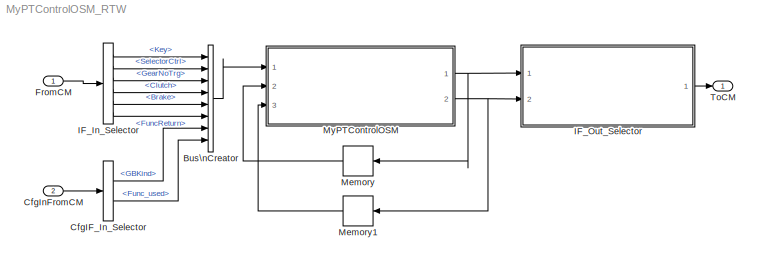
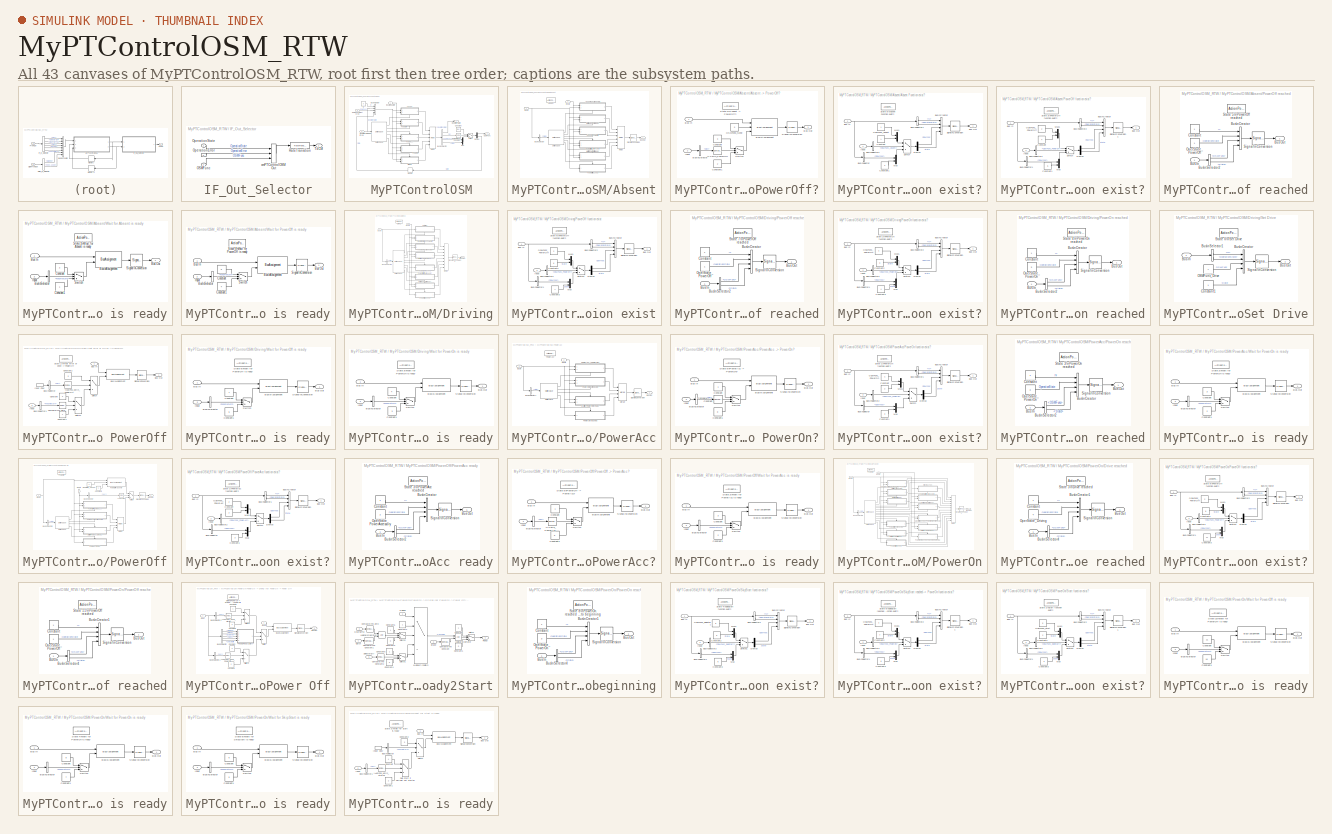
[diagram: thumbnail index - all 43 canvases of the model, root first then tree order]
MODEL MyPTControlOSM_RTW
KIND model
CONFIG InitFcn = vehicle = 'Car'; if ~length(which('cmcmd')), cmenv; end\nMyPTControlOSM_RTW_bus
CONFIG PreLoadFcn = vehicle = 'Car'; if ~length(which('cmcmd')), cmenv; end\nMyPTControlOSM_RTW_bus
BLOCK [BusCreator] Bus\nCreator
  DisplayOption = bar
  InheritFromInputs = on
  Inputs = 8
  Ports = [8, 1]
  SID = 15
BLOCK [BusSelector] CfgIF_In_Selector
  OutputAsBus = off
  OutputSignals = GBKind,Func_used
  Ports = [1, 2]
  SID = 9
BLOCK [Inport] CfgInFromCM
  IconDisplay = Port number
  OutDataTypeStr = Bus: cmPTControlOSMCfgIn
  Port = 2
  SID = 8
BLOCK [Inport] FromCM
  IconDisplay = Port number
  OutDataTypeStr = Bus: cmPTControlOSMIn
  SID = 1
BLOCK [BusSelector] IF_In_Selector
  OutputAsBus = off
  OutputSignals = Key,SelectorCtrl,GearNoTrg,Clutch,Brake,FuncReturn
  Ports = [1, 6]
  SID = 2
BLOCK [SubSystem] IF_Out_Selector
  OpenFcn = cmSignalSelect('SignalSelection_CB',gcb)
  Ports = [2, 1]
  RequestExecContextInheritance = off
  SID = 5
  UserData = DataTag0
  UserDataPersistent = on
BLOCK [Inport] IF_Out_Selector/OSMFunc
  IconDisplay = Port number
  Port = 2
  SID = 550
BLOCK [Constant] IF_Out_Selector/OperationError
  SID = 13
  Value = 0
BLOCK [Inport] IF_Out_Selector/OperationState
  IconDisplay = Port number
  SID = 549
BLOCK [RateTransition] IF_Out_Selector/RateTransition
  OutPortSampleTime = str2num(get_param(bdroot,'FixedStep'))
  SID = 6
BLOCK [Outport] IF_Out_Selector/ToCM
  IconDisplay = Port number
  SID = 7
BLOCK [BusCreator] IF_Out_Selector/cmPTControlOSMOut
  InheritFromInputs = on
  Inputs = 3
  Ports = [3, 1]
  SID = 11
BLOCK [Memory] Memory
  SID = 16
BLOCK [Memory] Memory1
  SID = 17
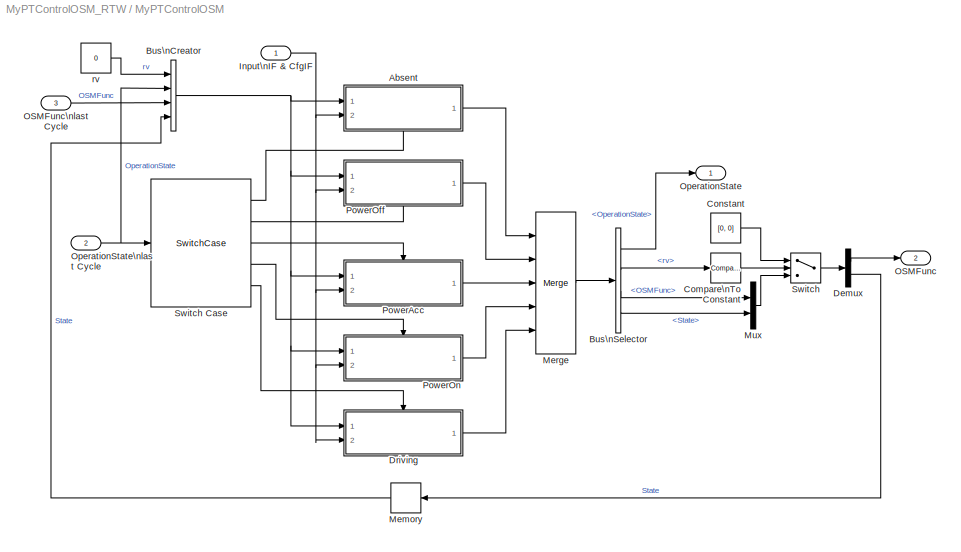
BLOCK [SubSystem] MyPTControlOSM
  Ports = [3, 2]
  RequestExecContextInheritance = off
  SID = 18
BLOCK [SubSystem] MyPTControlOSM/Absent
  Ports = [2, 1, 0, 0, 0, 0, 0, 1]
  RequestExecContextInheritance = off
  SID = 22
  TreatAsAtomicUnit = on
BLOCK [ActionPort] MyPTControlOSM/Absent/Absent
  ActionPortLabel = case: { }
  SID = 25
BLOCK [SubSystem] MyPTControlOSM/Absent/Absent -> PowerOff?
  Ports = [2, 1, 0, 0, 0, 0, 0, 1]
  RequestExecContextInheritance = off
  SID = 26
  TreatAsAtomicUnit = on
BLOCK [Reference] MyPTControlOSM/Absent/Absent -> PowerOff?/>= KeyIn_PowerOff  REF=simulink/Logic and Bit\nOperations/Compare\nTo Constant
  FunctionWithSeparateData = off
  LogicOutDataTypeMode = uint8
  Ports = [1, 1]
  RTWMemSecDataConstants = Inherit from model
  RTWMemSecDataInternal = Inherit from model
  RTWMemSecDataParameters = Inherit from model
  RTWMemSecFuncExecute = Inherit from model
  RTWMemSecFuncInitTerm = Inherit from model
  SID = 30
  ShowPortLabels = FromPortIcon
  SourceBlock = simulink/Logic and Bit\nOperations/Compare\nTo Constant
  SourceProductBaseCode = SL
  SourceProductName = Simulink
  SourceType = Compare To Constant
  SystemSampleTime = -1
  ZeroCross = off
  const = 1
  relop = >=
BLOCK [Inport] MyPTControlOSM/Absent/Absent -> PowerOff?/Bus In
  IconDisplay = Port number
  SID = 27
BLOCK [Outport] MyPTControlOSM/Absent/Absent -> PowerOff?/Bus Out
  IconDisplay = Port number
  SID = 38
BLOCK [BusAssignment] MyPTControlOSM/Absent/Absent -> PowerOff?/Bus\nAssignment
  AssignedSignals = OSMFunc,State
  Ports = [3, 1]
  SID = 31
BLOCK [BusSelector] MyPTControlOSM/Absent/Absent -> PowerOff?/Bus\nSelector
  OutputAsBus = off
  OutputSignals = Key
  Ports = [1, 1]
  SID = 32
BLOCK [Constant] MyPTControlOSM/Absent/Absent -> PowerOff?/Constant
  SID = 33
  Value = 3
BLOCK [Constant] MyPTControlOSM/Absent/Absent -> PowerOff?/Constant1
  SID = 34
  Value = 2
BLOCK [Inport] MyPTControlOSM/Absent/Absent -> PowerOff?/Input
  IconDisplay = Port number
  Port = 2
  SID = 28
BLOCK [Constant] MyPTControlOSM/Absent/Absent -> PowerOff?/OSMFunc_None
  SID = 35
  Value = 0
BLOCK [SignalConversion] MyPTControlOSM/Absent/Absent -> PowerOff?/Signal\nConversion
  ConversionOutput = Bus copy
  OverrideOpt = off
  SID = 36
BLOCK [ActionPort] MyPTControlOSM/Absent/Absent -> PowerOff?/State 2\nAbsent -> PowerOff?
  ActionPortLabel = case: { }
  SID = 29
BLOCK [Switch] MyPTControlOSM/Absent/Absent -> PowerOff?/Switch
  Criteria = u2 ~= 0
  InputSameDT = off
  SID = 37
  SaturateOnIntegerOverflow = off
BLOCK [SubSystem] MyPTControlOSM/Absent/Absent Function exist?
  Ports = [2, 1, 0, 0, 0, 0, 0, 1]
  RequestExecContextInheritance = off
  SID = 39
  TreatAsAtomicUnit = on
BLOCK [Inport] MyPTControlOSM/Absent/Absent Function exist?/Bus In
  IconDisplay = Port number
  Port = 2
  SID = 41
BLOCK [Outport] MyPTControlOSM/Absent/Absent Function exist?/Bus Out
  IconDisplay = Port number
  SID = 55
BLOCK [BusCreator] MyPTControlOSM/Absent/Absent Function exist?/Bus\nCreator
  DisplayOption = bar
  InheritFromInputs = on
  Inputs = 4
  Ports = [4, 1]
  SID = 43
BLOCK [BusSelector] MyPTControlOSM/Absent/Absent Function exist?/Bus\nSelector
  OutputAsBus = off
  OutputSignals = OSMFunc
  Ports = [1, 1]
  SID = 44
BLOCK [BusSelector] MyPTControlOSM/Absent/Absent Function exist?/Bus\nSelector1
  OutputAsBus = off
  OutputSignals = rv,OperationState
  Ports = [1, 2]
  SID = 45
BLOCK [BusSelector] MyPTControlOSM/Absent/Absent Function exist?/Bus\nSelector2
  OutputAsBus = off
  OutputSignals = Func_used.OSMFunc_Absent
  Ports = [1, 1]
  SID = 46
BLOCK [Constant] MyPTControlOSM/Absent/Absent Function exist?/Constant
  SID = 47
BLOCK [Constant] MyPTControlOSM/Absent/Absent Function exist?/Constant1
  SID = 48
  Value = 2
BLOCK [Demux] MyPTControlOSM/Absent/Absent Function exist?/Demux
  DisplayOption = bar
  Outputs = 2
  Ports = [1, 2]
  SID = 49
BLOCK [Inport] MyPTControlOSM/Absent/Absent Function exist?/Input
  IconDisplay = Port number
  SID = 40
BLOCK [Mux] MyPTControlOSM/Absent/Absent Function exist?/Mux
  DisplayOption = bar
  Inputs = 2
  Ports = [2, 1]
  SID = 50
BLOCK [Mux] MyPTControlOSM/Absent/Absent Function exist?/Mux1
  DisplayOption = bar
  Inputs = 2
  Ports = [2, 1]
  SID = 51
BLOCK [Constant] MyPTControlOSM/Absent/Absent Function exist?/OSMFunc_Absent
  SID = 52
BLOCK [SignalConversion] MyPTControlOSM/Absent/Absent Function exist?/Signal\nConversion
  ConversionOutput = Bus copy
  OverrideOpt = off
  SID = 53
BLOCK [ActionPort] MyPTControlOSM/Absent/Absent Function exist?/State 0\nAbsent Function exist?
  ActionPortLabel = case: { }
  SID = 42
BLOCK [Switch] MyPTControlOSM/Absent/Absent Function exist?/Switch
  Criteria = u2 ~= 0
  InputSameDT = off
  SID = 54
  SaturateOnIntegerOverflow = off
BLOCK [Inport] MyPTControlOSM/Absent/Bus In
  IconDisplay = Port number
  SID = 23
BLOCK [Outport] MyPTControlOSM/Absent/Bus Out
  IconDisplay = Port number
  SID = 108
BLOCK [BusSelector] MyPTControlOSM/Absent/Bus\nSelector
  OutputAsBus = off
  OutputSignals = State
  Ports = [1, 1]
  SID = 56
BLOCK [Inport] MyPTControlOSM/Absent/Inputs
  IconDisplay = Port number
  Port = 2
  SID = 24
BLOCK [Merge] MyPTControlOSM/Absent/Merge
  Inputs = 6
  Ports = [6, 1]
  SID = 57
BLOCK [SubSystem] MyPTControlOSM/Absent/PowerOff function exist?
  Ports = [2, 1, 0, 0, 0, 0, 0, 1]
  RequestExecContextInheritance = off
  SID = 58
  TreatAsAtomicUnit = on
BLOCK [Inport] MyPTControlOSM/Absent/PowerOff function exist?/Bus In
  IconDisplay = Port number
  SID = 59
BLOCK [Outport] MyPTControlOSM/Absent/PowerOff function exist?/Bus Out
  IconDisplay = Port number
  SID = 74
BLOCK [BusCreator] MyPTControlOSM/Absent/PowerOff function exist?/Bus\nCreator
  DisplayOption = bar
  InheritFromInputs = on
  Inputs = 4
  Ports = [4, 1]
  SID = 62
BLOCK [BusSelector] MyPTControlOSM/Absent/PowerOff function exist?/Bus\nSelector1
  OutputAsBus = off
  OutputSignals = OSMFunc
  Ports = [1, 1]
  SID = 63
BLOCK [BusSelector] MyPTControlOSM/Absent/PowerOff function exist?/Bus\nSelector2
  OutputAsBus = off
  OutputSignals = rv,OperationState
  Ports = [1, 2]
  SID = 64
BLOCK [BusSelector] MyPTControlOSM/Absent/PowerOff function exist?/Bus\nSelector3
  OutputAsBus = off
  OutputSignals = Func_used.OSMFunc_PowerOff
  Ports = [1, 1]
  SID = 65
BLOCK [Constant] MyPTControlOSM/Absent/PowerOff function exist?/Constant
  SID = 66
  Value = 4
BLOCK [Constant] MyPTControlOSM/Absent/PowerOff function exist?/Constant1
  SID = 67
  Value = 5
BLOCK [Demux] MyPTControlOSM/Absent/PowerOff function exist?/Demux
  DisplayOption = bar
  Outputs = 2
  Ports = [1, 2]
  SID = 68
BLOCK [Inport] MyPTControlOSM/Absent/PowerOff function exist?/Input
  IconDisplay = Port number
  Port = 2
  SID = 60
BLOCK [Mux] MyPTControlOSM/Absent/PowerOff function exist?/Mux
  DisplayOption = bar
  Inputs = 2
  Ports = [2, 1]
  SID = 69
BLOCK [Mux] MyPTControlOSM/Absent/PowerOff function exist?/Mux1
  DisplayOption = bar
  Inputs = 2
  Ports = [2, 1]
  SID = 70
BLOCK [Constant] MyPTControlOSM/Absent/PowerOff function exist?/OSMFunc_PowerOff
  SID = 71
  Value = 2
BLOCK [SignalConversion] MyPTControlOSM/Absent/PowerOff function exist?/Signal\nConversion1
  ConversionOutput = Bus copy
  OverrideOpt = off
  SID = 72
BLOCK [ActionPort] MyPTControlOSM/Absent/PowerOff function exist?/State 3\nPowerOff function exist?
  ActionPortLabel = case: { }
  SID = 61
BLOCK [Switch] MyPTControlOSM/Absent/PowerOff function exist?/Switch
  Criteria = u2 ~= 0
  InputSameDT = off
  SID = 73
  SaturateOnIntegerOverflow = off
BLOCK [SubSystem] MyPTControlOSM/Absent/PowerOff reached
  Ports = [1, 1, 0, 0, 0, 0, 0, 1]
  RequestExecContextInheritance = off
  SID = 75
  TreatAsAtomicUnit = on
BLOCK [Inport] MyPTControlOSM/Absent/PowerOff reached/Bus In
  IconDisplay = Port number
  SID = 76
BLOCK [Outport] MyPTControlOSM/Absent/PowerOff reached/Bus Out
  IconDisplay = Port number
  SID = 83
BLOCK [BusCreator] MyPTControlOSM/Absent/PowerOff reached/Bus\nCreator
  DisplayOption = bar
  InheritFromInputs = on
  Inputs = 4
  Ports = [4, 1]
  SID = 78
BLOCK [BusSelector] MyPTControlOSM/Absent/PowerOff reached/Bus\nSelector2
  OutputAsBus = off
  OutputSignals = OSMFunc,State
  Ports = [1, 2]
  SID = 79
BLOCK [Constant] MyPTControlOSM/Absent/PowerOff reached/Constant
  SID = 80
BLOCK [Constant] MyPTControlOSM/Absent/PowerOff reached/OperState_PowerOff
  SID = 81
BLOCK [SignalConversion] MyPTControlOSM/Absent/PowerOff reached/Signal\nConversion
  ConversionOutput = Bus copy
  OverrideOpt = off
  SID = 82
BLOCK [ActionPort] MyPTControlOSM/Absent/PowerOff reached/State 5\nPowerOff reached
  ActionPortLabel = default: { }
  SID = 77
BLOCK [SignalConversion] MyPTControlOSM/Absent/Signal\nConversion
  ConversionOutput = Bus copy
  OverrideOpt = off
  SID = 84
BLOCK [SwitchCase] MyPTControlOSM/Absent/Switch Case
  CaseConditions = {0,1,2,3,4}
  Ports = [1, 6]
  SID = 85
BLOCK [SubSystem] MyPTControlOSM/Absent/Wait for Absent is ready
  Ports = [2, 1, 0, 0, 0, 0, 0, 1]
  RequestExecContextInheritance = off
  SID = 86
  TreatAsAtomicUnit = on
BLOCK [Inport] MyPTControlOSM/Absent/Wait for Absent is ready/Bus In
  IconDisplay = Port number
  SID = 87
BLOCK [Outport] MyPTControlOSM/Absent/Wait for Absent is ready/Bus Out
  IconDisplay = Port number
  SID = 96
BLOCK [BusAssignment] MyPTControlOSM/Absent/Wait for Absent is ready/Bus\nAssignment
  AssignedSignals = State
  Ports = [2, 1]
  SID = 90
BLOCK [BusSelector] MyPTControlOSM/Absent/Wait for Absent is ready/Bus\nSelector
  OutputAsBus = off
  OutputSignals = FuncReturn
  Ports = [1, 1]
  SID = 91
BLOCK [Constant] MyPTControlOSM/Absent/Wait for Absent is ready/Constant
  SID = 92
  Value = 2
BLOCK [Constant] MyPTControlOSM/Absent/Wait for Absent is ready/Constant1
  SID = 93
BLOCK [Inport] MyPTControlOSM/Absent/Wait for Absent is ready/Input
  IconDisplay = Port number
  Port = 2
  SID = 88
BLOCK [SignalConversion] MyPTControlOSM/Absent/Wait for Absent is ready/Signal\nConversion
  ConversionOutput = Bus copy
  OverrideOpt = off
  SID = 94
BLOCK [ActionPort] MyPTControlOSM/Absent/Wait for Absent is ready/State 1\nWait for Absent is ready
  ActionPortLabel = case: { }
  SID = 89
BLOCK [Switch] MyPTControlOSM/Absent/Wait for Absent is ready/Switch
  Criteria = u2 ~= 0
  InputSameDT = off
  SID = 95
  SaturateOnIntegerOverflow = off
BLOCK [SubSystem] MyPTControlOSM/Absent/Wait for PowerOff is ready
  Ports = [2, 1, 0, 0, 0, 0, 0, 1]
  RequestExecContextInheritance = off
  SID = 97
  TreatAsAtomicUnit = on
BLOCK [Inport] MyPTControlOSM/Absent/Wait for PowerOff is ready/Bus In
  IconDisplay = Port number
  SID = 98
BLOCK [Outport] MyPTControlOSM/Absent/Wait for PowerOff is ready/Bus Out
  IconDisplay = Port number
  SID = 107
BLOCK [BusAssignment] MyPTControlOSM/Absent/Wait for PowerOff is ready/Bus\nAssignment
  AssignedSignals = State
  Ports = [2, 1]
  SID = 101
BLOCK [BusSelector] MyPTControlOSM/Absent/Wait for PowerOff is ready/Bus\nSelector
  OutputAsBus = off
  OutputSignals = FuncReturn
  Ports = [1, 1]
  SID = 102
BLOCK [Constant] MyPTControlOSM/Absent/Wait for PowerOff is ready/Constant
  SID = 103
  Value = 5
BLOCK [Constant] MyPTControlOSM/Absent/Wait for PowerOff is ready/Constant1
  SID = 104
  Value = 4
BLOCK [Inport] MyPTControlOSM/Absent/Wait for PowerOff is ready/Input
  IconDisplay = Port number
  Port = 2
  SID = 99
BLOCK [SignalConversion] MyPTControlOSM/Absent/Wait for PowerOff is ready/Signal\nConversion
  ConversionOutput = Bus copy
  OverrideOpt = off
  SID = 105
BLOCK [ActionPort] MyPTControlOSM/Absent/Wait for PowerOff is ready/State 4\nWait for PowerOff is ready
  ActionPortLabel = case: { }
  SID = 100
BLOCK [Switch] MyPTControlOSM/Absent/Wait for PowerOff is ready/Switch
  Criteria = u2 ~= 0
  InputSameDT = off
  SID = 106
  SaturateOnIntegerOverflow = off
BLOCK [BusCreator] MyPTControlOSM/Bus\nCreator
  DisplayOption = bar
  InheritFromInputs = on
  Inputs = 4
  Ports = [4, 1]
  SID = 109
BLOCK [BusSelector] MyPTControlOSM/Bus\nSelector
  OutputAsBus = off
  OutputSignals = OperationState,rv,OSMFunc,State
  Ports = [1, 4]
  SID = 110
BLOCK [Reference] MyPTControlOSM/Compare\nTo Constant  REF=simulink/Logic and Bit\nOperations/Compare\nTo Constant
  FunctionWithSeparateData = off
  LogicOutDataTypeMode = uint8
  Ports = [1, 1]
  RTWMemSecDataConstants = Inherit from model
  RTWMemSecDataInternal = Inherit from model
  RTWMemSecDataParameters = Inherit from model
  RTWMemSecFuncExecute = Inherit from model
  RTWMemSecFuncInitTerm = Inherit from model
  SID = 111
  ShowPortLabels = FromPortIcon
  SourceBlock = simulink/Logic and Bit\nOperations/Compare\nTo Constant
  SourceProductBaseCode = SL
  SourceProductName = Simulink
  SourceType = Compare To Constant
  SystemSampleTime = -1
  ZeroCross = off
  const = 1
  relop = ==
BLOCK [Constant] MyPTControlOSM/Constant
  SID = 112
  Value = [0, 0]
BLOCK [Demux] MyPTControlOSM/Demux
  DisplayOption = bar
  Outputs = 2
  Ports = [1, 2]
  SID = 113
BLOCK [SubSystem] MyPTControlOSM/Driving
  Ports = [2, 1, 0, 0, 0, 0, 0, 1]
  RequestExecContextInheritance = off
  SID = 114
  TreatAsAtomicUnit = on
BLOCK [Inport] MyPTControlOSM/Driving/Bus In
  IconDisplay = Port number
  SID = 115
BLOCK [Outport] MyPTControlOSM/Driving/Bus Out
  IconDisplay = Port number
  SID = 222
BLOCK [BusSelector] MyPTControlOSM/Driving/Bus\nSelector1
  OutputAsBus = off
  OutputSignals = State
  Ports = [1, 1]
  SID = 118
BLOCK [ActionPort] MyPTControlOSM/Driving/Driving
  ActionPortLabel = default: { }
  SID = 117
BLOCK [Inport] MyPTControlOSM/Driving/Inputs
  IconDisplay = Port number
  Port = 2
  SID = 116
BLOCK [Merge] MyPTControlOSM/Driving/Merge
  Inputs = 8
  Ports = [8, 1]
  SID = 119
BLOCK [SubSystem] MyPTControlOSM/Driving/PowerOff function exist
  Ports = [2, 1, 0, 0, 0, 0, 0, 1]
  RequestExecContextInheritance = off
  SID = 120
  TreatAsAtomicUnit = on
BLOCK [Inport] MyPTControlOSM/Driving/PowerOff function exist/Bus In
  IconDisplay = Port number
  SID = 121
BLOCK [Outport] MyPTControlOSM/Driving/PowerOff function exist/Bus Out
  IconDisplay = Port number
  SID = 136
BLOCK [BusCreator] MyPTControlOSM/Driving/PowerOff function exist/Bus\nCreator
  DisplayOption = bar
  InheritFromInputs = on
  Inputs = 4
  Ports = [4, 1]
  SID = 124
BLOCK [BusSelector] MyPTControlOSM/Driving/PowerOff function exist/Bus\nSelector1
  OutputAsBus = off
  OutputSignals = OSMFunc
  Ports = [1, 1]
  SID = 125
BLOCK [BusSelector] MyPTControlOSM/Driving/PowerOff function exist/Bus\nSelector2
  OutputAsBus = off
  OutputSignals = rv,OperationState
  Ports = [1, 2]
  SID = 126
BLOCK [BusSelector] MyPTControlOSM/Driving/PowerOff function exist/Bus\nSelector3
  OutputAsBus = off
  OutputSignals = Func_used.OSMFunc_PowerOff
  Ports = [1, 1]
  SID = 127
BLOCK [Constant] MyPTControlOSM/Driving/PowerOff function exist/Constant2
  SID = 128
  Value = 6
BLOCK [Constant] MyPTControlOSM/Driving/PowerOff function exist/Constant3
  SID = 129
  Value = 7
BLOCK [Demux] MyPTControlOSM/Driving/PowerOff function exist/Demux
  DisplayOption = bar
  Outputs = 2
  Ports = [1, 2]
  SID = 130
BLOCK [Inport] MyPTControlOSM/Driving/PowerOff function exist/Input
  IconDisplay = Port number
  Port = 2
  SID = 122
BLOCK [Mux] MyPTControlOSM/Driving/PowerOff function exist/Mux
  DisplayOption = bar
  Inputs = 2
  Ports = [2, 1]
  SID = 131
BLOCK [Mux] MyPTControlOSM/Driving/PowerOff function exist/Mux1
  DisplayOption = bar
  Inputs = 2
  Ports = [2, 1]
  SID = 132
BLOCK [Constant] MyPTControlOSM/Driving/PowerOff function exist/OSMFunc_PowerOff
  SID = 133
  Value = 2
BLOCK [SignalConversion] MyPTControlOSM/Driving/PowerOff function exist/Signal\nConversion
  ConversionOutput = Bus copy
  OverrideOpt = off
  SID = 134
BLOCK [ActionPort] MyPTControlOSM/Driving/PowerOff function exist/State 5\nPowerOff function exist?
  ActionPortLabel = case: { }
  SID = 123
BLOCK [Switch] MyPTControlOSM/Driving/PowerOff function exist/Switch1
  Criteria = u2 ~= 0
  InputSameDT = off
  SID = 135
  SaturateOnIntegerOverflow = off
BLOCK [SubSystem] MyPTControlOSM/Driving/PowerOff reached
  Ports = [1, 1, 0, 0, 0, 0, 0, 1]
  RequestExecContextInheritance = off
  SID = 137
  TreatAsAtomicUnit = on
BLOCK [Inport] MyPTControlOSM/Driving/PowerOff reached/Bus In
  IconDisplay = Port number
  SID = 138
BLOCK [Outport] MyPTControlOSM/Driving/PowerOff reached/Bus Out
  IconDisplay = Port number
  SID = 145
BLOCK [BusCreator] MyPTControlOSM/Driving/PowerOff reached/Bus\nCreator
  DisplayOption = bar
  InheritFromInputs = on
  Inputs = 4
  Ports = [4, 1]
  SID = 140
BLOCK [BusSelector] MyPTControlOSM/Driving/PowerOff reached/Bus\nSelector2
  OutputAsBus = off
  OutputSignals = OSMFunc,State
  Ports = [1, 2]
  SID = 141
BLOCK [Constant] MyPTControlOSM/Driving/PowerOff reached/Constant
  SID = 142
BLOCK [Constant] MyPTControlOSM/Driving/PowerOff reached/OperState_PowerOff
  SID = 143
BLOCK [SignalConversion] MyPTControlOSM/Driving/PowerOff reached/Signal\nConversion
  ConversionOutput = Bus copy
  OverrideOpt = off
  SID = 144
BLOCK [ActionPort] MyPTControlOSM/Driving/PowerOff reached/State 7\nPowerOff reached
  ActionPortLabel = default: { }
  SID = 139
BLOCK [SubSystem] MyPTControlOSM/Driving/PowerOn function exist?
  Ports = [2, 1, 0, 0, 0, 0, 0, 1]
  RequestExecContextInheritance = off
  SID = 146
  TreatAsAtomicUnit = on
BLOCK [Inport] MyPTControlOSM/Driving/PowerOn function exist?/Bus In
  IconDisplay = Port number
  SID = 147
BLOCK [Outport] MyPTControlOSM/Driving/PowerOn function exist?/Bus Out
  IconDisplay = Port number
  SID = 162
BLOCK [BusCreator] MyPTControlOSM/Driving/PowerOn function exist?/Bus\nCreator
  DisplayOption = bar
  InheritFromInputs = on
  Inputs = 4
  Ports = [4, 1]
  SID = 150
BLOCK [BusSelector] MyPTControlOSM/Driving/PowerOn function exist?/Bus\nSelector1
  OutputAsBus = off
  OutputSignals = OSMFunc
  Ports = [1, 1]
  SID = 151
BLOCK [BusSelector] MyPTControlOSM/Driving/PowerOn function exist?/Bus\nSelector2
  OutputAsBus = off
  OutputSignals = rv,OperationState
  Ports = [1, 2]
  SID = 152
BLOCK [BusSelector] MyPTControlOSM/Driving/PowerOn function exist?/Bus\nSelector3
  OutputAsBus = off
  OutputSignals = Func_used.OSMFunc_PowerOn
  Ports = [1, 1]
  SID = 153
BLOCK [Constant] MyPTControlOSM/Driving/PowerOn function exist?/Constant2
  SID = 154
  Value = 3
BLOCK [Constant] MyPTControlOSM/Driving/PowerOn function exist?/Constant3
  SID = 155
  Value = 4
BLOCK [Demux] MyPTControlOSM/Driving/PowerOn function exist?/Demux
  DisplayOption = bar
  Outputs = 2
  Ports = [1, 2]
  SID = 156
BLOCK [Inport] MyPTControlOSM/Driving/PowerOn function exist?/Input
  IconDisplay = Port number
  Port = 2
  SID = 148
BLOCK [Mux] MyPTControlOSM/Driving/PowerOn function exist?/Mux
  DisplayOption = bar
  Inputs = 2
  Ports = [2, 1]
  SID = 157
BLOCK [Mux] MyPTControlOSM/Driving/PowerOn function exist?/Mux1
  DisplayOption = bar
  Inputs = 2
  Ports = [2, 1]
  SID = 158
BLOCK [Constant] MyPTControlOSM/Driving/PowerOn function exist?/OSMFunc_PowerOn
  SID = 159
  Value = 4
BLOCK [SignalConversion] MyPTControlOSM/Driving/PowerOn function exist?/Signal\nConversion
  ConversionOutput = Bus copy
  OverrideOpt = off
  SID = 160
BLOCK [ActionPort] MyPTControlOSM/Driving/PowerOn function exist?/State 2\nPowerOn function exist?
  ActionPortLabel = case: { }
  SID = 149
BLOCK [Switch] MyPTControlOSM/Driving/PowerOn function exist?/Switch1
  Criteria = u2 ~= 0
  InputSameDT = off
  SID = 161
  SaturateOnIntegerOverflow = off
BLOCK [SubSystem] MyPTControlOSM/Driving/PowerOn reached
  Ports = [1, 1, 0, 0, 0, 0, 0, 1]
  RequestExecContextInheritance = off
  SID = 163
  TreatAsAtomicUnit = on
BLOCK [Inport] MyPTControlOSM/Driving/PowerOn reached/Bus In
  IconDisplay = Port number
  SID = 164
BLOCK [Outport] MyPTControlOSM/Driving/PowerOn reached/Bus Out
  IconDisplay = Port number
  SID = 171
BLOCK [BusCreator] MyPTControlOSM/Driving/PowerOn reached/Bus\nCreator
  DisplayOption = bar
  InheritFromInputs = on
  Inputs = 4
  Ports = [4, 1]
  SID = 166
BLOCK [BusSelector] MyPTControlOSM/Driving/PowerOn reached/Bus\nSelector2
  OutputAsBus = off
  OutputSignals = OSMFunc,State
  Ports = [1, 2]
  SID = 167
BLOCK [Constant] MyPTControlOSM/Driving/PowerOn reached/Constant
  SID = 168
BLOCK [Constant] MyPTControlOSM/Driving/PowerOn reached/OperState_PowerOn
  SID = 169
  Value = 3
BLOCK [SignalConversion] MyPTControlOSM/Driving/PowerOn reached/Signal\nConversion
  ConversionOutput = Bus copy
  OverrideOpt = off
  SID = 170
BLOCK [ActionPort] MyPTControlOSM/Driving/PowerOn reached/State 4\nPowerOn reached
  ActionPortLabel = case: { }
  SID = 165
BLOCK [SubSystem] MyPTControlOSM/Driving/Set Drive
  Ports = [1, 1, 0, 0, 0, 0, 0, 1]
  RequestExecContextInheritance = off
  SID = 172
  TreatAsAtomicUnit = on
BLOCK [Inport] MyPTControlOSM/Driving/Set Drive/Bus In
  IconDisplay = Port number
  SID = 173
BLOCK [Outport] MyPTControlOSM/Driving/Set Drive/Bus Out
  IconDisplay = Port number
  SID = 180
BLOCK [BusCreator] MyPTControlOSM/Driving/Set Drive/Bus\nCreator
  DisplayOption = bar
  InheritFromInputs = on
  Inputs = 4
  Ports = [4, 1]
  SID = 175
BLOCK [BusSelector] MyPTControlOSM/Driving/Set Drive/Bus\nSelector1
  OutputAsBus = off
  OutputSignals = rv,OperationState
  Ports = [1, 2]
  SID = 176
BLOCK [Constant] MyPTControlOSM/Driving/Set Drive/Constant1
  SID = 177
BLOCK [Constant] MyPTControlOSM/Driving/Set Drive/OSMFunc_Drive
  SID = 178
  Value = 7
BLOCK [SignalConversion] MyPTControlOSM/Driving/Set Drive/Signal\nConversion
  ConversionOutput = Bus copy
  OverrideOpt = off
  SID = 179
BLOCK [ActionPort] MyPTControlOSM/Driving/Set Drive/State 0\nSet Drive
  ActionPortLabel = case: { }
  SID = 174
BLOCK [SignalConversion] MyPTControlOSM/Driving/Signal\nConversion1
  ConversionOutput = Bus copy
  OverrideOpt = off
  SID = 181
BLOCK [SwitchCase] MyPTControlOSM/Driving/Switch Case
  CaseConditions = {0,1,2,3,4,5,6}
  Ports = [1, 8]
  SID = 182
BLOCK [SubSystem] MyPTControlOSM/Driving/Treat error or Drive -> PowerOff
  Ports = [2, 1, 0, 0, 0, 0, 0, 1]
  RequestExecContextInheritance = off
  SID = 183
  TreatAsAtomicUnit = on
BLOCK [Reference] MyPTControlOSM/Driving/Treat error or Drive -> PowerOff/<=KeyPos_KeyIn_PowerOff  REF=simulink/Logic and Bit\nOperations/Compare\nTo Constant
  FunctionWithSeparateData = off
  LogicOutDataTypeMode = uint8
  Ports = [1, 1]
  RTWMemSecDataConstants = Inherit from model
  RTWMemSecDataInternal = Inherit from model
  RTWMemSecDataParameters = Inherit from model
  RTWMemSecFuncExecute = Inherit from model
  RTWMemSecFuncInitTerm = Inherit from model
  SID = 187
  ShowPortLabels = FromPortIcon
  SourceBlock = simulink/Logic and Bit\nOperations/Compare\nTo Constant
  SourceProductBaseCode = SL
  SourceProductName = Simulink
  SourceType = Compare To Constant
  SystemSampleTime = -1
  ZeroCross = off
  const = 1
  relop = <=
BLOCK [Inport] MyPTControlOSM/Driving/Treat error or Drive -> PowerOff/Bus In
  IconDisplay = Port number
  SID = 184
BLOCK [Outport] MyPTControlOSM/Driving/Treat error or Drive -> PowerOff/Bus Out
  IconDisplay = Port number
  SID = 199
BLOCK [BusAssignment] MyPTControlOSM/Driving/Treat error or Drive -> PowerOff/Bus\nAssignment
  AssignedSignals = State
  Ports = [2, 1]
  SID = 188
BLOCK [BusSelector] MyPTControlOSM/Driving/Treat error or Drive -> PowerOff/Bus\nSelector
  OutputAsBus = off
  OutputSignals = Key
  Ports = [1, 1]
  SID = 189
BLOCK [BusSelector] MyPTControlOSM/Driving/Treat error or Drive -> PowerOff/Bus\nSelector1
  OutputAsBus = off
  OutputSignals = FuncReturn
  Ports = [1, 1]
  SID = 190
BLOCK [Reference] MyPTControlOSM/Driving/Treat error or Drive -> PowerOff/Compare\nTo Zero  REF=simulink/Logic and Bit\nOperations/Compare\nTo Zero
  FunctionWithSeparateData = off
  LogicOutDataTypeMode = uint8
  Ports = [1, 1]
  RTWMemSecDataConstants = Inherit from model
  RTWMemSecDataInternal = Inherit from model
  RTWMemSecDataParameters = Inherit from model
  RTWMemSecFuncExecute = Inherit from model
  RTWMemSecFuncInitTerm = Inherit from model
  SID = 191
  ShowPortLabels = FromPortIcon
  SourceBlock = simulink/Logic and Bit\nOperations/Compare\nTo Zero
  SourceProductBaseCode = SL
  SourceProductName = Simulink
  SourceType = Compare To Zero
  SystemSampleTime = -1
  ZeroCross = off
  relop = <
BLOCK [Constant] MyPTControlOSM/Driving/Treat error or Drive -> PowerOff/Constant
  SID = 192
  Value = 2
BLOCK [Constant] MyPTControlOSM/Driving/Treat error or Drive -> PowerOff/Constant1
  SID = 193
BLOCK [Constant] MyPTControlOSM/Driving/Treat error or Drive -> PowerOff/Constant2
  SID = 194
  Value = 5
BLOCK [Inport] MyPTControlOSM/Driving/Treat error or Drive -> PowerOff/Input
  IconDisplay = Port number
  Port = 2
  SID = 185
BLOCK [InportShadow] MyPTControlOSM/Driving/Treat error or Drive -> PowerOff/Input Copy
  IconDisplay = Port number
  Port = 2
  SID = 195
BLOCK [SignalConversion] MyPTControlOSM/Driving/Treat error or Drive -> PowerOff/Signal\nConversion
  ConversionOutput = Bus copy
  OverrideOpt = off
  SID = 196
BLOCK [ActionPort] MyPTControlOSM/Driving/Treat error or Drive -> PowerOff/State 1\nTreat error or Drive -> PowerOff
  ActionPortLabel = case: { }
  SID = 186
BLOCK [Switch] MyPTControlOSM/Driving/Treat error or Drive -> PowerOff/Switch
  Criteria = u2 ~= 0
  InputSameDT = off
  SID = 197
  SaturateOnIntegerOverflow = off
BLOCK [Switch] MyPTControlOSM/Driving/Treat error or Drive -> PowerOff/Switch1
  Criteria = u2 ~= 0
  InputSameDT = off
  SID = 198
  SaturateOnIntegerOverflow = off
BLOCK [SubSystem] MyPTControlOSM/Driving/Wait for PowerOff is ready
  Ports = [2, 1, 0, 0, 0, 0, 0, 1]
  RequestExecContextInheritance = off
  SID = 200
  TreatAsAtomicUnit = on
BLOCK [Inport] MyPTControlOSM/Driving/Wait for PowerOff is ready/Bus In
  IconDisplay = Port number
  SID = 201
BLOCK [Outport] MyPTControlOSM/Driving/Wait for PowerOff is ready/Bus Out
  IconDisplay = Port number
  SID = 210
BLOCK [BusAssignment] MyPTControlOSM/Driving/Wait for PowerOff is ready/Bus\nAssignment
  AssignedSignals = State
  Ports = [2, 1]
  SID = 204
BLOCK [BusSelector] MyPTControlOSM/Driving/Wait for PowerOff is ready/Bus\nSelector
  OutputAsBus = off
  OutputSignals = FuncReturn
  Ports = [1, 1]
  SID = 205
BLOCK [Constant] MyPTControlOSM/Driving/Wait for PowerOff is ready/Constant
  SID = 206
  Value = 7
BLOCK [Constant] MyPTControlOSM/Driving/Wait for PowerOff is ready/Constant1
  SID = 207
  Value = 6
BLOCK [Inport] MyPTControlOSM/Driving/Wait for PowerOff is ready/Input
  IconDisplay = Port number
  Port = 2
  SID = 202
BLOCK [SignalConversion] MyPTControlOSM/Driving/Wait for PowerOff is ready/Signal\nConversion
  ConversionOutput = Bus copy
  OverrideOpt = off
  SID = 208
BLOCK [ActionPort] MyPTControlOSM/Driving/Wait for PowerOff is ready/State 6\nWait for PowerOff is ready
  ActionPortLabel = case: { }
  SID = 203
BLOCK [Switch] MyPTControlOSM/Driving/Wait for PowerOff is ready/Switch
  Criteria = u2 ~= 0
  InputSameDT = off
  SID = 209
  SaturateOnIntegerOverflow = off
BLOCK [SubSystem] MyPTControlOSM/Driving/Wait for PowerOn is ready
  Ports = [2, 1, 0, 0, 0, 0, 0, 1]
  RequestExecContextInheritance = off
  SID = 211
  TreatAsAtomicUnit = on
BLOCK [Inport] MyPTControlOSM/Driving/Wait for PowerOn is ready/Bus In
  IconDisplay = Port number
  SID = 212
BLOCK [Outport] MyPTControlOSM/Driving/Wait for PowerOn is ready/Bus Out
  IconDisplay = Port number
  SID = 221
BLOCK [BusAssignment] MyPTControlOSM/Driving/Wait for PowerOn is ready/Bus\nAssignment
  AssignedSignals = State
  Ports = [2, 1]
  SID = 215
BLOCK [BusSelector] MyPTControlOSM/Driving/Wait for PowerOn is ready/Bus\nSelector
  OutputAsBus = off
  OutputSignals = FuncReturn
  Ports = [1, 1]
  SID = 216
BLOCK [Constant] MyPTControlOSM/Driving/Wait for PowerOn is ready/Constant
  SID = 217
  Value = 4
BLOCK [Constant] MyPTControlOSM/Driving/Wait for PowerOn is ready/Constant1
  SID = 218
  Value = 3
BLOCK [Inport] MyPTControlOSM/Driving/Wait for PowerOn is ready/Input
  IconDisplay = Port number
  Port = 2
  SID = 213
BLOCK [SignalConversion] MyPTControlOSM/Driving/Wait for PowerOn is ready/Signal\nConversion
  ConversionOutput = Bus copy
  OverrideOpt = off
  SID = 219
BLOCK [ActionPort] MyPTControlOSM/Driving/Wait for PowerOn is ready/State 3\nWait for PowerOn is ready
  ActionPortLabel = case: { }
  SID = 214
BLOCK [Switch] MyPTControlOSM/Driving/Wait for PowerOn is ready/Switch
  Criteria = u2 ~= 0
  InputSameDT = off
  SID = 220
  SaturateOnIntegerOverflow = off
BLOCK [Inport] MyPTControlOSM/Input\nIF & CfgIF
  IconDisplay = Port number
  SID = 19
BLOCK [Memory] MyPTControlOSM/Memory
  SID = 223
BLOCK [Merge] MyPTControlOSM/Merge
  Inputs = 5
  Ports = [5, 1]
  SID = 224
BLOCK [Mux] MyPTControlOSM/Mux
  DisplayOption = bar
  Inputs = 2
  Ports = [2, 1]
  SID = 225
BLOCK [Outport] MyPTControlOSM/OSMFunc
  IconDisplay = Port number
  Port = 2
  SID = 548
BLOCK [Inport] MyPTControlOSM/OSMFunc\nlast Cycle
  IconDisplay = Port number
  Port = 3
  SID = 21
BLOCK [Outport] MyPTControlOSM/OperationState
  IconDisplay = Port number
  SID = 547
BLOCK [Inport] MyPTControlOSM/OperationState\nlast Cycle
  IconDisplay = Port number
  Port = 2
  SID = 20
BLOCK [SubSystem] MyPTControlOSM/PowerAcc
  Ports = [2, 1, 0, 0, 0, 0, 0, 1]
  RequestExecContextInheritance = off
  SID = 226
  TreatAsAtomicUnit = on
BLOCK [Inport] MyPTControlOSM/PowerAcc/Bus In
  IconDisplay = Port number
  SID = 227
BLOCK [Outport] MyPTControlOSM/PowerAcc/Bus Out
  IconDisplay = Port number
  SID = 283
BLOCK [BusSelector] MyPTControlOSM/PowerAcc/Bus\nSelector1
  OutputAsBus = off
  OutputSignals = State
  Ports = [1, 1]
  SID = 230
BLOCK [Inport] MyPTControlOSM/PowerAcc/Inputs
  IconDisplay = Port number
  Port = 2
  SID = 228
BLOCK [Merge] MyPTControlOSM/PowerAcc/Merge
  Inputs = 4
  Ports = [4, 1]
  SID = 231
BLOCK [ActionPort] MyPTControlOSM/PowerAcc/PowerAcc
  ActionPortLabel = case: { }
  SID = 229
BLOCK [SubSystem] MyPTControlOSM/PowerAcc/PowerAcc -> PowerOn?
  Ports = [2, 1, 0, 0, 0, 0, 0, 1]
  RequestExecContextInheritance = off
  SID = 232
  TreatAsAtomicUnit = on
BLOCK [Inport] MyPTControlOSM/PowerAcc/PowerAcc -> PowerOn?/Bus In
  IconDisplay = Port number
  SID = 233
BLOCK [Outport] MyPTControlOSM/PowerAcc/PowerAcc -> PowerOn?/Bus Out
  IconDisplay = Port number
  SID = 243
BLOCK [BusAssignment] MyPTControlOSM/PowerAcc/PowerAcc -> PowerOn?/Bus\nAssignment
  AssignedSignals = State
  Ports = [2, 1]
  SID = 236
BLOCK [BusSelector] MyPTControlOSM/PowerAcc/PowerAcc -> PowerOn?/Bus\nSelector
  OutputAsBus = off
  OutputSignals = Key
  Ports = [1, 1]
  SID = 237
BLOCK [Reference] MyPTControlOSM/PowerAcc/PowerAcc -> PowerOn?/Compare\nTo Constant  REF=simulink/Logic and Bit\nOperations/Compare\nTo Constant
  FunctionWithSeparateData = off
  LogicOutDataTypeMode = uint8
  Ports = [1, 1]
  RTWMemSecDataConstants = Inherit from model
  RTWMemSecDataInternal = Inherit from model
  RTWMemSecDataParameters = Inherit from model
  RTWMemSecFuncExecute = Inherit from model
  RTWMemSecFuncInitTerm = Inherit from model
  SID = 238
  ShowPortLabels = FromPortIcon
  SourceBlock = simulink/Logic and Bit\nOperations/Compare\nTo Constant
  SourceProductBaseCode = SL
  SourceProductName = Simulink
  SourceType = Compare To Constant
  SystemSampleTime = -1
  ZeroCross = off
  const = 3
  relop = >=
BLOCK [Constant] MyPTControlOSM/PowerAcc/PowerAcc -> PowerOn?/Constant
  SID = 239
BLOCK [Constant] MyPTControlOSM/PowerAcc/PowerAcc -> PowerOn?/Constant1
  SID = 240
  Value = 0
BLOCK [Inport] MyPTControlOSM/PowerAcc/PowerAcc -> PowerOn?/Input
  IconDisplay = Port number
  Port = 2
  SID = 234
BLOCK [SignalConversion] MyPTControlOSM/PowerAcc/PowerAcc -> PowerOn?/Signal\nConversion
  ConversionOutput = Bus copy
  OverrideOpt = off
  SID = 241
BLOCK [ActionPort] MyPTControlOSM/PowerAcc/PowerAcc -> PowerOn?/State 0\nPowerAcc -> PowerOn?
  ActionPortLabel = case: { }
  SID = 235
BLOCK [Switch] MyPTControlOSM/PowerAcc/PowerAcc -> PowerOn?/Switch
  Criteria = u2 ~= 0
  InputSameDT = off
  SID = 242
  SaturateOnIntegerOverflow = off
BLOCK [SubSystem] MyPTControlOSM/PowerAcc/PowerOn function exist?
  Ports = [2, 1, 0, 0, 0, 0, 0, 1]
  RequestExecContextInheritance = off
  SID = 244
  TreatAsAtomicUnit = on
BLOCK [Inport] MyPTControlOSM/PowerAcc/PowerOn function exist?/Bus In
  IconDisplay = Port number
  SID = 245
BLOCK [Outport] MyPTControlOSM/PowerAcc/PowerOn function exist?/Bus Out
  IconDisplay = Port number
  SID = 260
BLOCK [BusCreator] MyPTControlOSM/PowerAcc/PowerOn function exist?/Bus\nCreator
  DisplayOption = bar
  InheritFromInputs = on
  Inputs = 4
  Ports = [4, 1]
  SID = 248
BLOCK [BusSelector] MyPTControlOSM/PowerAcc/PowerOn function exist?/Bus\nSelector
  OutputAsBus = off
  OutputSignals = OSMFunc
  Ports = [1, 1]
  SID = 249
BLOCK [BusSelector] MyPTControlOSM/PowerAcc/PowerOn function exist?/Bus\nSelector1
  OutputAsBus = off
  OutputSignals = rv,OperationState
  Ports = [1, 2]
  SID = 250
BLOCK [BusSelector] MyPTControlOSM/PowerAcc/PowerOn function exist?/Bus\nSelector2
  OutputAsBus = off
  OutputSignals = Func_used.OSMFunc_PowerOn
  Ports = [1, 1]
  SID = 251
BLOCK [Constant] MyPTControlOSM/PowerAcc/PowerOn function exist?/Constant
  SID = 252
  Value = 2
BLOCK [Constant] MyPTControlOSM/PowerAcc/PowerOn function exist?/Constant1
  SID = 253
  Value = 3
BLOCK [Demux] MyPTControlOSM/PowerAcc/PowerOn function exist?/Demux
  DisplayOption = bar
  Outputs = 2
  Ports = [1, 2]
  SID = 254
BLOCK [Inport] MyPTControlOSM/PowerAcc/PowerOn function exist?/Input
  IconDisplay = Port number
  Port = 2
  SID = 246
BLOCK [Mux] MyPTControlOSM/PowerAcc/PowerOn function exist?/Mux
  DisplayOption = bar
  Inputs = 2
  Ports = [2, 1]
  SID = 255
BLOCK [Mux] MyPTControlOSM/PowerAcc/PowerOn function exist?/Mux1
  DisplayOption = bar
  Inputs = 2
  Ports = [2, 1]
  SID = 256
BLOCK [Constant] MyPTControlOSM/PowerAcc/PowerOn function exist?/OSMFunc_PowerOn
  SID = 257
  Value = 4
BLOCK [SignalConversion] MyPTControlOSM/PowerAcc/PowerOn function exist?/Signal\nConversion
  ConversionOutput = Bus copy
  OverrideOpt = off
  SID = 258
BLOCK [ActionPort] MyPTControlOSM/PowerAcc/PowerOn function exist?/State 1\nPowerOn function exist?
  ActionPortLabel = case: { }
  SID = 247
BLOCK [Switch] MyPTControlOSM/PowerAcc/PowerOn function exist?/Switch
  Criteria = u2 ~= 0
  InputSameDT = off
  SID = 259
  SaturateOnIntegerOverflow = off
BLOCK [SubSystem] MyPTControlOSM/PowerAcc/PowerOn reached
  Ports = [1, 1, 0, 0, 0, 0, 0, 1]
  RequestExecContextInheritance = off
  SID = 261
  TreatAsAtomicUnit = on
BLOCK [Inport] MyPTControlOSM/PowerAcc/PowerOn reached/Bus In
  IconDisplay = Port number
  SID = 262
BLOCK [Outport] MyPTControlOSM/PowerAcc/PowerOn reached/Bus Out
  IconDisplay = Port number
  SID = 269
BLOCK [BusCreator] MyPTControlOSM/PowerAcc/PowerOn reached/Bus\nCreator
  DisplayOption = bar
  InheritFromInputs = on
  Inputs = 4
  Ports = [4, 1]
  SID = 264
BLOCK [BusSelector] MyPTControlOSM/PowerAcc/PowerOn reached/Bus\nSelector2
  OutputAsBus = off
  OutputSignals = OSMFunc,State
  Ports = [1, 2]
  SID = 265
BLOCK [Constant] MyPTControlOSM/PowerAcc/PowerOn reached/Constant
  SID = 266
BLOCK [Constant] MyPTControlOSM/PowerAcc/PowerOn reached/OperState_PowerOn
  SID = 267
  Value = 3
BLOCK [SignalConversion] MyPTControlOSM/PowerAcc/PowerOn reached/Signal\nConversion
  ConversionOutput = Bus copy
  OverrideOpt = off
  SID = 268
BLOCK [ActionPort] MyPTControlOSM/PowerAcc/PowerOn reached/State 3\nPowerOn reached
  ActionPortLabel = default: { }
  SID = 263
BLOCK [SignalConversion] MyPTControlOSM/PowerAcc/Signal\nConversion
  ConversionOutput = Bus copy
  OverrideOpt = off
  SID = 270
BLOCK [SwitchCase] MyPTControlOSM/PowerAcc/Switch Case
  CaseConditions = {0,1,2}
  Ports = [1, 4]
  SID = 271
BLOCK [SubSystem] MyPTControlOSM/PowerAcc/Wait for PowerOn is ready
  Ports = [2, 1, 0, 0, 0, 0, 0, 1]
  RequestExecContextInheritance = off
  SID = 272
  TreatAsAtomicUnit = on
BLOCK [Inport] MyPTControlOSM/PowerAcc/Wait for PowerOn is ready/Bus In
  IconDisplay = Port number
  SID = 273
BLOCK [Outport] MyPTControlOSM/PowerAcc/Wait for PowerOn is ready/Bus Out
  IconDisplay = Port number
  SID = 282
BLOCK [BusAssignment] MyPTControlOSM/PowerAcc/Wait for PowerOn is ready/Bus\nAssignment
  AssignedSignals = State
  Ports = [2, 1]
  SID = 276
BLOCK [BusSelector] MyPTControlOSM/PowerAcc/Wait for PowerOn is ready/Bus\nSelector
  OutputAsBus = off
  OutputSignals = FuncReturn
  Ports = [1, 1]
  SID = 277
BLOCK [Constant] MyPTControlOSM/PowerAcc/Wait for PowerOn is ready/Constant
  SID = 278
  Value = 3
BLOCK [Constant] MyPTControlOSM/PowerAcc/Wait for PowerOn is ready/Constant1
  SID = 279
  Value = 2
BLOCK [Inport] MyPTControlOSM/PowerAcc/Wait for PowerOn is ready/Input
  IconDisplay = Port number
  Port = 2
  SID = 274
BLOCK [SignalConversion] MyPTControlOSM/PowerAcc/Wait for PowerOn is ready/Signal\nConversion
  ConversionOutput = Bus copy
  OverrideOpt = off
  SID = 280
BLOCK [ActionPort] MyPTControlOSM/PowerAcc/Wait for PowerOn is ready/State 2\nWait for PowerOn is ready
  ActionPortLabel = case: { }
  SID = 275
BLOCK [Switch] MyPTControlOSM/PowerAcc/Wait for PowerOn is ready/Switch
  Criteria = u2 ~= 0
  InputSameDT = off
  SID = 281
  SaturateOnIntegerOverflow = off
BLOCK [SubSystem] MyPTControlOSM/PowerOff
  Ports = [2, 1, 0, 0, 0, 0, 0, 1]
  RequestExecContextInheritance = off
  SID = 284
  TreatAsAtomicUnit = on
BLOCK [Reference] MyPTControlOSM/PowerOff/== KeyOut  REF=simulink/Logic and Bit\nOperations/Compare\nTo Zero
  FunctionWithSeparateData = off
  LogicOutDataTypeMode = uint8
  Ports = [1, 1]
  RTWMemSecDataConstants = Inherit from model
  RTWMemSecDataInternal = Inherit from model
  RTWMemSecDataParameters = Inherit from model
  RTWMemSecFuncExecute = Inherit from model
  RTWMemSecFuncInitTerm = Inherit from model
  SID = 288
  ShowPortLabels = FromPortIcon
  SourceBlock = simulink/Logic and Bit\nOperations/Compare\nTo Zero
  SourceProductBaseCode = SL
  SourceProductName = Simulink
  SourceType = Compare To Zero
  SystemSampleTime = -1
  ZeroCross = off
  relop = ==
BLOCK [Inport] MyPTControlOSM/PowerOff/Bus In
  IconDisplay = Port number
  SID = 285
BLOCK [Outport] MyPTControlOSM/PowerOff/Bus Out
  IconDisplay = Port number
  SID = 347
BLOCK [BusSelector] MyPTControlOSM/PowerOff/Bus\nSelector
  OutputAsBus = off
  OutputSignals = Key
  Ports = [1, 1]
  SID = 289
BLOCK [BusSelector] MyPTControlOSM/PowerOff/Bus\nSelector1
  OutputAsBus = off
  OutputSignals = State
  Ports = [1, 1]
  SID = 290
BLOCK [Constant] MyPTControlOSM/PowerOff/Constant1
  SID = 291
BLOCK [Inport] MyPTControlOSM/PowerOff/Inputs
  IconDisplay = Port number
  Port = 2
  SID = 286
BLOCK [Merge] MyPTControlOSM/PowerOff/Merge
  Inputs = 4
  Ports = [4, 1]
  SID = 292
BLOCK [Constant] MyPTControlOSM/PowerOff/OperState_Absent
  SID = 293
  Value = 0
BLOCK [SubSystem] MyPTControlOSM/PowerOff/PowerAcc function exist?
  Ports = [2, 1, 0, 0, 0, 0, 0, 1]
  RequestExecContextInheritance = off
  SID = 294
  TreatAsAtomicUnit = on
BLOCK [Inport] MyPTControlOSM/PowerOff/PowerAcc function exist?/Bus In
  IconDisplay = Port number
  SID = 295
BLOCK [Outport] MyPTControlOSM/PowerOff/PowerAcc function exist?/Bus Out
  IconDisplay = Port number
  SID = 310
BLOCK [BusCreator] MyPTControlOSM/PowerOff/PowerAcc function exist?/Bus\nCreator
  DisplayOption = bar
  InheritFromInputs = on
  Inputs = 4
  Ports = [4, 1]
  SID = 298
BLOCK [BusSelector] MyPTControlOSM/PowerOff/PowerAcc function exist?/Bus\nSelector
  OutputAsBus = off
  OutputSignals = OSMFunc
  Ports = [1, 1]
  SID = 299
BLOCK [BusSelector] MyPTControlOSM/PowerOff/PowerAcc function exist?/Bus\nSelector1
  OutputAsBus = off
  OutputSignals = rv,OperationState
  Ports = [1, 2]
  SID = 300
BLOCK [BusSelector] MyPTControlOSM/PowerOff/PowerAcc function exist?/Bus\nSelector2
  OutputAsBus = off
  OutputSignals = Func_used.OSMFunc_PowerAcc
  Ports = [1, 1]
  SID = 301
BLOCK [Constant] MyPTControlOSM/PowerOff/PowerAcc function exist?/Constant
  SID = 302
  Value = 2
BLOCK [Constant] MyPTControlOSM/PowerOff/PowerAcc function exist?/Constant1
  SID = 303
  Value = 3
BLOCK [Demux] MyPTControlOSM/PowerOff/PowerAcc function exist?/Demux
  DisplayOption = bar
  Outputs = 2
  Ports = [1, 2]
  SID = 304
BLOCK [Inport] MyPTControlOSM/PowerOff/PowerAcc function exist?/Input
  IconDisplay = Port number
  Port = 2
  SID = 296
BLOCK [Mux] MyPTControlOSM/PowerOff/PowerAcc function exist?/Mux
  DisplayOption = bar
  Inputs = 2
  Ports = [2, 1]
  SID = 305
BLOCK [Mux] MyPTControlOSM/PowerOff/PowerAcc function exist?/Mux1
  DisplayOption = bar
  Inputs = 2
  Ports = [2, 1]
  SID = 306
BLOCK [Constant] MyPTControlOSM/PowerOff/PowerAcc function exist?/OSMFunc_PowerAcc
  SID = 307
  Value = 2
BLOCK [SignalConversion] MyPTControlOSM/PowerOff/PowerAcc function exist?/Signal\nConversion
  ConversionOutput = Bus copy
  OverrideOpt = off
  SID = 308
BLOCK [ActionPort] MyPTControlOSM/PowerOff/PowerAcc function exist?/State 1\nPowerAcc function exist?
  ActionPortLabel = case: { }
  SID = 297
BLOCK [Switch] MyPTControlOSM/PowerOff/PowerAcc function exist?/Switch
  Criteria = u2 ~= 0
  InputSameDT = off
  SID = 309
  SaturateOnIntegerOverflow = off
BLOCK [SubSystem] MyPTControlOSM/PowerOff/PowerAcc ready
  Ports = [1, 1, 0, 0, 0, 0, 0, 1]
  RequestExecContextInheritance = off
  SID = 311
  TreatAsAtomicUnit = on
BLOCK [Inport] MyPTControlOSM/PowerOff/PowerAcc ready/Bus In
  IconDisplay = Port number
  SID = 312
BLOCK [Outport] MyPTControlOSM/PowerOff/PowerAcc ready/Bus Out
  IconDisplay = Port number
  SID = 319
BLOCK [BusCreator] MyPTControlOSM/PowerOff/PowerAcc ready/Bus\nCreator
  DisplayOption = bar
  InheritFromInputs = on
  Inputs = 4
  Ports = [4, 1]
  SID = 314
BLOCK [BusSelector] MyPTControlOSM/PowerOff/PowerAcc ready/Bus\nSelector2
  OutputAsBus = off
  OutputSignals = OSMFunc,State
  Ports = [1, 2]
  SID = 315
BLOCK [Constant] MyPTControlOSM/PowerOff/PowerAcc ready/Constant
  SID = 316
BLOCK [Constant] MyPTControlOSM/PowerOff/PowerAcc ready/OperState_PowerAccessory
  SID = 317
  Value = 2
BLOCK [SignalConversion] MyPTControlOSM/PowerOff/PowerAcc ready/Signal\nConversion
  ConversionOutput = Bus copy
  OverrideOpt = off
  SID = 318
BLOCK [ActionPort] MyPTControlOSM/PowerOff/PowerAcc ready/State 3\nPowerAcc reached
  ActionPortLabel = default: { }
  SID = 313
BLOCK [ActionPort] MyPTControlOSM/PowerOff/PowerOff
  ActionPortLabel = case: { }
  SID = 287
BLOCK [BusAssignment] MyPTControlOSM/PowerOff/PowerOff -> Absent?
  AssignedSignals = OperationState,rv
  Ports = [3, 1]
  SID = 320
BLOCK [SubSystem] MyPTControlOSM/PowerOff/PowerOff -> PowerAcc?
  Ports = [2, 1, 0, 0, 0, 0, 0, 1]
  RequestExecContextInheritance = off
  SID = 321
  TreatAsAtomicUnit = on
BLOCK [Reference] MyPTControlOSM/PowerOff/PowerOff -> PowerAcc?/>= KeyIn_PowerAcc  REF=simulink/Logic and Bit\nOperations/Compare\nTo Constant
  FunctionWithSeparateData = off
  LogicOutDataTypeMode = uint8
  Ports = [1, 1]
  RTWMemSecDataConstants = Inherit from model
  RTWMemSecDataInternal = Inherit from model
  RTWMemSecDataParameters = Inherit from model
  RTWMemSecFuncExecute = Inherit from model
  RTWMemSecFuncInitTerm = Inherit from model
  SID = 325
  ShowPortLabels = FromPortIcon
  SourceBlock = simulink/Logic and Bit\nOperations/Compare\nTo Constant
  SourceProductBaseCode = SL
  SourceProductName = Simulink
  SourceType = Compare To Constant
  SystemSampleTime = -1
  ZeroCross = off
  const = 2
  relop = >=
BLOCK [Inport] MyPTControlOSM/PowerOff/PowerOff -> PowerAcc?/Bus In
  IconDisplay = Port number
  SID = 322
BLOCK [Outport] MyPTControlOSM/PowerOff/PowerOff -> PowerAcc?/Bus Out
  IconDisplay = Port number
  SID = 332
BLOCK [BusAssignment] MyPTControlOSM/PowerOff/PowerOff -> PowerAcc?/Bus\nAssignment
  AssignedSignals = State
  Ports = [2, 1]
  SID = 326
BLOCK [BusSelector] MyPTControlOSM/PowerOff/PowerOff -> PowerAcc?/Bus\nSelector
  OutputAsBus = off
  OutputSignals = Key
  Ports = [1, 1]
  SID = 327
BLOCK [Constant] MyPTControlOSM/PowerOff/PowerOff -> PowerAcc?/Constant
  SID = 328
BLOCK [Constant] MyPTControlOSM/PowerOff/PowerOff -> PowerAcc?/Constant1
  SID = 329
  Value = 0
BLOCK [Inport] MyPTControlOSM/PowerOff/PowerOff -> PowerAcc?/Input
  IconDisplay = Port number
  Port = 2
  SID = 323
BLOCK [SignalConversion] MyPTControlOSM/PowerOff/PowerOff -> PowerAcc?/Signal\nConversion
  ConversionOutput = Bus copy
  OverrideOpt = off
  SID = 330
BLOCK [ActionPort] MyPTControlOSM/PowerOff/PowerOff -> PowerAcc?/State 0\nPowerOff -> PowerAcc?
  ActionPortLabel = case: { }
  SID = 324
BLOCK [Switch] MyPTControlOSM/PowerOff/PowerOff -> PowerAcc?/Switch
  Criteria = u2 ~= 0
  InputSameDT = off
  SID = 331
  SaturateOnIntegerOverflow = off
BLOCK [SignalConversion] MyPTControlOSM/PowerOff/Signal\nConversion
  ConversionOutput = Bus copy
  OverrideOpt = off
  SID = 333
BLOCK [Switch] MyPTControlOSM/PowerOff/Switch
  Criteria = u2 ~= 0
  InputSameDT = off
  SID = 334
  SaturateOnIntegerOverflow = off
BLOCK [SwitchCase] MyPTControlOSM/PowerOff/Switch Case
  CaseConditions = {0,1,2}
  Ports = [1, 4]
  SID = 335
BLOCK [SubSystem] MyPTControlOSM/PowerOff/Wait for PowerAcc is ready
  Ports = [2, 1, 0, 0, 0, 0, 0, 1]
  RequestExecContextInheritance = off
  SID = 336
  TreatAsAtomicUnit = on
BLOCK [Inport] MyPTControlOSM/PowerOff/Wait for PowerAcc is ready/Bus In
  IconDisplay = Port number
  SID = 337
BLOCK [Outport] MyPTControlOSM/PowerOff/Wait for PowerAcc is ready/Bus Out
  IconDisplay = Port number
  SID = 346
BLOCK [BusAssignment] MyPTControlOSM/PowerOff/Wait for PowerAcc is ready/Bus\nAssignment
  AssignedSignals = State
  Ports = [2, 1]
  SID = 340
BLOCK [BusSelector] MyPTControlOSM/PowerOff/Wait for PowerAcc is ready/Bus\nSelector
  OutputAsBus = off
  OutputSignals = FuncReturn
  Ports = [1, 1]
  SID = 341
BLOCK [Constant] MyPTControlOSM/PowerOff/Wait for PowerAcc is ready/Constant
  SID = 342
  Value = 3
BLOCK [Constant] MyPTControlOSM/PowerOff/Wait for PowerAcc is ready/Constant1
  SID = 343
  Value = 2
BLOCK [Inport] MyPTControlOSM/PowerOff/Wait for PowerAcc is ready/Input
  IconDisplay = Port number
  Port = 2
  SID = 338
BLOCK [SignalConversion] MyPTControlOSM/PowerOff/Wait for PowerAcc is ready/Signal\nConversion
  ConversionOutput = Bus copy
  OverrideOpt = off
  SID = 344
BLOCK [ActionPort] MyPTControlOSM/PowerOff/Wait for PowerAcc is ready/State 2\nWait for PowerAcc is ready
  ActionPortLabel = case: { }
  SID = 339
BLOCK [Switch] MyPTControlOSM/PowerOff/Wait for PowerAcc is ready/Switch
  Criteria = u2 ~= 0
  InputSameDT = off
  SID = 345
  SaturateOnIntegerOverflow = off
BLOCK [SubSystem] MyPTControlOSM/PowerOn
  Ports = [2, 1, 0, 0, 0, 0, 0, 1]
  RequestExecContextInheritance = off
  SID = 348
  TreatAsAtomicUnit = on
BLOCK [Inport] MyPTControlOSM/PowerOn/Bus In
  IconDisplay = Port number
  SID = 349
BLOCK [Outport] MyPTControlOSM/PowerOn/Bus Out
  IconDisplay = Port number
  SID = 543
BLOCK [BusSelector] MyPTControlOSM/PowerOn/Bus\nSelector1
  OutputAsBus = off
  OutputSignals = State
  Ports = [1, 1]
  SID = 352
BLOCK [SubSystem] MyPTControlOSM/PowerOn/Drive reached
  Ports = [1, 1, 0, 0, 0, 0, 0, 1]
  RequestExecContextInheritance = off
  SID = 353
  TreatAsAtomicUnit = on
BLOCK [Inport] MyPTControlOSM/PowerOn/Drive reached/Bus In
  IconDisplay = Port number
  SID = 354
BLOCK [Outport] MyPTControlOSM/PowerOn/Drive reached/Bus Out
  IconDisplay = Port number
  SID = 361
BLOCK [BusCreator] MyPTControlOSM/PowerOn/Drive reached/Bus\nCreator1
  DisplayOption = bar
  InheritFromInputs = on
  Inputs = 4
  Ports = [4, 1]
  SID = 356
BLOCK [BusSelector] MyPTControlOSM/PowerOn/Drive reached/Bus\nSelector4
  OutputAsBus = off
  OutputSignals = OSMFunc,State
  Ports = [1, 2]
  SID = 357
BLOCK [Constant] MyPTControlOSM/PowerOn/Drive reached/Constant
  SID = 358
BLOCK [Constant] MyPTControlOSM/PowerOn/Drive reached/OperState_Driving
  SID = 359
  Value = 4
BLOCK [SignalConversion] MyPTControlOSM/PowerOn/Drive reached/Signal\nConversion
  ConversionOutput = Bus copy
  OverrideOpt = off
  SID = 360
BLOCK [ActionPort] MyPTControlOSM/PowerOn/Drive reached/State 3\nDrive reached
  ActionPortLabel = case: { }
  SID = 355
BLOCK [Inport] MyPTControlOSM/PowerOn/Inputs
  IconDisplay = Port number
  Port = 2
  SID = 350
BLOCK [Merge] MyPTControlOSM/PowerOn/Merge
  Inputs = 12
  Ports = [12, 1]
  SID = 362
BLOCK [SubSystem] MyPTControlOSM/PowerOn/PowerOff function exist?
  Ports = [2, 1, 0, 0, 0, 0, 0, 1]
  RequestExecContextInheritance = off
  SID = 363
  TreatAsAtomicUnit = on
BLOCK [Inport] MyPTControlOSM/PowerOn/PowerOff function exist?/Bus In
  IconDisplay = Port number
  SID = 364
BLOCK [Outport] MyPTControlOSM/PowerOn/PowerOff function exist?/Bus Out
  IconDisplay = Port number
  SID = 379
BLOCK [BusCreator] MyPTControlOSM/PowerOn/PowerOff function exist?/Bus\nCreator
  DisplayOption = bar
  InheritFromInputs = on
  Inputs = 4
  Ports = [4, 1]
  SID = 367
BLOCK [BusSelector] MyPTControlOSM/PowerOn/PowerOff function exist?/Bus\nSelector1
  OutputAsBus = off
  OutputSignals = OSMFunc
  Ports = [1, 1]
  SID = 368
BLOCK [BusSelector] MyPTControlOSM/PowerOn/PowerOff function exist?/Bus\nSelector2
  OutputAsBus = off
  OutputSignals = rv,OperationState
  Ports = [1, 2]
  SID = 369
BLOCK [BusSelector] MyPTControlOSM/PowerOn/PowerOff function exist?/Bus\nSelector3
  OutputAsBus = off
  OutputSignals = Func_used.OSMFunc_PowerOff
  Ports = [1, 1]
  SID = 370
BLOCK [Constant] MyPTControlOSM/PowerOn/PowerOff function exist?/Constant2
  SID = 371
  Value = 8
BLOCK [Constant] MyPTControlOSM/PowerOn/PowerOff function exist?/Constant3
  SID = 372
  Value = 11
BLOCK [Demux] MyPTControlOSM/PowerOn/PowerOff function exist?/Demux
  DisplayOption = bar
  Outputs = 2
  Ports = [1, 2]
  SID = 373
BLOCK [Inport] MyPTControlOSM/PowerOn/PowerOff function exist?/Input
  IconDisplay = Port number
  Port = 2
  SID = 365
BLOCK [Mux] MyPTControlOSM/PowerOn/PowerOff function exist?/Mux
  DisplayOption = bar
  Inputs = 2
  Ports = [2, 1]
  SID = 374
BLOCK [Mux] MyPTControlOSM/PowerOn/PowerOff function exist?/Mux1
  DisplayOption = bar
  Inputs = 2
  Ports = [2, 1]
  SID = 375
BLOCK [Constant] MyPTControlOSM/PowerOn/PowerOff function exist?/OSMFunc_PowerOff
  SID = 376
  Value = 2
BLOCK [SignalConversion] MyPTControlOSM/PowerOn/PowerOff function exist?/Signal\nConversion
  ConversionOutput = Bus copy
  OverrideOpt = off
  SID = 377
BLOCK [ActionPort] MyPTControlOSM/PowerOn/PowerOff function exist?/State 9\nPowerOff function exist?
  ActionPortLabel = case: { }
  SID = 366
BLOCK [Switch] MyPTControlOSM/PowerOn/PowerOff function exist?/Switch1
  Criteria = u2 ~= 0
  InputSameDT = off
  SID = 378
  SaturateOnIntegerOverflow = off
BLOCK [SubSystem] MyPTControlOSM/PowerOn/PowerOff reached
  Ports = [1, 1, 0, 0, 0, 0, 0, 1]
  RequestExecContextInheritance = off
  SID = 380
  TreatAsAtomicUnit = on
BLOCK [Inport] MyPTControlOSM/PowerOn/PowerOff reached/Bus In
  IconDisplay = Port number
  SID = 381
BLOCK [Outport] MyPTControlOSM/PowerOn/PowerOff reached/Bus Out
  IconDisplay = Port number
  SID = 388
BLOCK [BusCreator] MyPTControlOSM/PowerOn/PowerOff reached/Bus\nCreator1
  DisplayOption = bar
  InheritFromInputs = on
  Inputs = 4
  Ports = [4, 1]
  SID = 383
BLOCK [BusSelector] MyPTControlOSM/PowerOn/PowerOff reached/Bus\nSelector4
  OutputAsBus = off
  OutputSignals = OSMFunc,State
  Ports = [1, 2]
  SID = 384
BLOCK [Constant] MyPTControlOSM/PowerOn/PowerOff reached/Constant
  SID = 385
BLOCK [Constant] MyPTControlOSM/PowerOn/PowerOff reached/OperState_PowerOff
  SID = 386
BLOCK [SignalConversion] MyPTControlOSM/PowerOn/PowerOff reached/Signal\nConversion
  ConversionOutput = Bus copy
  OverrideOpt = off
  SID = 387
BLOCK [ActionPort] MyPTControlOSM/PowerOn/PowerOff reached/State 11\nPowerOff reached
  ActionPortLabel = default: { }
  SID = 382
BLOCK [ActionPort] MyPTControlOSM/PowerOn/PowerOn
  ActionPortLabel = case: { }
  SID = 351
BLOCK [SubSystem] MyPTControlOSM/PowerOn/PowerOn -> Driving \nor PowerOn -> Power Off
  Ports = [2, 1, 0, 0, 0, 0, 0, 1]
  RequestExecContextInheritance = off
  SID = 389
  TreatAsAtomicUnit = on
BLOCK [Reference] MyPTControlOSM/PowerOn/PowerOn -> Driving \nor PowerOn -> Power Off/<=KeyPos_KeyIn_PowerOff  REF=simulink/Logic and Bit\nOperations/Compare\nTo Constant
  FunctionWithSeparateData = off
  LogicOutDataTypeMode = uint8
  Ports = [1, 1]
  RTWMemSecDataConstants = Inherit from model
  RTWMemSecDataInternal = Inherit from model
  RTWMemSecDataParameters = Inherit from model
  RTWMemSecFuncExecute = Inherit from model
  RTWMemSecFuncInitTerm = Inherit from model
  SID = 393
  ShowPortLabels = FromPortIcon
  SourceBlock = simulink/Logic and Bit\nOperations/Compare\nTo Constant
  SourceProductBaseCode = SL
  SourceProductName = Simulink
  SourceType = Compare To Constant
  SystemSampleTime = -1
  ZeroCross = off
  const = 1
  relop = <=
BLOCK [Reference] MyPTControlOSM/PowerOn/PowerOn -> Driving \nor PowerOn -> Power Off/==KeyPos_KeyIn_Starter  REF=simulink/Logic and Bit\nOperations/Compare\nTo Constant
  FunctionWithSeparateData = off
  LogicOutDataTypeMode = uint8
  Ports = [1, 1]
  RTWMemSecDataConstants = Inherit from model
  RTWMemSecDataInternal = Inherit from model
  RTWMemSecDataParameters = Inherit from model
  RTWMemSecFuncExecute = Inherit from model
  RTWMemSecFuncInitTerm = Inherit from model
  SID = 394
  ShowPortLabels = FromPortIcon
  SourceBlock = simulink/Logic and Bit\nOperations/Compare\nTo Constant
  SourceProductBaseCode = SL
  SourceProductName = Simulink
  SourceType = Compare To Constant
  SystemSampleTime = -1
  ZeroCross = off
  const = 4
  relop = ==
BLOCK [Inport] MyPTControlOSM/PowerOn/PowerOn -> Driving \nor PowerOn -> Power Off/Bus In
  IconDisplay = Port number
  SID = 390
BLOCK [Outport] MyPTControlOSM/PowerOn/PowerOn -> Driving \nor PowerOn -> Power Off/Bus Out
  IconDisplay = Port number
  SID = 431
BLOCK [BusAssignment] MyPTControlOSM/PowerOn/PowerOn -> Driving \nor PowerOn -> Power Off/Bus\nAssignment
  AssignedSignals = State
  Ports = [2, 1]
  SID = 395
BLOCK [BusSelector] MyPTControlOSM/PowerOn/PowerOn -> Driving \nor PowerOn -> Power Off/Bus\nSelector
  OutputAsBus = off
  OutputSignals = GBKind,Brake,GearNoTrg,Clutch,SelectorCtrl
  Ports = [1, 5]
  SID = 396
BLOCK [BusSelector] MyPTControlOSM/PowerOn/PowerOn -> Driving \nor PowerOn -> Power Off/Bus\nSelector1
  OutputAsBus = off
  OutputSignals = Key
  Ports = [1, 1]
  SID = 397
BLOCK [BusSelector] MyPTControlOSM/PowerOn/PowerOn -> Driving \nor PowerOn -> Power Off/Bus\nSelector2
  OutputAsBus = off
  OutputSignals = Key
  Ports = [1, 1]
  SID = 398
BLOCK [Constant] MyPTControlOSM/PowerOn/PowerOn -> Driving \nor PowerOn -> Power Off/Constant
  SID = 399
  Value = 9
BLOCK [Constant] MyPTControlOSM/PowerOn/PowerOn -> Driving \nor PowerOn -> Power Off/Constant1
  SID = 400
  Value = 0
BLOCK [Constant] MyPTControlOSM/PowerOn/PowerOn -> Driving \nor PowerOn -> Power Off/Constant2
  SID = 401
BLOCK [Constant] MyPTControlOSM/PowerOn/PowerOn -> Driving \nor PowerOn -> Power Off/Constant3
  SID = 402
  Value = 0
BLOCK [Inport] MyPTControlOSM/PowerOn/PowerOn -> Driving \nor PowerOn -> Power Off/Input
  IconDisplay = Port number
  Port = 2
  SID = 391
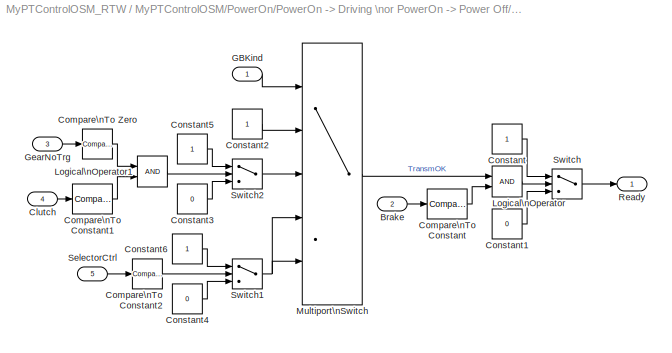
BLOCK [SubSystem] MyPTControlOSM/PowerOn/PowerOn -> Driving \nor PowerOn -> Power Off/PedalsReady2Start
  Ports = [5, 1]
  RequestExecContextInheritance = off
  SID = 403
BLOCK [Inport] MyPTControlOSM/PowerOn/PowerOn -> Driving \nor PowerOn -> Power Off/PedalsReady2Start/Brake
  IconDisplay = Port number
  Port = 2
  SID = 405
BLOCK [Inport] MyPTControlOSM/PowerOn/PowerOn -> Driving \nor PowerOn -> Power Off/PedalsReady2Start/Clutch
  IconDisplay = Port number
  Port = 4
  SID = 407
BLOCK [Reference] MyPTControlOSM/PowerOn/PowerOn -> Driving \nor PowerOn -> Power Off/PedalsReady2Start/Compare\nTo Constant  REF=simulink/Logic and Bit\nOperations/Compare\nTo Constant
  FunctionWithSeparateData = off
  LogicOutDataTypeMode = uint8
  Ports = [1, 1]
  RTWMemSecDataConstants = Inherit from model
  RTWMemSecDataInternal = Inherit from model
  RTWMemSecDataParameters = Inherit from model
  RTWMemSecFuncExecute = Inherit from model
  RTWMemSecFuncInitTerm = Inherit from model
  SID = 409
  ShowPortLabels = FromPortIcon
  SourceBlock = simulink/Logic and Bit\nOperations/Compare\nTo Constant
  SourceProductBaseCode = SL
  SourceProductName = Simulink
  SourceType = Compare To Constant
  SystemSampleTime = -1
  ZeroCross = off
  const = 0.5
  relop = >=
BLOCK [Reference] MyPTControlOSM/PowerOn/PowerOn -> Driving \nor PowerOn -> Power Off/PedalsReady2Start/Compare\nTo Constant1  REF=simulink/Logic and Bit\nOperations/Compare\nTo Constant
  FunctionWithSeparateData = off
  LogicOutDataTypeMode = uint8
  Ports = [1, 1]
  RTWMemSecDataConstants = Inherit from model
  RTWMemSecDataInternal = Inherit from model
  RTWMemSecDataParameters = Inherit from model
  RTWMemSecFuncExecute = Inherit from model
  RTWMemSecFuncInitTerm = Inherit from model
  SID = 410
  ShowPortLabels = FromPortIcon
  SourceBlock = simulink/Logic and Bit\nOperations/Compare\nTo Constant
  SourceProductBaseCode = SL
  SourceProductName = Simulink
  SourceType = Compare To Constant
  SystemSampleTime = -1
  ZeroCross = off
  const = 0.9
  relop = >=
BLOCK [Reference] MyPTControlOSM/PowerOn/PowerOn -> Driving \nor PowerOn -> Power Off/PedalsReady2Start/Compare\nTo Constant2  REF=simulink/Logic and Bit\nOperations/Compare\nTo Constant
  FunctionWithSeparateData = off
  LogicOutDataTypeMode = uint8
  Ports = [1, 1]
  RTWMemSecDataConstants = Inherit from model
  RTWMemSecDataInternal = Inherit from model
  RTWMemSecDataParameters = Inherit from model
  RTWMemSecFuncExecute = Inherit from model
  RTWMemSecFuncInitTerm = Inherit from model
  SID = 411
  ShowPortLabels = FromPortIcon
  SourceBlock = simulink/Logic and Bit\nOperations/Compare\nTo Constant
  SourceProductBaseCode = SL
  SourceProductName = Simulink
  SourceType = Compare To Constant
  SystemSampleTime = -1
  ZeroCross = off
  const = 0
  relop = ==
BLOCK [Reference] MyPTControlOSM/PowerOn/PowerOn -> Driving \nor PowerOn -> Power Off/PedalsReady2Start/Compare\nTo Zero  REF=simulink/Logic and Bit\nOperations/Compare\nTo Zero
  FunctionWithSeparateData = off
  LogicOutDataTypeMode = uint8
  Ports = [1, 1]
  RTWMemSecDataConstants = Inherit from model
  RTWMemSecDataInternal = Inherit from model
  RTWMemSecDataParameters = Inherit from model
  RTWMemSecFuncExecute = Inherit from model
  RTWMemSecFuncInitTerm = Inherit from model
  SID = 412
  ShowPortLabels = FromPortIcon
  SourceBlock = simulink/Logic and Bit\nOperations/Compare\nTo Zero
  SourceProductBaseCode = SL
  SourceProductName = Simulink
  SourceType = Compare To Zero
  SystemSampleTime = -1
  ZeroCross = off
  relop = ==
BLOCK [Constant] MyPTControlOSM/PowerOn/PowerOn -> Driving \nor PowerOn -> Power Off/PedalsReady2Start/Constant
  SID = 413
BLOCK [Constant] MyPTControlOSM/PowerOn/PowerOn -> Driving \nor PowerOn -> Power Off/PedalsReady2Start/Constant1
  SID = 414
  Value = 0
BLOCK [Constant] MyPTControlOSM/PowerOn/PowerOn -> Driving \nor PowerOn -> Power Off/PedalsReady2Start/Constant2
  SID = 415
BLOCK [Constant] MyPTControlOSM/PowerOn/PowerOn -> Driving \nor PowerOn -> Power Off/PedalsReady2Start/Constant3
  SID = 416
  Value = 0
BLOCK [Constant] MyPTControlOSM/PowerOn/PowerOn -> Driving \nor PowerOn -> Power Off/PedalsReady2Start/Constant4
  SID = 417
  Value = 0
BLOCK [Constant] MyPTControlOSM/PowerOn/PowerOn -> Driving \nor PowerOn -> Power Off/PedalsReady2Start/Constant5
  SID = 418
BLOCK [Constant] MyPTControlOSM/PowerOn/PowerOn -> Driving \nor PowerOn -> Power Off/PedalsReady2Start/Constant6
  SID = 419
BLOCK [Inport] MyPTControlOSM/PowerOn/PowerOn -> Driving \nor PowerOn -> Power Off/PedalsReady2Start/GBKind
  IconDisplay = Port number
  SID = 404
BLOCK [Inport] MyPTControlOSM/PowerOn/PowerOn -> Driving \nor PowerOn -> Power Off/PedalsReady2Start/GearNoTrg
  IconDisplay = Port number
  Port = 3
  SID = 406
BLOCK [Logic] MyPTControlOSM/PowerOn/PowerOn -> Driving \nor PowerOn -> Power Off/PedalsReady2Start/Logical\nOperator
  AllPortsSameDT = off
  OutDataTypeStr = boolean
  Ports = [2, 1]
  SID = 420
BLOCK [Logic] MyPTControlOSM/PowerOn/PowerOn -> Driving \nor PowerOn -> Power Off/PedalsReady2Start/Logical\nOperator1
  AllPortsSameDT = off
  OutDataTypeStr = boolean
  Ports = [2, 1]
  SID = 421
BLOCK [MultiPortSwitch] MyPTControlOSM/PowerOn/PowerOn -> Driving \nor PowerOn -> Power Off/PedalsReady2Start/Multiport\nSwitch
  DataPortOrder = Zero-based contiguous
  InputSameDT = off
  Inputs = 4
  Ports = [5, 1]
  SID = 422
  SaturateOnIntegerOverflow = off
  zeroidx = on
BLOCK [Outport] MyPTControlOSM/PowerOn/PowerOn -> Driving \nor PowerOn -> Power Off/PedalsReady2Start/Ready
  IconDisplay = Port number
  SID = 426
BLOCK [Inport] MyPTControlOSM/PowerOn/PowerOn -> Driving \nor PowerOn -> Power Off/PedalsReady2Start/SelectorCtrl
  IconDisplay = Port number
  Port = 5
  SID = 408
BLOCK [Switch] MyPTControlOSM/PowerOn/PowerOn -> Driving \nor PowerOn -> Power Off/PedalsReady2Start/Switch
  Criteria = u2 ~= 0
  InputSameDT = off
  SID = 423
  SaturateOnIntegerOverflow = off
BLOCK [Switch] MyPTControlOSM/PowerOn/PowerOn -> Driving \nor PowerOn -> Power Off/PedalsReady2Start/Switch1
  Criteria = u2 ~= 0
  InputSameDT = off
  SID = 424
  SaturateOnIntegerOverflow = off
BLOCK [Switch] MyPTControlOSM/PowerOn/PowerOn -> Driving \nor PowerOn -> Power Off/PedalsReady2Start/Switch2
  Criteria = u2 ~= 0
  InputSameDT = off
  SID = 425
  SaturateOnIntegerOverflow = off
BLOCK [SignalConversion] MyPTControlOSM/PowerOn/PowerOn -> Driving \nor PowerOn -> Power Off/Signal\nConversion
  ConversionOutput = Bus copy
  OverrideOpt = off
  SID = 427
BLOCK [ActionPort] MyPTControlOSM/PowerOn/PowerOn -> Driving \nor PowerOn -> Power Off/State 0\nPowerOn -> Driving or PowerOn -> PowerOff
  ActionPortLabel = case: { }
  SID = 392
BLOCK [Switch] MyPTControlOSM/PowerOn/PowerOn -> Driving \nor PowerOn -> Power Off/Switch
  Criteria = u2 ~= 0
  InputSameDT = off
  SID = 428
  SaturateOnIntegerOverflow = off
BLOCK [Switch] MyPTControlOSM/PowerOn/PowerOn -> Driving \nor PowerOn -> Power Off/Switch1
  Criteria = u2 ~= 0
  InputSameDT = off
  SID = 429
  SaturateOnIntegerOverflow = off
BLOCK [Switch] MyPTControlOSM/PowerOn/PowerOn -> Driving \nor PowerOn -> Power Off/Switch2
  Criteria = u2 ~= 0
  InputSameDT = off
  SID = 430
  SaturateOnIntegerOverflow = off
BLOCK [SubSystem] MyPTControlOSM/PowerOn/PowerOn reached -> back to beginning
  Ports = [1, 1, 0, 0, 0, 0, 0, 1]
  RequestExecContextInheritance = off
  SID = 432
  TreatAsAtomicUnit = on
BLOCK [Inport] MyPTControlOSM/PowerOn/PowerOn reached -> back to beginning/Bus In
  IconDisplay = Port number
  SID = 433
BLOCK [Outport] MyPTControlOSM/PowerOn/PowerOn reached -> back to beginning/Bus Out
  IconDisplay = Port number
  SID = 440
BLOCK [BusCreator] MyPTControlOSM/PowerOn/PowerOn reached -> back to beginning/Bus\nCreator1
  DisplayOption = bar
  InheritFromInputs = on
  Inputs = 4
  Ports = [4, 1]
  SID = 435
BLOCK [BusSelector] MyPTControlOSM/PowerOn/PowerOn reached -> back to beginning/Bus\nSelector4
  OutputAsBus = off
  OutputSignals = OSMFunc,State
  Ports = [1, 2]
  SID = 436
BLOCK [Constant] MyPTControlOSM/PowerOn/PowerOn reached -> back to beginning/Constant
  SID = 437
BLOCK [Constant] MyPTControlOSM/PowerOn/PowerOn reached -> back to beginning/OperState_PowerOn
  SID = 438
  Value = 3
BLOCK [SignalConversion] MyPTControlOSM/PowerOn/PowerOn reached -> back to beginning/Signal\nConversion
  ConversionOutput = Bus copy
  OverrideOpt = off
  SID = 439
BLOCK [ActionPort] MyPTControlOSM/PowerOn/PowerOn reached -> back to beginning/State 8\nPowerOn reached -> back to beginning
  ActionPortLabel = case: { }
  SID = 434
BLOCK [SignalConversion] MyPTControlOSM/PowerOn/Signal\nConversion1
  ConversionOutput = Bus copy
  OverrideOpt = off
  SID = 441
BLOCK [SubSystem] MyPTControlOSM/PowerOn/SkipStart function exist?
  Ports = [2, 1, 0, 0, 0, 0, 0, 1]
  RequestExecContextInheritance = off
  SID = 442
  TreatAsAtomicUnit = on
BLOCK [Inport] MyPTControlOSM/PowerOn/SkipStart function exist?/Bus In
  IconDisplay = Port number
  SID = 443
BLOCK [Outport] MyPTControlOSM/PowerOn/SkipStart function exist?/Bus Out
  IconDisplay = Port number
  SID = 458
BLOCK [BusCreator] MyPTControlOSM/PowerOn/SkipStart function exist?/Bus\nCreator
  DisplayOption = bar
  InheritFromInputs = on
  Inputs = 4
  Ports = [4, 1]
  SID = 446
BLOCK [BusSelector] MyPTControlOSM/PowerOn/SkipStart function exist?/Bus\nSelector1
  OutputAsBus = off
  OutputSignals = OSMFunc
  Ports = [1, 1]
  SID = 447
BLOCK [BusSelector] MyPTControlOSM/PowerOn/SkipStart function exist?/Bus\nSelector2
  OutputAsBus = off
  OutputSignals = rv,OperationState
  Ports = [1, 2]
  SID = 448
BLOCK [BusSelector] MyPTControlOSM/PowerOn/SkipStart function exist?/Bus\nSelector3
  OutputAsBus = off
  OutputSignals = Func_used.OSMFunc_SkipStart
  Ports = [1, 1]
  SID = 449
BLOCK [Constant] MyPTControlOSM/PowerOn/SkipStart function exist?/Constant2
  SID = 450
  Value = 5
BLOCK [Constant] MyPTControlOSM/PowerOn/SkipStart function exist?/Constant3
  SID = 451
  Value = 6
BLOCK [Demux] MyPTControlOSM/PowerOn/SkipStart function exist?/Demux
  DisplayOption = bar
  Outputs = 2
  Ports = [1, 2]
  SID = 452
BLOCK [Inport] MyPTControlOSM/PowerOn/SkipStart function exist?/Input
  IconDisplay = Port number
  Port = 2
  SID = 444
BLOCK [Mux] MyPTControlOSM/PowerOn/SkipStart function exist?/Mux
  DisplayOption = bar
  Inputs = 2
  Ports = [2, 1]
  SID = 453
BLOCK [Mux] MyPTControlOSM/PowerOn/SkipStart function exist?/Mux1
  DisplayOption = bar
  Inputs = 2
  Ports = [2, 1]
  SID = 454
BLOCK [Constant] MyPTControlOSM/PowerOn/SkipStart function exist?/OSMFunc_SkipStart
  SID = 455
  Value = 6
BLOCK [SignalConversion] MyPTControlOSM/PowerOn/SkipStart function exist?/Signal\nConversion
  ConversionOutput = Bus copy
  OverrideOpt = off
  SID = 456
BLOCK [ActionPort] MyPTControlOSM/PowerOn/SkipStart function exist?/State 4\nSkipStart function exist?
  ActionPortLabel = case: { }
  SID = 445
BLOCK [Switch] MyPTControlOSM/PowerOn/SkipStart function exist?/Switch1
  Criteria = u2 ~= 0
  InputSameDT = off
  SID = 457
  SaturateOnIntegerOverflow = off
BLOCK [SubSystem] MyPTControlOSM/PowerOn/SkipStart reached -> PowerOn function exist?
  Ports = [2, 1, 0, 0, 0, 0, 0, 1]
  RequestExecContextInheritance = off
  SID = 459
  TreatAsAtomicUnit = on
BLOCK [Inport] MyPTControlOSM/PowerOn/SkipStart reached -> PowerOn function exist?/Bus In
  IconDisplay = Port number
  SID = 460
BLOCK [Outport] MyPTControlOSM/PowerOn/SkipStart reached -> PowerOn function exist?/Bus Out
  IconDisplay = Port number
  SID = 475
BLOCK [BusCreator] MyPTControlOSM/PowerOn/SkipStart reached -> PowerOn function exist?/Bus\nCreator
  DisplayOption = bar
  InheritFromInputs = on
  Inputs = 4
  Ports = [4, 1]
  SID = 463
BLOCK [BusSelector] MyPTControlOSM/PowerOn/SkipStart reached -> PowerOn function exist?/Bus\nSelector1
  OutputAsBus = off
  OutputSignals = OSMFunc
  Ports = [1, 1]
  SID = 464
BLOCK [BusSelector] MyPTControlOSM/PowerOn/SkipStart reached -> PowerOn function exist?/Bus\nSelector2
  OutputAsBus = off
  OutputSignals = rv,OperationState
  Ports = [1, 2]
  SID = 465
BLOCK [BusSelector] MyPTControlOSM/PowerOn/SkipStart reached -> PowerOn function exist?/Bus\nSelector3
  OutputAsBus = off
  OutputSignals = Func_used.OSMFunc_PowerOn
  Ports = [1, 1]
  SID = 466
BLOCK [Constant] MyPTControlOSM/PowerOn/SkipStart reached -> PowerOn function exist?/Constant2
  SID = 467
  Value = 7
BLOCK [Constant] MyPTControlOSM/PowerOn/SkipStart reached -> PowerOn function exist?/Constant3
  SID = 468
  Value = 8
BLOCK [Demux] MyPTControlOSM/PowerOn/SkipStart reached -> PowerOn function exist?/Demux
  DisplayOption = bar
  Outputs = 2
  Ports = [1, 2]
  SID = 469
BLOCK [Inport] MyPTControlOSM/PowerOn/SkipStart reached -> PowerOn function exist?/Input
  IconDisplay = Port number
  Port = 2
  SID = 461
BLOCK [Mux] MyPTControlOSM/PowerOn/SkipStart reached -> PowerOn function exist?/Mux
  DisplayOption = bar
  Inputs = 2
  Ports = [2, 1]
  SID = 470
BLOCK [Mux] MyPTControlOSM/PowerOn/SkipStart reached -> PowerOn function exist?/Mux1
  DisplayOption = bar
  Inputs = 2
  Ports = [2, 1]
  SID = 471
BLOCK [Constant] MyPTControlOSM/PowerOn/SkipStart reached -> PowerOn function exist?/OSMFunc_PowerOn
  SID = 472
  Value = 4
BLOCK [SignalConversion] MyPTControlOSM/PowerOn/SkipStart reached -> PowerOn function exist?/Signal\nConversion1
  ConversionOutput = Bus copy
  OverrideOpt = off
  SID = 473
BLOCK [ActionPort] MyPTControlOSM/PowerOn/SkipStart reached -> PowerOn function exist?/State 6\nSkipStart reached -> PowerOn function exist?
  ActionPortLabel = case: { }
  SID = 462
BLOCK [Switch] MyPTControlOSM/PowerOn/SkipStart reached -> PowerOn function exist?/Switch1
  Criteria = u2 ~= 0
  InputSameDT = off
  SID = 474
  SaturateOnIntegerOverflow = off
BLOCK [SubSystem] MyPTControlOSM/PowerOn/Start function exist?
  Ports = [2, 1, 0, 0, 0, 0, 0, 1]
  RequestExecContextInheritance = off
  SID = 476
  TreatAsAtomicUnit = on
BLOCK [Inport] MyPTControlOSM/PowerOn/Start function exist?/Bus In
  IconDisplay = Port number
  SID = 477
BLOCK [Outport] MyPTControlOSM/PowerOn/Start function exist?/Bus Out
  IconDisplay = Port number
  SID = 492
BLOCK [BusCreator] MyPTControlOSM/PowerOn/Start function exist?/Bus\nCreator
  DisplayOption = bar
  InheritFromInputs = on
  Inputs = 4
  Ports = [4, 1]
  SID = 480
BLOCK [BusSelector] MyPTControlOSM/PowerOn/Start function exist?/Bus\nSelector1
  OutputAsBus = off
  OutputSignals = OSMFunc
  Ports = [1, 1]
  SID = 481
BLOCK [BusSelector] MyPTControlOSM/PowerOn/Start function exist?/Bus\nSelector2
  OutputAsBus = off
  OutputSignals = rv,OperationState
  Ports = [1, 2]
  SID = 482
BLOCK [BusSelector] MyPTControlOSM/PowerOn/Start function exist?/Bus\nSelector3
  OutputAsBus = off
  OutputSignals = Func_used.OSMFunc_SkipStart
  Ports = [1, 1]
  SID = 483
BLOCK [Constant] MyPTControlOSM/PowerOn/Start function exist?/Constant2
  SID = 484
  Value = 2
BLOCK [Constant] MyPTControlOSM/PowerOn/Start function exist?/Constant3
  SID = 485
  Value = 3
BLOCK [Demux] MyPTControlOSM/PowerOn/Start function exist?/Demux
  DisplayOption = bar
  Outputs = 2
  Ports = [1, 2]
  SID = 486
BLOCK [Inport] MyPTControlOSM/PowerOn/Start function exist?/Input
  IconDisplay = Port number
  Port = 2
  SID = 478
BLOCK [Mux] MyPTControlOSM/PowerOn/Start function exist?/Mux
  DisplayOption = bar
  Inputs = 2
  Ports = [2, 1]
  SID = 487
BLOCK [Mux] MyPTControlOSM/PowerOn/Start function exist?/Mux1
  DisplayOption = bar
  Inputs = 2
  Ports = [2, 1]
  SID = 488
BLOCK [Constant] MyPTControlOSM/PowerOn/Start function exist?/OSMFunc_Start
  SID = 489
  Value = 5
BLOCK [SignalConversion] MyPTControlOSM/PowerOn/Start function exist?/Signal\nConversion1
  ConversionOutput = Bus copy
  OverrideOpt = off
  SID = 490
BLOCK [ActionPort] MyPTControlOSM/PowerOn/Start function exist?/State 1\nStart function exist?
  ActionPortLabel = case: { }
  SID = 479
BLOCK [Switch] MyPTControlOSM/PowerOn/Start function exist?/Switch1
  Criteria = u2 ~= 0
  InputSameDT = off
  SID = 491
  SaturateOnIntegerOverflow = off
BLOCK [SwitchCase] MyPTControlOSM/PowerOn/Switch Case
  CaseConditions = {0,1,2,3,4,5,6,7,8,9,10}
  Ports = [1, 12]
  SID = 493
BLOCK [SubSystem] MyPTControlOSM/PowerOn/Wait for PowerOff is ready
  Ports = [2, 1, 0, 0, 0, 0, 0, 1]
  RequestExecContextInheritance = off
  SID = 494
  TreatAsAtomicUnit = on
BLOCK [Inport] MyPTControlOSM/PowerOn/Wait for PowerOff is ready/Bus In
  IconDisplay = Port number
  SID = 495
BLOCK [Outport] MyPTControlOSM/PowerOn/Wait for PowerOff is ready/Bus Out
  IconDisplay = Port number
  SID = 504
BLOCK [BusAssignment] MyPTControlOSM/PowerOn/Wait for PowerOff is ready/Bus\nAssignment
  AssignedSignals = State
  Ports = [2, 1]
  SID = 498
BLOCK [BusSelector] MyPTControlOSM/PowerOn/Wait for PowerOff is ready/Bus\nSelector
  OutputAsBus = off
  OutputSignals = FuncReturn
  Ports = [1, 1]
  SID = 499
BLOCK [Constant] MyPTControlOSM/PowerOn/Wait for PowerOff is ready/Constant
  SID = 500
  Value = 11
BLOCK [Constant] MyPTControlOSM/PowerOn/Wait for PowerOff is ready/Constant1
  SID = 501
  Value = 10
BLOCK [Inport] MyPTControlOSM/PowerOn/Wait for PowerOff is ready/Input
  IconDisplay = Port number
  Port = 2
  SID = 496
BLOCK [SignalConversion] MyPTControlOSM/PowerOn/Wait for PowerOff is ready/Signal\nConversion
  ConversionOutput = Bus copy
  OverrideOpt = off
  SID = 502
BLOCK [ActionPort] MyPTControlOSM/PowerOn/Wait for PowerOff is ready/State 10\nWait for PowerOff is ready
  ActionPortLabel = case: { }
  SID = 497
BLOCK [Switch] MyPTControlOSM/PowerOn/Wait for PowerOff is ready/Switch
  Criteria = u2 ~= 0
  InputSameDT = off
  SID = 503
  SaturateOnIntegerOverflow = off
BLOCK [SubSystem] MyPTControlOSM/PowerOn/Wait for PowerOn is ready
  Ports = [2, 1, 0, 0, 0, 0, 0, 1]
  RequestExecContextInheritance = off
  SID = 505
  TreatAsAtomicUnit = on
BLOCK [Inport] MyPTControlOSM/PowerOn/Wait for PowerOn is ready/Bus In
  IconDisplay = Port number
  SID = 506
BLOCK [Outport] MyPTControlOSM/PowerOn/Wait for PowerOn is ready/Bus Out
  IconDisplay = Port number
  SID = 515
BLOCK [BusAssignment] MyPTControlOSM/PowerOn/Wait for PowerOn is ready/Bus\nAssignment
  AssignedSignals = State
  Ports = [2, 1]
  SID = 509
BLOCK [BusSelector] MyPTControlOSM/PowerOn/Wait for PowerOn is ready/Bus\nSelector
  OutputAsBus = off
  OutputSignals = FuncReturn
  Ports = [1, 1]
  SID = 510
BLOCK [Constant] MyPTControlOSM/PowerOn/Wait for PowerOn is ready/Constant
  SID = 511
  Value = 8
BLOCK [Constant] MyPTControlOSM/PowerOn/Wait for PowerOn is ready/Constant1
  SID = 512
  Value = 7
BLOCK [Inport] MyPTControlOSM/PowerOn/Wait for PowerOn is ready/Input
  IconDisplay = Port number
  Port = 2
  SID = 507
BLOCK [SignalConversion] MyPTControlOSM/PowerOn/Wait for PowerOn is ready/Signal\nConversion
  ConversionOutput = Bus copy
  OverrideOpt = off
  SID = 513
BLOCK [ActionPort] MyPTControlOSM/PowerOn/Wait for PowerOn is ready/State 7\nWait for PowerOn is ready
  ActionPortLabel = case: { }
  SID = 508
BLOCK [Switch] MyPTControlOSM/PowerOn/Wait for PowerOn is ready/Switch
  Criteria = u2 ~= 0
  InputSameDT = off
  SID = 514
  SaturateOnIntegerOverflow = off
BLOCK [SubSystem] MyPTControlOSM/PowerOn/Wait for SkipStart is ready
  Ports = [2, 1, 0, 0, 0, 0, 0, 1]
  RequestExecContextInheritance = off
  SID = 516
  TreatAsAtomicUnit = on
BLOCK [Inport] MyPTControlOSM/PowerOn/Wait for SkipStart is ready/Bus In
  IconDisplay = Port number
  SID = 517
BLOCK [Outport] MyPTControlOSM/PowerOn/Wait for SkipStart is ready/Bus Out
  IconDisplay = Port number
  SID = 526
BLOCK [BusAssignment] MyPTControlOSM/PowerOn/Wait for SkipStart is ready/Bus\nAssignment
  AssignedSignals = State
  Ports = [2, 1]
  SID = 520
BLOCK [BusSelector] MyPTControlOSM/PowerOn/Wait for SkipStart is ready/Bus\nSelector
  OutputAsBus = off
  OutputSignals = FuncReturn
  Ports = [1, 1]
  SID = 521
BLOCK [Constant] MyPTControlOSM/PowerOn/Wait for SkipStart is ready/Constant
  SID = 522
  Value = 6
BLOCK [Constant] MyPTControlOSM/PowerOn/Wait for SkipStart is ready/Constant1
  SID = 523
  Value = 5
BLOCK [Inport] MyPTControlOSM/PowerOn/Wait for SkipStart is ready/Input
  IconDisplay = Port number
  Port = 2
  SID = 518
BLOCK [SignalConversion] MyPTControlOSM/PowerOn/Wait for SkipStart is ready/Signal\nConversion
  ConversionOutput = Bus copy
  OverrideOpt = off
  SID = 524
BLOCK [ActionPort] MyPTControlOSM/PowerOn/Wait for SkipStart is ready/State 5\nWait for SkipStart is ready
  ActionPortLabel = case: { }
  SID = 519
BLOCK [Switch] MyPTControlOSM/PowerOn/Wait for SkipStart is ready/Switch
  Criteria = u2 ~= 0
  InputSameDT = off
  SID = 525
  SaturateOnIntegerOverflow = off
BLOCK [SubSystem] MyPTControlOSM/PowerOn/Wait for Start is ready
  Ports = [2, 1, 0, 0, 0, 0, 0, 1]
  RequestExecContextInheritance = off
  SID = 527
  TreatAsAtomicUnit = on
BLOCK [Reference] MyPTControlOSM/PowerOn/Wait for Start is ready/!=KeyPos_KeyIn_Starter  REF=simulink/Logic and Bit\nOperations/Compare\nTo Constant
  FunctionWithSeparateData = off
  LogicOutDataTypeMode = uint8
  Ports = [1, 1]
  RTWMemSecDataConstants = Inherit from model
  RTWMemSecDataInternal = Inherit from model
  RTWMemSecDataParameters = Inherit from model
  RTWMemSecFuncExecute = Inherit from model
  RTWMemSecFuncInitTerm = Inherit from model
  SID = 531
  ShowPortLabels = FromPortIcon
  SourceBlock = simulink/Logic and Bit\nOperations/Compare\nTo Constant
  SourceProductBaseCode = SL
  SourceProductName = Simulink
  SourceType = Compare To Constant
  SystemSampleTime = -1
  ZeroCross = off
  const = 4
  relop = ~=
BLOCK [Inport] MyPTControlOSM/PowerOn/Wait for Start is ready/Bus In
  IconDisplay = Port number
  SID = 528
BLOCK [Outport] MyPTControlOSM/PowerOn/Wait for Start is ready/Bus Out
  IconDisplay = Port number
  SID = 542
BLOCK [BusAssignment] MyPTControlOSM/PowerOn/Wait for Start is ready/Bus\nAssignment
  AssignedSignals = State
  Ports = [2, 1]
  SID = 532
BLOCK [BusSelector] MyPTControlOSM/PowerOn/Wait for Start is ready/Bus\nSelector
  OutputAsBus = off
  OutputSignals = FuncReturn
  Ports = [1, 1]
  SID = 533
BLOCK [BusSelector] MyPTControlOSM/PowerOn/Wait for Start is ready/Bus\nSelector1
  OutputAsBus = off
  OutputSignals = Key
  Ports = [1, 1]
  SID = 534
BLOCK [Constant] MyPTControlOSM/PowerOn/Wait for Start is ready/Constant
  SID = 535
  Value = 4
BLOCK [Constant] MyPTControlOSM/PowerOn/Wait for Start is ready/Constant1
  SID = 536
  Value = 2
BLOCK [Constant] MyPTControlOSM/PowerOn/Wait for Start is ready/Constant2
  SID = 537
  Value = 3
BLOCK [Inport] MyPTControlOSM/PowerOn/Wait for Start is ready/Input
  IconDisplay = Port number
  Port = 2
  SID = 529
BLOCK [InportShadow] MyPTControlOSM/PowerOn/Wait for Start is ready/Input Copy
  IconDisplay = Port number
  Port = 2
  SID = 538
BLOCK [SignalConversion] MyPTControlOSM/PowerOn/Wait for Start is ready/Signal\nConversion
  ConversionOutput = Bus copy
  OverrideOpt = off
  SID = 539
BLOCK [Switch] MyPTControlOSM/PowerOn/Wait for Start is ready/Skip Start if Key\nist not Starter
  Criteria = u2 ~= 0
  InputSameDT = off
  SID = 540
  SaturateOnIntegerOverflow = off
BLOCK [ActionPort] MyPTControlOSM/PowerOn/Wait for Start is ready/State 2\nWait for Start is ready
  ActionPortLabel = case: { }
  SID = 530
BLOCK [Switch] MyPTControlOSM/PowerOn/Wait for Start is ready/Switch
  Criteria = u2 ~= 0
  InputSameDT = off
  SID = 541
  SaturateOnIntegerOverflow = off
BLOCK [Switch] MyPTControlOSM/Switch
  Criteria = u2 ~= 0
  InputSameDT = off
  SID = 544
  SaturateOnIntegerOverflow = off
BLOCK [SwitchCase] MyPTControlOSM/Switch Case
  CaseConditions = {0,1,2,3}
  Ports = [1, 5]
  SID = 545
BLOCK [Constant] MyPTControlOSM/rv
  SID = 546
  Value = 0
BLOCK [Outport] ToCM
  IconDisplay = Port number
  OutDataTypeStr = Bus: cmPTControlOSMOut
  SID = 4
LINE Bus\nCreator:1 -> MyPTControlOSM:1
LINE CfgIF_In_Selector:1 -> Bus\nCreator:7
LINE CfgIF_In_Selector:2 -> Bus\nCreator:8
LINE CfgInFromCM:1 -> CfgIF_In_Selector:1
LINE FromCM:1 -> IF_In_Selector:1
LINE IF_In_Selector:1 -> Bus\nCreator:1
LINE IF_In_Selector:2 -> Bus\nCreator:2
LINE IF_In_Selector:3 -> Bus\nCreator:3
LINE IF_In_Selector:4 -> Bus\nCreator:4
LINE IF_In_Selector:5 -> Bus\nCreator:5
LINE IF_In_Selector:6 -> Bus\nCreator:6
LINE IF_Out_Selector/OSMFunc:1 -> IF_Out_Selector/cmPTControlOSMOut:3
LINE IF_Out_Selector/OperationError:1 -> IF_Out_Selector/cmPTControlOSMOut:2
LINE IF_Out_Selector/OperationState:1 -> IF_Out_Selector/cmPTControlOSMOut:1
LINE IF_Out_Selector/RateTransition:1 -> IF_Out_Selector/ToCM:1
LINE IF_Out_Selector/cmPTControlOSMOut:1 -> IF_Out_Selector/RateTransition:1
LINE IF_Out_Selector:1 -> ToCM:1
LINE Memory1:1 -> MyPTControlOSM:3
LINE Memory:1 -> MyPTControlOSM:2
LINE MyPTControlOSM/Absent/Absent -> PowerOff?/>= KeyIn_PowerOff:1 -> MyPTControlOSM/Absent/Absent -> PowerOff?/Switch:2
LINE MyPTControlOSM/Absent/Absent -> PowerOff?/Bus In:1 -> MyPTControlOSM/Absent/Absent -> PowerOff?/Bus\nAssignment:1
LINE MyPTControlOSM/Absent/Absent -> PowerOff?/Bus\nAssignment:1 -> MyPTControlOSM/Absent/Absent -> PowerOff?/Signal\nConversion:1
LINE MyPTControlOSM/Absent/Absent -> PowerOff?/Bus\nSelector:1 -> MyPTControlOSM/Absent/Absent -> PowerOff?/>= KeyIn_PowerOff:1
LINE MyPTControlOSM/Absent/Absent -> PowerOff?/Constant1:1 -> MyPTControlOSM/Absent/Absent -> PowerOff?/Switch:3
LINE MyPTControlOSM/Absent/Absent -> PowerOff?/Constant:1 -> MyPTControlOSM/Absent/Absent -> PowerOff?/Switch:1
LINE MyPTControlOSM/Absent/Absent -> PowerOff?/Input:1 -> MyPTControlOSM/Absent/Absent -> PowerOff?/Bus\nSelector:1
LINE MyPTControlOSM/Absent/Absent -> PowerOff?/OSMFunc_None:1 -> MyPTControlOSM/Absent/Absent -> PowerOff?/Bus\nAssignment:2
LINE MyPTControlOSM/Absent/Absent -> PowerOff?/Signal\nConversion:1 -> MyPTControlOSM/Absent/Absent -> PowerOff?/Bus Out:1
LINE MyPTControlOSM/Absent/Absent -> PowerOff?/Switch:1 -> MyPTControlOSM/Absent/Absent -> PowerOff?/Bus\nAssignment:3
LINE MyPTControlOSM/Absent/Absent -> PowerOff?:1 -> MyPTControlOSM/Absent/Merge:3
NET MyPTControlOSM/Absent/Absent Function exist?/Bus In:1 -> MyPTControlOSM/Absent/Absent Function exist?/Bus\nSelector1:1, MyPTControlOSM/Absent/Absent Function exist?/Bus\nSelector:1
LINE MyPTControlOSM/Absent/Absent Function exist?/Bus\nCreator:1 -> MyPTControlOSM/Absent/Absent Function exist?/Signal\nConversion:1
LINE MyPTControlOSM/Absent/Absent Function exist?/Bus\nSelector1:1 -> MyPTControlOSM/Absent/Absent Function exist?/Bus\nCreator:1
LINE MyPTControlOSM/Absent/Absent Function exist?/Bus\nSelector1:2 -> MyPTControlOSM/Absent/Absent Function exist?/Bus\nCreator:2
LINE MyPTControlOSM/Absent/Absent Function exist?/Bus\nSelector2:1 -> MyPTControlOSM/Absent/Absent Function exist?/Switch:2
LINE MyPTControlOSM/Absent/Absent Function exist?/Bus\nSelector:1 -> MyPTControlOSM/Absent/Absent Function exist?/Mux:1
LINE MyPTControlOSM/Absent/Absent Function exist?/Constant1:1 -> MyPTControlOSM/Absent/Absent Function exist?/Mux:2
LINE MyPTControlOSM/Absent/Absent Function exist?/Constant:1 -> MyPTControlOSM/Absent/Absent Function exist?/Mux1:2
LINE MyPTControlOSM/Absent/Absent Function exist?/Demux:1 -> MyPTControlOSM/Absent/Absent Function exist?/Bus\nCreator:3
LINE MyPTControlOSM/Absent/Absent Function exist?/Demux:2 -> MyPTControlOSM/Absent/Absent Function exist?/Bus\nCreator:4
LINE MyPTControlOSM/Absent/Absent Function exist?/Input:1 -> MyPTControlOSM/Absent/Absent Function exist?/Bus\nSelector2:1
LINE MyPTControlOSM/Absent/Absent Function exist?/Mux1:1 -> MyPTControlOSM/Absent/Absent Function exist?/Switch:1
LINE MyPTControlOSM/Absent/Absent Function exist?/Mux:1 -> MyPTControlOSM/Absent/Absent Function exist?/Switch:3
LINE MyPTControlOSM/Absent/Absent Function exist?/OSMFunc_Absent:1 -> MyPTControlOSM/Absent/Absent Function exist?/Mux1:1
LINE MyPTControlOSM/Absent/Absent Function exist?/Signal\nConversion:1 -> MyPTControlOSM/Absent/Absent Function exist?/Bus Out:1
LINE MyPTControlOSM/Absent/Absent Function exist?/Switch:1 -> MyPTControlOSM/Absent/Absent Function exist?/Demux:1
LINE MyPTControlOSM/Absent/Absent Function exist?:1 -> MyPTControlOSM/Absent/Merge:1
NET MyPTControlOSM/Absent/Bus In:1 -> MyPTControlOSM/Absent/Absent -> PowerOff?:1, MyPTControlOSM/Absent/Absent Function exist?:2, MyPTControlOSM/Absent/Bus\nSelector:1, MyPTControlOSM/Absent/PowerOff function exist?:1, MyPTControlOSM/Absent/PowerOff reached:1, MyPTControlOSM/Absent/Wait for Absent is ready:1, MyPTControlOSM/Absent/Wait for PowerOff is ready:1
LINE MyPTControlOSM/Absent/Bus\nSelector:1 -> MyPTControlOSM/Absent/Switch Case:1
NET MyPTControlOSM/Absent/Inputs:1 -> MyPTControlOSM/Absent/Absent -> PowerOff?:2, MyPTControlOSM/Absent/Absent Function exist?:1, MyPTControlOSM/Absent/PowerOff function exist?:2, MyPTControlOSM/Absent/Wait for Absent is ready:2, MyPTControlOSM/Absent/Wait for PowerOff is ready:2
LINE MyPTControlOSM/Absent/Merge:1 -> MyPTControlOSM/Absent/Signal\nConversion:1
NET MyPTControlOSM/Absent/PowerOff function exist?/Bus In:1 -> MyPTControlOSM/Absent/PowerOff function exist?/Bus\nSelector1:1, MyPTControlOSM/Absent/PowerOff function exist?/Bus\nSelector2:1
LINE MyPTControlOSM/Absent/PowerOff function exist?/Bus\nCreator:1 -> MyPTControlOSM/Absent/PowerOff function exist?/Signal\nConversion1:1
LINE MyPTControlOSM/Absent/PowerOff function exist?/Bus\nSelector1:1 -> MyPTControlOSM/Absent/PowerOff function exist?/Mux:1
LINE MyPTControlOSM/Absent/PowerOff function exist?/Bus\nSelector2:1 -> MyPTControlOSM/Absent/PowerOff function exist?/Bus\nCreator:1
LINE MyPTControlOSM/Absent/PowerOff function exist?/Bus\nSelector2:2 -> MyPTControlOSM/Absent/PowerOff function exist?/Bus\nCreator:2
LINE MyPTControlOSM/Absent/PowerOff function exist?/Bus\nSelector3:1 -> MyPTControlOSM/Absent/PowerOff function exist?/Switch:2
LINE MyPTControlOSM/Absent/PowerOff function exist?/Constant1:1 -> MyPTControlOSM/Absent/PowerOff function exist?/Mux:2
LINE MyPTControlOSM/Absent/PowerOff function exist?/Constant:1 -> MyPTControlOSM/Absent/PowerOff function exist?/Mux1:2
LINE MyPTControlOSM/Absent/PowerOff function exist?/Demux:1 -> MyPTControlOSM/Absent/PowerOff function exist?/Bus\nCreator:3
LINE MyPTControlOSM/Absent/PowerOff function exist?/Demux:2 -> MyPTControlOSM/Absent/PowerOff function exist?/Bus\nCreator:4
LINE MyPTControlOSM/Absent/PowerOff function exist?/Input:1 -> MyPTControlOSM/Absent/PowerOff function exist?/Bus\nSelector3:1
LINE MyPTControlOSM/Absent/PowerOff function exist?/Mux1:1 -> MyPTControlOSM/Absent/PowerOff function exist?/Switch:1
LINE MyPTControlOSM/Absent/PowerOff function exist?/Mux:1 -> MyPTControlOSM/Absent/PowerOff function exist?/Switch:3
LINE MyPTControlOSM/Absent/PowerOff function exist?/OSMFunc_PowerOff:1 -> MyPTControlOSM/Absent/PowerOff function exist?/Mux1:1
LINE MyPTControlOSM/Absent/PowerOff function exist?/Signal\nConversion1:1 -> MyPTControlOSM/Absent/PowerOff function exist?/Bus Out:1
LINE MyPTControlOSM/Absent/PowerOff function exist?/Switch:1 -> MyPTControlOSM/Absent/PowerOff function exist?/Demux:1
LINE MyPTControlOSM/Absent/PowerOff function exist?:1 -> MyPTControlOSM/Absent/Merge:4
LINE MyPTControlOSM/Absent/PowerOff reached/Bus In:1 -> MyPTControlOSM/Absent/PowerOff reached/Bus\nSelector2:1
LINE MyPTControlOSM/Absent/PowerOff reached/Bus\nCreator:1 -> MyPTControlOSM/Absent/PowerOff reached/Signal\nConversion:1
LINE MyPTControlOSM/Absent/PowerOff reached/Bus\nSelector2:1 -> MyPTControlOSM/Absent/PowerOff reached/Bus\nCreator:3
LINE MyPTControlOSM/Absent/PowerOff reached/Bus\nSelector2:2 -> MyPTControlOSM/Absent/PowerOff reached/Bus\nCreator:4
LINE MyPTControlOSM/Absent/PowerOff reached/Constant:1 -> MyPTControlOSM/Absent/PowerOff reached/Bus\nCreator:1
LINE MyPTControlOSM/Absent/PowerOff reached/OperState_PowerOff:1 -> MyPTControlOSM/Absent/PowerOff reached/Bus\nCreator:2
LINE MyPTControlOSM/Absent/PowerOff reached/Signal\nConversion:1 -> MyPTControlOSM/Absent/PowerOff reached/Bus Out:1
LINE MyPTControlOSM/Absent/PowerOff reached:1 -> MyPTControlOSM/Absent/Merge:6
LINE MyPTControlOSM/Absent/Signal\nConversion:1 -> MyPTControlOSM/Absent/Bus Out:1
LINE MyPTControlOSM/Absent/Switch Case:1 -> MyPTControlOSM/Absent/Absent Function exist?:ifaction
LINE MyPTControlOSM/Absent/Switch Case:2 -> MyPTControlOSM/Absent/Wait for Absent is ready:ifaction
LINE MyPTControlOSM/Absent/Switch Case:3 -> MyPTControlOSM/Absent/Absent -> PowerOff?:ifaction
LINE MyPTControlOSM/Absent/Switch Case:4 -> MyPTControlOSM/Absent/PowerOff function exist?:ifaction
LINE MyPTControlOSM/Absent/Switch Case:5 -> MyPTControlOSM/Absent/Wait for PowerOff is ready:ifaction
LINE MyPTControlOSM/Absent/Switch Case:6 -> MyPTControlOSM/Absent/PowerOff reached:ifaction
LINE MyPTControlOSM/Absent/Wait for Absent is ready/Bus In:1 -> MyPTControlOSM/Absent/Wait for Absent is ready/Bus\nAssignment:1
LINE MyPTControlOSM/Absent/Wait for Absent is ready/Bus\nAssignment:1 -> MyPTControlOSM/Absent/Wait for Absent is ready/Signal\nConversion:1
LINE MyPTControlOSM/Absent/Wait for Absent is ready/Bus\nSelector:1 -> MyPTControlOSM/Absent/Wait for Absent is ready/Switch:2
LINE MyPTControlOSM/Absent/Wait for Absent is ready/Constant1:1 -> MyPTControlOSM/Absent/Wait for Absent is ready/Switch:3
LINE MyPTControlOSM/Absent/Wait for Absent is ready/Constant:1 -> MyPTControlOSM/Absent/Wait for Absent is ready/Switch:1
LINE MyPTControlOSM/Absent/Wait for Absent is ready/Input:1 -> MyPTControlOSM/Absent/Wait for Absent is ready/Bus\nSelector:1
LINE MyPTControlOSM/Absent/Wait for Absent is ready/Signal\nConversion:1 -> MyPTControlOSM/Absent/Wait for Absent is ready/Bus Out:1
LINE MyPTControlOSM/Absent/Wait for Absent is ready/Switch:1 -> MyPTControlOSM/Absent/Wait for Absent is ready/Bus\nAssignment:2
LINE MyPTControlOSM/Absent/Wait for Absent is ready:1 -> MyPTControlOSM/Absent/Merge:2
LINE MyPTControlOSM/Absent/Wait for PowerOff is ready/Bus In:1 -> MyPTControlOSM/Absent/Wait for PowerOff is ready/Bus\nAssignment:1
LINE MyPTControlOSM/Absent/Wait for PowerOff is ready/Bus\nAssignment:1 -> MyPTControlOSM/Absent/Wait for PowerOff is ready/Signal\nConversion:1
LINE MyPTControlOSM/Absent/Wait for PowerOff is ready/Bus\nSelector:1 -> MyPTControlOSM/Absent/Wait for PowerOff is ready/Switch:2
LINE MyPTControlOSM/Absent/Wait for PowerOff is ready/Constant1:1 -> MyPTControlOSM/Absent/Wait for PowerOff is ready/Switch:3
LINE MyPTControlOSM/Absent/Wait for PowerOff is ready/Constant:1 -> MyPTControlOSM/Absent/Wait for PowerOff is ready/Switch:1
LINE MyPTControlOSM/Absent/Wait for PowerOff is ready/Input:1 -> MyPTControlOSM/Absent/Wait for PowerOff is ready/Bus\nSelector:1
LINE MyPTControlOSM/Absent/Wait for PowerOff is ready/Signal\nConversion:1 -> MyPTControlOSM/Absent/Wait for PowerOff is ready/Bus Out:1
LINE MyPTControlOSM/Absent/Wait for PowerOff is ready/Switch:1 -> MyPTControlOSM/Absent/Wait for PowerOff is ready/Bus\nAssignment:2
LINE MyPTControlOSM/Absent/Wait for PowerOff is ready:1 -> MyPTControlOSM/Absent/Merge:5
LINE MyPTControlOSM/Absent:1 -> MyPTControlOSM/Merge:1
NET MyPTControlOSM/Bus\nCreator:1 -> MyPTControlOSM/Absent:1, MyPTControlOSM/Driving:1, MyPTControlOSM/PowerAcc:1, MyPTControlOSM/PowerOff:1, MyPTControlOSM/PowerOn:1
LINE MyPTControlOSM/Bus\nSelector:1 -> MyPTControlOSM/OperationState:1
LINE MyPTControlOSM/Bus\nSelector:2 -> MyPTControlOSM/Compare\nTo Constant:1
LINE MyPTControlOSM/Bus\nSelector:3 -> MyPTControlOSM/Mux:1
LINE MyPTControlOSM/Bus\nSelector:4 -> MyPTControlOSM/Mux:2
LINE MyPTControlOSM/Compare\nTo Constant:1 -> MyPTControlOSM/Switch:2
LINE MyPTControlOSM/Constant:1 -> MyPTControlOSM/Switch:1
LINE MyPTControlOSM/Demux:1 -> MyPTControlOSM/OSMFunc:1
LINE MyPTControlOSM/Demux:2 -> MyPTControlOSM/Memory:1
NET MyPTControlOSM/Driving/Bus In:1 -> MyPTControlOSM/Driving/Bus\nSelector1:1, MyPTControlOSM/Driving/PowerOff function exist:1, MyPTControlOSM/Driving/PowerOff reached:1, MyPTControlOSM/Driving/PowerOn function exist?:1, MyPTControlOSM/Driving/PowerOn reached:1, MyPTControlOSM/Driving/Set Drive:1, MyPTControlOSM/Driving/Treat error or Drive -> PowerOff:1, MyPTControlOSM/Driving/Wait for PowerOff is ready:1, MyPTControlOSM/Driving/Wait for PowerOn is ready:1
LINE MyPTControlOSM/Driving/Bus\nSelector1:1 -> MyPTControlOSM/Driving/Switch Case:1
NET MyPTControlOSM/Driving/Inputs:1 -> MyPTControlOSM/Driving/PowerOff function exist:2, MyPTControlOSM/Driving/PowerOn function exist?:2, MyPTControlOSM/Driving/Treat error or Drive -> PowerOff:2, MyPTControlOSM/Driving/Wait for PowerOff is ready:2, MyPTControlOSM/Driving/Wait for PowerOn is ready:2
LINE MyPTControlOSM/Driving/Merge:1 -> MyPTControlOSM/Driving/Signal\nConversion1:1
NET MyPTControlOSM/Driving/PowerOff function exist/Bus In:1 -> MyPTControlOSM/Driving/PowerOff function exist/Bus\nSelector1:1, MyPTControlOSM/Driving/PowerOff function exist/Bus\nSelector2:1
LINE MyPTControlOSM/Driving/PowerOff function exist/Bus\nCreator:1 -> MyPTControlOSM/Driving/PowerOff function exist/Signal\nConversion:1
LINE MyPTControlOSM/Driving/PowerOff function exist/Bus\nSelector1:1 -> MyPTControlOSM/Driving/PowerOff function exist/Mux:1
LINE MyPTControlOSM/Driving/PowerOff function exist/Bus\nSelector2:1 -> MyPTControlOSM/Driving/PowerOff function exist/Bus\nCreator:1
LINE MyPTControlOSM/Driving/PowerOff function exist/Bus\nSelector2:2 -> MyPTControlOSM/Driving/PowerOff function exist/Bus\nCreator:2
LINE MyPTControlOSM/Driving/PowerOff function exist/Bus\nSelector3:1 -> MyPTControlOSM/Driving/PowerOff function exist/Switch1:2
LINE MyPTControlOSM/Driving/PowerOff function exist/Constant2:1 -> MyPTControlOSM/Driving/PowerOff function exist/Mux1:2
LINE MyPTControlOSM/Driving/PowerOff function exist/Constant3:1 -> MyPTControlOSM/Driving/PowerOff function exist/Mux:2
LINE MyPTControlOSM/Driving/PowerOff function exist/Demux:1 -> MyPTControlOSM/Driving/PowerOff function exist/Bus\nCreator:3
LINE MyPTControlOSM/Driving/PowerOff function exist/Demux:2 -> MyPTControlOSM/Driving/PowerOff function exist/Bus\nCreator:4
LINE MyPTControlOSM/Driving/PowerOff function exist/Input:1 -> MyPTControlOSM/Driving/PowerOff function exist/Bus\nSelector3:1
LINE MyPTControlOSM/Driving/PowerOff function exist/Mux1:1 -> MyPTControlOSM/Driving/PowerOff function exist/Switch1:1
LINE MyPTControlOSM/Driving/PowerOff function exist/Mux:1 -> MyPTControlOSM/Driving/PowerOff function exist/Switch1:3
LINE MyPTControlOSM/Driving/PowerOff function exist/OSMFunc_PowerOff:1 -> MyPTControlOSM/Driving/PowerOff function exist/Mux1:1
LINE MyPTControlOSM/Driving/PowerOff function exist/Signal\nConversion:1 -> MyPTControlOSM/Driving/PowerOff function exist/Bus Out:1
LINE MyPTControlOSM/Driving/PowerOff function exist/Switch1:1 -> MyPTControlOSM/Driving/PowerOff function exist/Demux:1
LINE MyPTControlOSM/Driving/PowerOff function exist:1 -> MyPTControlOSM/Driving/Merge:6
LINE MyPTControlOSM/Driving/PowerOff reached/Bus In:1 -> MyPTControlOSM/Driving/PowerOff reached/Bus\nSelector2:1
LINE MyPTControlOSM/Driving/PowerOff reached/Bus\nCreator:1 -> MyPTControlOSM/Driving/PowerOff reached/Signal\nConversion:1
LINE MyPTControlOSM/Driving/PowerOff reached/Bus\nSelector2:1 -> MyPTControlOSM/Driving/PowerOff reached/Bus\nCreator:3
LINE MyPTControlOSM/Driving/PowerOff reached/Bus\nSelector2:2 -> MyPTControlOSM/Driving/PowerOff reached/Bus\nCreator:4
LINE MyPTControlOSM/Driving/PowerOff reached/Constant:1 -> MyPTControlOSM/Driving/PowerOff reached/Bus\nCreator:1
LINE MyPTControlOSM/Driving/PowerOff reached/OperState_PowerOff:1 -> MyPTControlOSM/Driving/PowerOff reached/Bus\nCreator:2
LINE MyPTControlOSM/Driving/PowerOff reached/Signal\nConversion:1 -> MyPTControlOSM/Driving/PowerOff reached/Bus Out:1
LINE MyPTControlOSM/Driving/PowerOff reached:1 -> MyPTControlOSM/Driving/Merge:8
NET MyPTControlOSM/Driving/PowerOn function exist?/Bus In:1 -> MyPTControlOSM/Driving/PowerOn function exist?/Bus\nSelector1:1, MyPTControlOSM/Driving/PowerOn function exist?/Bus\nSelector2:1
LINE MyPTControlOSM/Driving/PowerOn function exist?/Bus\nCreator:1 -> MyPTControlOSM/Driving/PowerOn function exist?/Signal\nConversion:1
LINE MyPTControlOSM/Driving/PowerOn function exist?/Bus\nSelector1:1 -> MyPTControlOSM/Driving/PowerOn function exist?/Mux:1
LINE MyPTControlOSM/Driving/PowerOn function exist?/Bus\nSelector2:1 -> MyPTControlOSM/Driving/PowerOn function exist?/Bus\nCreator:1
LINE MyPTControlOSM/Driving/PowerOn function exist?/Bus\nSelector2:2 -> MyPTControlOSM/Driving/PowerOn function exist?/Bus\nCreator:2
LINE MyPTControlOSM/Driving/PowerOn function exist?/Bus\nSelector3:1 -> MyPTControlOSM/Driving/PowerOn function exist?/Switch1:2
LINE MyPTControlOSM/Driving/PowerOn function exist?/Constant2:1 -> MyPTControlOSM/Driving/PowerOn function exist?/Mux1:2
LINE MyPTControlOSM/Driving/PowerOn function exist?/Constant3:1 -> MyPTControlOSM/Driving/PowerOn function exist?/Mux:2
LINE MyPTControlOSM/Driving/PowerOn function exist?/Demux:1 -> MyPTControlOSM/Driving/PowerOn function exist?/Bus\nCreator:3
LINE MyPTControlOSM/Driving/PowerOn function exist?/Demux:2 -> MyPTControlOSM/Driving/PowerOn function exist?/Bus\nCreator:4
LINE MyPTControlOSM/Driving/PowerOn function exist?/Input:1 -> MyPTControlOSM/Driving/PowerOn function exist?/Bus\nSelector3:1
LINE MyPTControlOSM/Driving/PowerOn function exist?/Mux1:1 -> MyPTControlOSM/Driving/PowerOn function exist?/Switch1:1
LINE MyPTControlOSM/Driving/PowerOn function exist?/Mux:1 -> MyPTControlOSM/Driving/PowerOn function exist?/Switch1:3
LINE MyPTControlOSM/Driving/PowerOn function exist?/OSMFunc_PowerOn:1 -> MyPTControlOSM/Driving/PowerOn function exist?/Mux1:1
LINE MyPTControlOSM/Driving/PowerOn function exist?/Signal\nConversion:1 -> MyPTControlOSM/Driving/PowerOn function exist?/Bus Out:1
LINE MyPTControlOSM/Driving/PowerOn function exist?/Switch1:1 -> MyPTControlOSM/Driving/PowerOn function exist?/Demux:1
LINE MyPTControlOSM/Driving/PowerOn function exist?:1 -> MyPTControlOSM/Driving/Merge:3
LINE MyPTControlOSM/Driving/PowerOn reached/Bus In:1 -> MyPTControlOSM/Driving/PowerOn reached/Bus\nSelector2:1
LINE MyPTControlOSM/Driving/PowerOn reached/Bus\nCreator:1 -> MyPTControlOSM/Driving/PowerOn reached/Signal\nConversion:1
LINE MyPTControlOSM/Driving/PowerOn reached/Bus\nSelector2:1 -> MyPTControlOSM/Driving/PowerOn reached/Bus\nCreator:3
LINE MyPTControlOSM/Driving/PowerOn reached/Bus\nSelector2:2 -> MyPTControlOSM/Driving/PowerOn reached/Bus\nCreator:4
LINE MyPTControlOSM/Driving/PowerOn reached/Constant:1 -> MyPTControlOSM/Driving/PowerOn reached/Bus\nCreator:1
LINE MyPTControlOSM/Driving/PowerOn reached/OperState_PowerOn:1 -> MyPTControlOSM/Driving/PowerOn reached/Bus\nCreator:2
LINE MyPTControlOSM/Driving/PowerOn reached/Signal\nConversion:1 -> MyPTControlOSM/Driving/PowerOn reached/Bus Out:1
LINE MyPTControlOSM/Driving/PowerOn reached:1 -> MyPTControlOSM/Driving/Merge:5
LINE MyPTControlOSM/Driving/Set Drive/Bus In:1 -> MyPTControlOSM/Driving/Set Drive/Bus\nSelector1:1
LINE MyPTControlOSM/Driving/Set Drive/Bus\nCreator:1 -> MyPTControlOSM/Driving/Set Drive/Signal\nConversion:1
LINE MyPTControlOSM/Driving/Set Drive/Bus\nSelector1:1 -> MyPTControlOSM/Driving/Set Drive/Bus\nCreator:1
LINE MyPTControlOSM/Driving/Set Drive/Bus\nSelector1:2 -> MyPTControlOSM/Driving/Set Drive/Bus\nCreator:2
LINE MyPTControlOSM/Driving/Set Drive/Constant1:1 -> MyPTControlOSM/Driving/Set Drive/Bus\nCreator:4
LINE MyPTControlOSM/Driving/Set Drive/OSMFunc_Drive:1 -> MyPTControlOSM/Driving/Set Drive/Bus\nCreator:3
LINE MyPTControlOSM/Driving/Set Drive/Signal\nConversion:1 -> MyPTControlOSM/Driving/Set Drive/Bus Out:1
LINE MyPTControlOSM/Driving/Set Drive:1 -> MyPTControlOSM/Driving/Merge:1
LINE MyPTControlOSM/Driving/Signal\nConversion1:1 -> MyPTControlOSM/Driving/Bus Out:1
LINE MyPTControlOSM/Driving/Switch Case:1 -> MyPTControlOSM/Driving/Set Drive:ifaction
LINE MyPTControlOSM/Driving/Switch Case:2 -> MyPTControlOSM/Driving/Treat error or Drive -> PowerOff:ifaction
LINE MyPTControlOSM/Driving/Switch Case:3 -> MyPTControlOSM/Driving/PowerOn function exist?:ifaction
LINE MyPTControlOSM/Driving/Switch Case:4 -> MyPTControlOSM/Driving/Wait for PowerOn is ready:ifaction
LINE MyPTControlOSM/Driving/Switch Case:5 -> MyPTControlOSM/Driving/PowerOn reached:ifaction
LINE MyPTControlOSM/Driving/Switch Case:6 -> MyPTControlOSM/Driving/PowerOff function exist:ifaction
LINE MyPTControlOSM/Driving/Switch Case:7 -> MyPTControlOSM/Driving/Wait for PowerOff is ready:ifaction
LINE MyPTControlOSM/Driving/Switch Case:8 -> MyPTControlOSM/Driving/PowerOff reached:ifaction
LINE MyPTControlOSM/Driving/Treat error or Drive -> PowerOff/<=KeyPos_KeyIn_PowerOff:1 -> MyPTControlOSM/Driving/Treat error or Drive -> PowerOff/Switch:2
LINE MyPTControlOSM/Driving/Treat error or Drive -> PowerOff/Bus In:1 -> MyPTControlOSM/Driving/Treat error or Drive -> PowerOff/Bus\nAssignment:1
LINE MyPTControlOSM/Driving/Treat error or Drive -> PowerOff/Bus\nAssignment:1 -> MyPTControlOSM/Driving/Treat error or Drive -> PowerOff/Signal\nConversion:1
LINE MyPTControlOSM/Driving/Treat error or Drive -> PowerOff/Bus\nSelector1:1 -> MyPTControlOSM/Driving/Treat error or Drive -> PowerOff/Compare\nTo Zero:1
LINE MyPTControlOSM/Driving/Treat error or Drive -> PowerOff/Bus\nSelector:1 -> MyPTControlOSM/Driving/Treat error or Drive -> PowerOff/<=KeyPos_KeyIn_PowerOff:1
LINE MyPTControlOSM/Driving/Treat error or Drive -> PowerOff/Compare\nTo Zero:1 -> MyPTControlOSM/Driving/Treat error or Drive -> PowerOff/Switch1:2
LINE MyPTControlOSM/Driving/Treat error or Drive -> PowerOff/Constant1:1 -> MyPTControlOSM/Driving/Treat error or Drive -> PowerOff/Switch1:3
LINE MyPTControlOSM/Driving/Treat error or Drive -> PowerOff/Constant2:1 -> MyPTControlOSM/Driving/Treat error or Drive -> PowerOff/Switch:1
LINE MyPTControlOSM/Driving/Treat error or Drive -> PowerOff/Constant:1 -> MyPTControlOSM/Driving/Treat error or Drive -> PowerOff/Switch1:1
LINE MyPTControlOSM/Driving/Treat error or Drive -> PowerOff/Input Copy:1 -> MyPTControlOSM/Driving/Treat error or Drive -> PowerOff/Bus\nSelector:1
LINE MyPTControlOSM/Driving/Treat error or Drive -> PowerOff/Input:1 -> MyPTControlOSM/Driving/Treat error or Drive -> PowerOff/Bus\nSelector1:1
LINE MyPTControlOSM/Driving/Treat error or Drive -> PowerOff/Signal\nConversion:1 -> MyPTControlOSM/Driving/Treat error or Drive -> PowerOff/Bus Out:1
LINE MyPTControlOSM/Driving/Treat error or Drive -> PowerOff/Switch1:1 -> MyPTControlOSM/Driving/Treat error or Drive -> PowerOff/Switch:3
LINE MyPTControlOSM/Driving/Treat error or Drive -> PowerOff/Switch:1 -> MyPTControlOSM/Driving/Treat error or Drive -> PowerOff/Bus\nAssignment:2
LINE MyPTControlOSM/Driving/Treat error or Drive -> PowerOff:1 -> MyPTControlOSM/Driving/Merge:2
LINE MyPTControlOSM/Driving/Wait for PowerOff is ready/Bus In:1 -> MyPTControlOSM/Driving/Wait for PowerOff is ready/Bus\nAssignment:1
LINE MyPTControlOSM/Driving/Wait for PowerOff is ready/Bus\nAssignment:1 -> MyPTControlOSM/Driving/Wait for PowerOff is ready/Signal\nConversion:1
LINE MyPTControlOSM/Driving/Wait for PowerOff is ready/Bus\nSelector:1 -> MyPTControlOSM/Driving/Wait for PowerOff is ready/Switch:2
LINE MyPTControlOSM/Driving/Wait for PowerOff is ready/Constant1:1 -> MyPTControlOSM/Driving/Wait for PowerOff is ready/Switch:3
LINE MyPTControlOSM/Driving/Wait for PowerOff is ready/Constant:1 -> MyPTControlOSM/Driving/Wait for PowerOff is ready/Switch:1
LINE MyPTControlOSM/Driving/Wait for PowerOff is ready/Input:1 -> MyPTControlOSM/Driving/Wait for PowerOff is ready/Bus\nSelector:1
LINE MyPTControlOSM/Driving/Wait for PowerOff is ready/Signal\nConversion:1 -> MyPTControlOSM/Driving/Wait for PowerOff is ready/Bus Out:1
LINE MyPTControlOSM/Driving/Wait for PowerOff is ready/Switch:1 -> MyPTControlOSM/Driving/Wait for PowerOff is ready/Bus\nAssignment:2
LINE MyPTControlOSM/Driving/Wait for PowerOff is ready:1 -> MyPTControlOSM/Driving/Merge:7
LINE MyPTControlOSM/Driving/Wait for PowerOn is ready/Bus In:1 -> MyPTControlOSM/Driving/Wait for PowerOn is ready/Bus\nAssignment:1
LINE MyPTControlOSM/Driving/Wait for PowerOn is ready/Bus\nAssignment:1 -> MyPTControlOSM/Driving/Wait for PowerOn is ready/Signal\nConversion:1
LINE MyPTControlOSM/Driving/Wait for PowerOn is ready/Bus\nSelector:1 -> MyPTControlOSM/Driving/Wait for PowerOn is ready/Switch:2
LINE MyPTControlOSM/Driving/Wait for PowerOn is ready/Constant1:1 -> MyPTControlOSM/Driving/Wait for PowerOn is ready/Switch:3
LINE MyPTControlOSM/Driving/Wait for PowerOn is ready/Constant:1 -> MyPTControlOSM/Driving/Wait for PowerOn is ready/Switch:1
LINE MyPTControlOSM/Driving/Wait for PowerOn is ready/Input:1 -> MyPTControlOSM/Driving/Wait for PowerOn is ready/Bus\nSelector:1
LINE MyPTControlOSM/Driving/Wait for PowerOn is ready/Signal\nConversion:1 -> MyPTControlOSM/Driving/Wait for PowerOn is ready/Bus Out:1
LINE MyPTControlOSM/Driving/Wait for PowerOn is ready/Switch:1 -> MyPTControlOSM/Driving/Wait for PowerOn is ready/Bus\nAssignment:2
LINE MyPTControlOSM/Driving/Wait for PowerOn is ready:1 -> MyPTControlOSM/Driving/Merge:4
LINE MyPTControlOSM/Driving:1 -> MyPTControlOSM/Merge:5
NET MyPTControlOSM/Input\nIF & CfgIF:1 -> MyPTControlOSM/Absent:2, MyPTControlOSM/Driving:2, MyPTControlOSM/PowerAcc:2, MyPTControlOSM/PowerOff:2, MyPTControlOSM/PowerOn:2
LINE MyPTControlOSM/Memory:1 -> MyPTControlOSM/Bus\nCreator:4
LINE MyPTControlOSM/Merge:1 -> MyPTControlOSM/Bus\nSelector:1
LINE MyPTControlOSM/Mux:1 -> MyPTControlOSM/Switch:3
LINE MyPTControlOSM/OSMFunc\nlast Cycle:1 -> MyPTControlOSM/Bus\nCreator:3
NET MyPTControlOSM/OperationState\nlast Cycle:1 -> MyPTControlOSM/Bus\nCreator:2, MyPTControlOSM/Switch Case:1
NET MyPTControlOSM/PowerAcc/Bus In:1 -> MyPTControlOSM/PowerAcc/Bus\nSelector1:1, MyPTControlOSM/PowerAcc/PowerAcc -> PowerOn?:1, MyPTControlOSM/PowerAcc/PowerOn function exist?:1, MyPTControlOSM/PowerAcc/PowerOn reached:1, MyPTControlOSM/PowerAcc/Wait for PowerOn is ready:1
LINE MyPTControlOSM/PowerAcc/Bus\nSelector1:1 -> MyPTControlOSM/PowerAcc/Switch Case:1
NET MyPTControlOSM/PowerAcc/Inputs:1 -> MyPTControlOSM/PowerAcc/PowerAcc -> PowerOn?:2, MyPTControlOSM/PowerAcc/PowerOn function exist?:2, MyPTControlOSM/PowerAcc/Wait for PowerOn is ready:2
LINE MyPTControlOSM/PowerAcc/Merge:1 -> MyPTControlOSM/PowerAcc/Signal\nConversion:1
LINE MyPTControlOSM/PowerAcc/PowerAcc -> PowerOn?/Bus In:1 -> MyPTControlOSM/PowerAcc/PowerAcc -> PowerOn?/Bus\nAssignment:1
LINE MyPTControlOSM/PowerAcc/PowerAcc -> PowerOn?/Bus\nAssignment:1 -> MyPTControlOSM/PowerAcc/PowerAcc -> PowerOn?/Signal\nConversion:1
LINE MyPTControlOSM/PowerAcc/PowerAcc -> PowerOn?/Bus\nSelector:1 -> MyPTControlOSM/PowerAcc/PowerAcc -> PowerOn?/Compare\nTo Constant:1
LINE MyPTControlOSM/PowerAcc/PowerAcc -> PowerOn?/Compare\nTo Constant:1 -> MyPTControlOSM/PowerAcc/PowerAcc -> PowerOn?/Switch:2
LINE MyPTControlOSM/PowerAcc/PowerAcc -> PowerOn?/Constant1:1 -> MyPTControlOSM/PowerAcc/PowerAcc -> PowerOn?/Switch:3
LINE MyPTControlOSM/PowerAcc/PowerAcc -> PowerOn?/Constant:1 -> MyPTControlOSM/PowerAcc/PowerAcc -> PowerOn?/Switch:1
LINE MyPTControlOSM/PowerAcc/PowerAcc -> PowerOn?/Input:1 -> MyPTControlOSM/PowerAcc/PowerAcc -> PowerOn?/Bus\nSelector:1
LINE MyPTControlOSM/PowerAcc/PowerAcc -> PowerOn?/Signal\nConversion:1 -> MyPTControlOSM/PowerAcc/PowerAcc -> PowerOn?/Bus Out:1
LINE MyPTControlOSM/PowerAcc/PowerAcc -> PowerOn?/Switch:1 -> MyPTControlOSM/PowerAcc/PowerAcc -> PowerOn?/Bus\nAssignment:2
LINE MyPTControlOSM/PowerAcc/PowerAcc -> PowerOn?:1 -> MyPTControlOSM/PowerAcc/Merge:1
NET MyPTControlOSM/PowerAcc/PowerOn function exist?/Bus In:1 -> MyPTControlOSM/PowerAcc/PowerOn function exist?/Bus\nSelector1:1, MyPTControlOSM/PowerAcc/PowerOn function exist?/Bus\nSelector:1
LINE MyPTControlOSM/PowerAcc/PowerOn function exist?/Bus\nCreator:1 -> MyPTControlOSM/PowerAcc/PowerOn function exist?/Signal\nConversion:1
LINE MyPTControlOSM/PowerAcc/PowerOn function exist?/Bus\nSelector1:1 -> MyPTControlOSM/PowerAcc/PowerOn function exist?/Bus\nCreator:1
LINE MyPTControlOSM/PowerAcc/PowerOn function exist?/Bus\nSelector1:2 -> MyPTControlOSM/PowerAcc/PowerOn function exist?/Bus\nCreator:2
LINE MyPTControlOSM/PowerAcc/PowerOn function exist?/Bus\nSelector2:1 -> MyPTControlOSM/PowerAcc/PowerOn function exist?/Switch:2
LINE MyPTControlOSM/PowerAcc/PowerOn function exist?/Bus\nSelector:1 -> MyPTControlOSM/PowerAcc/PowerOn function exist?/Mux:1
LINE MyPTControlOSM/PowerAcc/PowerOn function exist?/Constant1:1 -> MyPTControlOSM/PowerAcc/PowerOn function exist?/Mux:2
LINE MyPTControlOSM/PowerAcc/PowerOn function exist?/Constant:1 -> MyPTControlOSM/PowerAcc/PowerOn function exist?/Mux1:2
LINE MyPTControlOSM/PowerAcc/PowerOn function exist?/Demux:1 -> MyPTControlOSM/PowerAcc/PowerOn function exist?/Bus\nCreator:3
LINE MyPTControlOSM/PowerAcc/PowerOn function exist?/Demux:2 -> MyPTControlOSM/PowerAcc/PowerOn function exist?/Bus\nCreator:4
LINE MyPTControlOSM/PowerAcc/PowerOn function exist?/Input:1 -> MyPTControlOSM/PowerAcc/PowerOn function exist?/Bus\nSelector2:1
LINE MyPTControlOSM/PowerAcc/PowerOn function exist?/Mux1:1 -> MyPTControlOSM/PowerAcc/PowerOn function exist?/Switch:1
LINE MyPTControlOSM/PowerAcc/PowerOn function exist?/Mux:1 -> MyPTControlOSM/PowerAcc/PowerOn function exist?/Switch:3
LINE MyPTControlOSM/PowerAcc/PowerOn function exist?/OSMFunc_PowerOn:1 -> MyPTControlOSM/PowerAcc/PowerOn function exist?/Mux1:1
LINE MyPTControlOSM/PowerAcc/PowerOn function exist?/Signal\nConversion:1 -> MyPTControlOSM/PowerAcc/PowerOn function exist?/Bus Out:1
LINE MyPTControlOSM/PowerAcc/PowerOn function exist?/Switch:1 -> MyPTControlOSM/PowerAcc/PowerOn function exist?/Demux:1
LINE MyPTControlOSM/PowerAcc/PowerOn function exist?:1 -> MyPTControlOSM/PowerAcc/Merge:2
LINE MyPTControlOSM/PowerAcc/PowerOn reached/Bus In:1 -> MyPTControlOSM/PowerAcc/PowerOn reached/Bus\nSelector2:1
LINE MyPTControlOSM/PowerAcc/PowerOn reached/Bus\nCreator:1 -> MyPTControlOSM/PowerAcc/PowerOn reached/Signal\nConversion:1
LINE MyPTControlOSM/PowerAcc/PowerOn reached/Bus\nSelector2:1 -> MyPTControlOSM/PowerAcc/PowerOn reached/Bus\nCreator:3
LINE MyPTControlOSM/PowerAcc/PowerOn reached/Bus\nSelector2:2 -> MyPTControlOSM/PowerAcc/PowerOn reached/Bus\nCreator:4
LINE MyPTControlOSM/PowerAcc/PowerOn reached/Constant:1 -> MyPTControlOSM/PowerAcc/PowerOn reached/Bus\nCreator:1
LINE MyPTControlOSM/PowerAcc/PowerOn reached/OperState_PowerOn:1 -> MyPTControlOSM/PowerAcc/PowerOn reached/Bus\nCreator:2
LINE MyPTControlOSM/PowerAcc/PowerOn reached/Signal\nConversion:1 -> MyPTControlOSM/PowerAcc/PowerOn reached/Bus Out:1
LINE MyPTControlOSM/PowerAcc/PowerOn reached:1 -> MyPTControlOSM/PowerAcc/Merge:4
LINE MyPTControlOSM/PowerAcc/Signal\nConversion:1 -> MyPTControlOSM/PowerAcc/Bus Out:1
LINE MyPTControlOSM/PowerAcc/Switch Case:1 -> MyPTControlOSM/PowerAcc/PowerAcc -> PowerOn?:ifaction
LINE MyPTControlOSM/PowerAcc/Switch Case:2 -> MyPTControlOSM/PowerAcc/PowerOn function exist?:ifaction
LINE MyPTControlOSM/PowerAcc/Switch Case:3 -> MyPTControlOSM/PowerAcc/Wait for PowerOn is ready:ifaction
LINE MyPTControlOSM/PowerAcc/Switch Case:4 -> MyPTControlOSM/PowerAcc/PowerOn reached:ifaction
LINE MyPTControlOSM/PowerAcc/Wait for PowerOn is ready/Bus In:1 -> MyPTControlOSM/PowerAcc/Wait for PowerOn is ready/Bus\nAssignment:1
LINE MyPTControlOSM/PowerAcc/Wait for PowerOn is ready/Bus\nAssignment:1 -> MyPTControlOSM/PowerAcc/Wait for PowerOn is ready/Signal\nConversion:1
LINE MyPTControlOSM/PowerAcc/Wait for PowerOn is ready/Bus\nSelector:1 -> MyPTControlOSM/PowerAcc/Wait for PowerOn is ready/Switch:2
LINE MyPTControlOSM/PowerAcc/Wait for PowerOn is ready/Constant1:1 -> MyPTControlOSM/PowerAcc/Wait for PowerOn is ready/Switch:3
LINE MyPTControlOSM/PowerAcc/Wait for PowerOn is ready/Constant:1 -> MyPTControlOSM/PowerAcc/Wait for PowerOn is ready/Switch:1
LINE MyPTControlOSM/PowerAcc/Wait for PowerOn is ready/Input:1 -> MyPTControlOSM/PowerAcc/Wait for PowerOn is ready/Bus\nSelector:1
LINE MyPTControlOSM/PowerAcc/Wait for PowerOn is ready/Signal\nConversion:1 -> MyPTControlOSM/PowerAcc/Wait for PowerOn is ready/Bus Out:1
LINE MyPTControlOSM/PowerAcc/Wait for PowerOn is ready/Switch:1 -> MyPTControlOSM/PowerAcc/Wait for PowerOn is ready/Bus\nAssignment:2
LINE MyPTControlOSM/PowerAcc/Wait for PowerOn is ready:1 -> MyPTControlOSM/PowerAcc/Merge:3
LINE MyPTControlOSM/PowerAcc:1 -> MyPTControlOSM/Merge:3
LINE MyPTControlOSM/PowerOff/== KeyOut:1 -> MyPTControlOSM/PowerOff/Switch:2
NET MyPTControlOSM/PowerOff/Bus In:1 -> MyPTControlOSM/PowerOff/Bus\nSelector1:1, MyPTControlOSM/PowerOff/PowerAcc function exist?:1, MyPTControlOSM/PowerOff/PowerAcc ready:1, MyPTControlOSM/PowerOff/PowerOff -> Absent?:1, MyPTControlOSM/PowerOff/PowerOff -> PowerAcc?:1, MyPTControlOSM/PowerOff/Wait for PowerAcc is ready:1
LINE MyPTControlOSM/PowerOff/Bus\nSelector1:1 -> MyPTControlOSM/PowerOff/Switch Case:1
LINE MyPTControlOSM/PowerOff/Bus\nSelector:1 -> MyPTControlOSM/PowerOff/== KeyOut:1
LINE MyPTControlOSM/PowerOff/Constant1:1 -> MyPTControlOSM/PowerOff/PowerOff -> Absent?:3
NET MyPTControlOSM/PowerOff/Inputs:1 -> MyPTControlOSM/PowerOff/Bus\nSelector:1, MyPTControlOSM/PowerOff/PowerAcc function exist?:2, MyPTControlOSM/PowerOff/PowerOff -> PowerAcc?:2, MyPTControlOSM/PowerOff/Wait for PowerAcc is ready:2
LINE MyPTControlOSM/PowerOff/Merge:1 -> MyPTControlOSM/PowerOff/Switch:3
LINE MyPTControlOSM/PowerOff/OperState_Absent:1 -> MyPTControlOSM/PowerOff/PowerOff -> Absent?:2
NET MyPTControlOSM/PowerOff/PowerAcc function exist?/Bus In:1 -> MyPTControlOSM/PowerOff/PowerAcc function exist?/Bus\nSelector1:1, MyPTControlOSM/PowerOff/PowerAcc function exist?/Bus\nSelector:1
LINE MyPTControlOSM/PowerOff/PowerAcc function exist?/Bus\nCreator:1 -> MyPTControlOSM/PowerOff/PowerAcc function exist?/Signal\nConversion:1
LINE MyPTControlOSM/PowerOff/PowerAcc function exist?/Bus\nSelector1:1 -> MyPTControlOSM/PowerOff/PowerAcc function exist?/Bus\nCreator:1
LINE MyPTControlOSM/PowerOff/PowerAcc function exist?/Bus\nSelector1:2 -> MyPTControlOSM/PowerOff/PowerAcc function exist?/Bus\nCreator:2
LINE MyPTControlOSM/PowerOff/PowerAcc function exist?/Bus\nSelector2:1 -> MyPTControlOSM/PowerOff/PowerAcc function exist?/Switch:2
LINE MyPTControlOSM/PowerOff/PowerAcc function exist?/Bus\nSelector:1 -> MyPTControlOSM/PowerOff/PowerAcc function exist?/Mux:1
LINE MyPTControlOSM/PowerOff/PowerAcc function exist?/Constant1:1 -> MyPTControlOSM/PowerOff/PowerAcc function exist?/Mux:2
LINE MyPTControlOSM/PowerOff/PowerAcc function exist?/Constant:1 -> MyPTControlOSM/PowerOff/PowerAcc function exist?/Mux1:2
LINE MyPTControlOSM/PowerOff/PowerAcc function exist?/Demux:1 -> MyPTControlOSM/PowerOff/PowerAcc function exist?/Bus\nCreator:3
LINE MyPTControlOSM/PowerOff/PowerAcc function exist?/Demux:2 -> MyPTControlOSM/PowerOff/PowerAcc function exist?/Bus\nCreator:4
LINE MyPTControlOSM/PowerOff/PowerAcc function exist?/Input:1 -> MyPTControlOSM/PowerOff/PowerAcc function exist?/Bus\nSelector2:1
LINE MyPTControlOSM/PowerOff/PowerAcc function exist?/Mux1:1 -> MyPTControlOSM/PowerOff/PowerAcc function exist?/Switch:1
LINE MyPTControlOSM/PowerOff/PowerAcc function exist?/Mux:1 -> MyPTControlOSM/PowerOff/PowerAcc function exist?/Switch:3
LINE MyPTControlOSM/PowerOff/PowerAcc function exist?/OSMFunc_PowerAcc:1 -> MyPTControlOSM/PowerOff/PowerAcc function exist?/Mux1:1
LINE MyPTControlOSM/PowerOff/PowerAcc function exist?/Signal\nConversion:1 -> MyPTControlOSM/PowerOff/PowerAcc function exist?/Bus Out:1
LINE MyPTControlOSM/PowerOff/PowerAcc function exist?/Switch:1 -> MyPTControlOSM/PowerOff/PowerAcc function exist?/Demux:1
LINE MyPTControlOSM/PowerOff/PowerAcc function exist?:1 -> MyPTControlOSM/PowerOff/Merge:2
LINE MyPTControlOSM/PowerOff/PowerAcc ready/Bus In:1 -> MyPTControlOSM/PowerOff/PowerAcc ready/Bus\nSelector2:1
LINE MyPTControlOSM/PowerOff/PowerAcc ready/Bus\nCreator:1 -> MyPTControlOSM/PowerOff/PowerAcc ready/Signal\nConversion:1
LINE MyPTControlOSM/PowerOff/PowerAcc ready/Bus\nSelector2:1 -> MyPTControlOSM/PowerOff/PowerAcc ready/Bus\nCreator:3
LINE MyPTControlOSM/PowerOff/PowerAcc ready/Bus\nSelector2:2 -> MyPTControlOSM/PowerOff/PowerAcc ready/Bus\nCreator:4
LINE MyPTControlOSM/PowerOff/PowerAcc ready/Constant:1 -> MyPTControlOSM/PowerOff/PowerAcc ready/Bus\nCreator:1
LINE MyPTControlOSM/PowerOff/PowerAcc ready/OperState_PowerAccessory:1 -> MyPTControlOSM/PowerOff/PowerAcc ready/Bus\nCreator:2
LINE MyPTControlOSM/PowerOff/PowerAcc ready/Signal\nConversion:1 -> MyPTControlOSM/PowerOff/PowerAcc ready/Bus Out:1
LINE MyPTControlOSM/PowerOff/PowerAcc ready:1 -> MyPTControlOSM/PowerOff/Merge:4
LINE MyPTControlOSM/PowerOff/PowerOff -> Absent?:1 -> MyPTControlOSM/PowerOff/Switch:1
LINE MyPTControlOSM/PowerOff/PowerOff -> PowerAcc?/>= KeyIn_PowerAcc:1 -> MyPTControlOSM/PowerOff/PowerOff -> PowerAcc?/Switch:2
LINE MyPTControlOSM/PowerOff/PowerOff -> PowerAcc?/Bus In:1 -> MyPTControlOSM/PowerOff/PowerOff -> PowerAcc?/Bus\nAssignment:1
LINE MyPTControlOSM/PowerOff/PowerOff -> PowerAcc?/Bus\nAssignment:1 -> MyPTControlOSM/PowerOff/PowerOff -> PowerAcc?/Signal\nConversion:1
LINE MyPTControlOSM/PowerOff/PowerOff -> PowerAcc?/Bus\nSelector:1 -> MyPTControlOSM/PowerOff/PowerOff -> PowerAcc?/>= KeyIn_PowerAcc:1
LINE MyPTControlOSM/PowerOff/PowerOff -> PowerAcc?/Constant1:1 -> MyPTControlOSM/PowerOff/PowerOff -> PowerAcc?/Switch:3
LINE MyPTControlOSM/PowerOff/PowerOff -> PowerAcc?/Constant:1 -> MyPTControlOSM/PowerOff/PowerOff -> PowerAcc?/Switch:1
LINE MyPTControlOSM/PowerOff/PowerOff -> PowerAcc?/Input:1 -> MyPTControlOSM/PowerOff/PowerOff -> PowerAcc?/Bus\nSelector:1
LINE MyPTControlOSM/PowerOff/PowerOff -> PowerAcc?/Signal\nConversion:1 -> MyPTControlOSM/PowerOff/PowerOff -> PowerAcc?/Bus Out:1
LINE MyPTControlOSM/PowerOff/PowerOff -> PowerAcc?/Switch:1 -> MyPTControlOSM/PowerOff/PowerOff -> PowerAcc?/Bus\nAssignment:2
LINE MyPTControlOSM/PowerOff/PowerOff -> PowerAcc?:1 -> MyPTControlOSM/PowerOff/Merge:1
LINE MyPTControlOSM/PowerOff/Signal\nConversion:1 -> MyPTControlOSM/PowerOff/Bus Out:1
LINE MyPTControlOSM/PowerOff/Switch Case:1 -> MyPTControlOSM/PowerOff/PowerOff -> PowerAcc?:ifaction
LINE MyPTControlOSM/PowerOff/Switch Case:2 -> MyPTControlOSM/PowerOff/PowerAcc function exist?:ifaction
LINE MyPTControlOSM/PowerOff/Switch Case:3 -> MyPTControlOSM/PowerOff/Wait for PowerAcc is ready:ifaction
LINE MyPTControlOSM/PowerOff/Switch Case:4 -> MyPTControlOSM/PowerOff/PowerAcc ready:ifaction
LINE MyPTControlOSM/PowerOff/Switch:1 -> MyPTControlOSM/PowerOff/Signal\nConversion:1
LINE MyPTControlOSM/PowerOff/Wait for PowerAcc is ready/Bus In:1 -> MyPTControlOSM/PowerOff/Wait for PowerAcc is ready/Bus\nAssignment:1
LINE MyPTControlOSM/PowerOff/Wait for PowerAcc is ready/Bus\nAssignment:1 -> MyPTControlOSM/PowerOff/Wait for PowerAcc is ready/Signal\nConversion:1
LINE MyPTControlOSM/PowerOff/Wait for PowerAcc is ready/Bus\nSelector:1 -> MyPTControlOSM/PowerOff/Wait for PowerAcc is ready/Switch:2
LINE MyPTControlOSM/PowerOff/Wait for PowerAcc is ready/Constant1:1 -> MyPTControlOSM/PowerOff/Wait for PowerAcc is ready/Switch:3
LINE MyPTControlOSM/PowerOff/Wait for PowerAcc is ready/Constant:1 -> MyPTControlOSM/PowerOff/Wait for PowerAcc is ready/Switch:1
LINE MyPTControlOSM/PowerOff/Wait for PowerAcc is ready/Input:1 -> MyPTControlOSM/PowerOff/Wait for PowerAcc is ready/Bus\nSelector:1
LINE MyPTControlOSM/PowerOff/Wait for PowerAcc is ready/Signal\nConversion:1 -> MyPTControlOSM/PowerOff/Wait for PowerAcc is ready/Bus Out:1
LINE MyPTControlOSM/PowerOff/Wait for PowerAcc is ready/Switch:1 -> MyPTControlOSM/PowerOff/Wait for PowerAcc is ready/Bus\nAssignment:2
LINE MyPTControlOSM/PowerOff/Wait for PowerAcc is ready:1 -> MyPTControlOSM/PowerOff/Merge:3
LINE MyPTControlOSM/PowerOff:1 -> MyPTControlOSM/Merge:2
NET MyPTControlOSM/PowerOn/Bus In:1 -> MyPTControlOSM/PowerOn/Bus\nSelector1:1, MyPTControlOSM/PowerOn/Drive reached:1, MyPTControlOSM/PowerOn/PowerOff function exist?:1, MyPTControlOSM/PowerOn/PowerOff reached:1, MyPTControlOSM/PowerOn/PowerOn -> Driving \nor PowerOn -> Power Off:1, MyPTControlOSM/PowerOn/PowerOn reached -> back to beginning:1, MyPTControlOSM/PowerOn/SkipStart function exist?:1, MyPTControlOSM/PowerOn/SkipStart reached -> PowerOn function exist?:1, MyPTControlOSM/PowerOn/Start function exist?:1, MyPTControlOSM/PowerOn/Wait for PowerOff is ready:1, MyPTControlOSM/PowerOn/Wait for PowerOn is ready:1, MyPTControlOSM/PowerOn/Wait for SkipStart is ready:1, MyPTControlOSM/PowerOn/Wait for Start is ready:1
LINE MyPTControlOSM/PowerOn/Bus\nSelector1:1 -> MyPTControlOSM/PowerOn/Switch Case:1
LINE MyPTControlOSM/PowerOn/Drive reached/Bus In:1 -> MyPTControlOSM/PowerOn/Drive reached/Bus\nSelector4:1
LINE MyPTControlOSM/PowerOn/Drive reached/Bus\nCreator1:1 -> MyPTControlOSM/PowerOn/Drive reached/Signal\nConversion:1
LINE MyPTControlOSM/PowerOn/Drive reached/Bus\nSelector4:1 -> MyPTControlOSM/PowerOn/Drive reached/Bus\nCreator1:3
LINE MyPTControlOSM/PowerOn/Drive reached/Bus\nSelector4:2 -> MyPTControlOSM/PowerOn/Drive reached/Bus\nCreator1:4
LINE MyPTControlOSM/PowerOn/Drive reached/Constant:1 -> MyPTControlOSM/PowerOn/Drive reached/Bus\nCreator1:1
LINE MyPTControlOSM/PowerOn/Drive reached/OperState_Driving:1 -> MyPTControlOSM/PowerOn/Drive reached/Bus\nCreator1:2
LINE MyPTControlOSM/PowerOn/Drive reached/Signal\nConversion:1 -> MyPTControlOSM/PowerOn/Drive reached/Bus Out:1
LINE MyPTControlOSM/PowerOn/Drive reached:1 -> MyPTControlOSM/PowerOn/Merge:4
NET MyPTControlOSM/PowerOn/Inputs:1 -> MyPTControlOSM/PowerOn/PowerOff function exist?:2, MyPTControlOSM/PowerOn/PowerOn -> Driving \nor PowerOn -> Power Off:2, MyPTControlOSM/PowerOn/SkipStart function exist?:2, MyPTControlOSM/PowerOn/SkipStart reached -> PowerOn function exist?:2, MyPTControlOSM/PowerOn/Start function exist?:2, MyPTControlOSM/PowerOn/Wait for PowerOff is ready:2, MyPTControlOSM/PowerOn/Wait for PowerOn is ready:2, MyPTControlOSM/PowerOn/Wait for SkipStart is ready:2, MyPTControlOSM/PowerOn/Wait for Start is ready:2
LINE MyPTControlOSM/PowerOn/Merge:1 -> MyPTControlOSM/PowerOn/Signal\nConversion1:1
NET MyPTControlOSM/PowerOn/PowerOff function exist?/Bus In:1 -> MyPTControlOSM/PowerOn/PowerOff function exist?/Bus\nSelector1:1, MyPTControlOSM/PowerOn/PowerOff function exist?/Bus\nSelector2:1
LINE MyPTControlOSM/PowerOn/PowerOff function exist?/Bus\nCreator:1 -> MyPTControlOSM/PowerOn/PowerOff function exist?/Signal\nConversion:1
LINE MyPTControlOSM/PowerOn/PowerOff function exist?/Bus\nSelector1:1 -> MyPTControlOSM/PowerOn/PowerOff function exist?/Mux:1
LINE MyPTControlOSM/PowerOn/PowerOff function exist?/Bus\nSelector2:1 -> MyPTControlOSM/PowerOn/PowerOff function exist?/Bus\nCreator:1
LINE MyPTControlOSM/PowerOn/PowerOff function exist?/Bus\nSelector2:2 -> MyPTControlOSM/PowerOn/PowerOff function exist?/Bus\nCreator:2
LINE MyPTControlOSM/PowerOn/PowerOff function exist?/Bus\nSelector3:1 -> MyPTControlOSM/PowerOn/PowerOff function exist?/Switch1:2
LINE MyPTControlOSM/PowerOn/PowerOff function exist?/Constant2:1 -> MyPTControlOSM/PowerOn/PowerOff function exist?/Mux1:2
LINE MyPTControlOSM/PowerOn/PowerOff function exist?/Constant3:1 -> MyPTControlOSM/PowerOn/PowerOff function exist?/Mux:2
LINE MyPTControlOSM/PowerOn/PowerOff function exist?/Demux:1 -> MyPTControlOSM/PowerOn/PowerOff function exist?/Bus\nCreator:3
LINE MyPTControlOSM/PowerOn/PowerOff function exist?/Demux:2 -> MyPTControlOSM/PowerOn/PowerOff function exist?/Bus\nCreator:4
LINE MyPTControlOSM/PowerOn/PowerOff function exist?/Input:1 -> MyPTControlOSM/PowerOn/PowerOff function exist?/Bus\nSelector3:1
LINE MyPTControlOSM/PowerOn/PowerOff function exist?/Mux1:1 -> MyPTControlOSM/PowerOn/PowerOff function exist?/Switch1:1
LINE MyPTControlOSM/PowerOn/PowerOff function exist?/Mux:1 -> MyPTControlOSM/PowerOn/PowerOff function exist?/Switch1:3
LINE MyPTControlOSM/PowerOn/PowerOff function exist?/OSMFunc_PowerOff:1 -> MyPTControlOSM/PowerOn/PowerOff function exist?/Mux1:1
LINE MyPTControlOSM/PowerOn/PowerOff function exist?/Signal\nConversion:1 -> MyPTControlOSM/PowerOn/PowerOff function exist?/Bus Out:1
LINE MyPTControlOSM/PowerOn/PowerOff function exist?/Switch1:1 -> MyPTControlOSM/PowerOn/PowerOff function exist?/Demux:1
LINE MyPTControlOSM/PowerOn/PowerOff function exist?:1 -> MyPTControlOSM/PowerOn/Merge:10
LINE MyPTControlOSM/PowerOn/PowerOff reached/Bus In:1 -> MyPTControlOSM/PowerOn/PowerOff reached/Bus\nSelector4:1
LINE MyPTControlOSM/PowerOn/PowerOff reached/Bus\nCreator1:1 -> MyPTControlOSM/PowerOn/PowerOff reached/Signal\nConversion:1
LINE MyPTControlOSM/PowerOn/PowerOff reached/Bus\nSelector4:1 -> MyPTControlOSM/PowerOn/PowerOff reached/Bus\nCreator1:3
LINE MyPTControlOSM/PowerOn/PowerOff reached/Bus\nSelector4:2 -> MyPTControlOSM/PowerOn/PowerOff reached/Bus\nCreator1:4
LINE MyPTControlOSM/PowerOn/PowerOff reached/Constant:1 -> MyPTControlOSM/PowerOn/PowerOff reached/Bus\nCreator1:1
LINE MyPTControlOSM/PowerOn/PowerOff reached/OperState_PowerOff:1 -> MyPTControlOSM/PowerOn/PowerOff reached/Bus\nCreator1:2
LINE MyPTControlOSM/PowerOn/PowerOff reached/Signal\nConversion:1 -> MyPTControlOSM/PowerOn/PowerOff reached/Bus Out:1
LINE MyPTControlOSM/PowerOn/PowerOff reached:1 -> MyPTControlOSM/PowerOn/Merge:12
LINE MyPTControlOSM/PowerOn/PowerOn -> Driving \nor PowerOn -> Power Off/<=KeyPos_KeyIn_PowerOff:1 -> MyPTControlOSM/PowerOn/PowerOn -> Driving \nor PowerOn -> Power Off/Switch1:2
LINE MyPTControlOSM/PowerOn/PowerOn -> Driving \nor PowerOn -> Power Off/==KeyPos_KeyIn_Starter:1 -> MyPTControlOSM/PowerOn/PowerOn -> Driving \nor PowerOn -> Power Off/Switch2:2
LINE MyPTControlOSM/PowerOn/PowerOn -> Driving \nor PowerOn -> Power Off/Bus In:1 -> MyPTControlOSM/PowerOn/PowerOn -> Driving \nor PowerOn -> Power Off/Bus\nAssignment:1
LINE MyPTControlOSM/PowerOn/PowerOn -> Driving \nor PowerOn -> Power Off/Bus\nAssignment:1 -> MyPTControlOSM/PowerOn/PowerOn -> Driving \nor PowerOn -> Power Off/Signal\nConversion:1
LINE MyPTControlOSM/PowerOn/PowerOn -> Driving \nor PowerOn -> Power Off/Bus\nSelector1:1 -> MyPTControlOSM/PowerOn/PowerOn -> Driving \nor PowerOn -> Power Off/<=KeyPos_KeyIn_PowerOff:1
LINE MyPTControlOSM/PowerOn/PowerOn -> Driving \nor PowerOn -> Power Off/Bus\nSelector2:1 -> MyPTControlOSM/PowerOn/PowerOn -> Driving \nor PowerOn -> Power Off/==KeyPos_KeyIn_Starter:1
LINE MyPTControlOSM/PowerOn/PowerOn -> Driving \nor PowerOn -> Power Off/Bus\nSelector:1 -> MyPTControlOSM/PowerOn/PowerOn -> Driving \nor PowerOn -> Power Off/PedalsReady2Start:1
LINE MyPTControlOSM/PowerOn/PowerOn -> Driving \nor PowerOn -> Power Off/Bus\nSelector:2 -> MyPTControlOSM/PowerOn/PowerOn -> Driving \nor PowerOn -> Power Off/PedalsReady2Start:2
LINE MyPTControlOSM/PowerOn/PowerOn -> Driving \nor PowerOn -> Power Off/Bus\nSelector:3 -> MyPTControlOSM/PowerOn/PowerOn -> Driving \nor PowerOn -> Power Off/PedalsReady2Start:3
LINE MyPTControlOSM/PowerOn/PowerOn -> Driving \nor PowerOn -> Power Off/Bus\nSelector:4 -> MyPTControlOSM/PowerOn/PowerOn -> Driving \nor PowerOn -> Power Off/PedalsReady2Start:4
LINE MyPTControlOSM/PowerOn/PowerOn -> Driving \nor PowerOn -> Power Off/Bus\nSelector:5 -> MyPTControlOSM/PowerOn/PowerOn -> Driving \nor PowerOn -> Power Off/PedalsReady2Start:5
LINE MyPTControlOSM/PowerOn/PowerOn -> Driving \nor PowerOn -> Power Off/Constant1:1 -> MyPTControlOSM/PowerOn/PowerOn -> Driving \nor PowerOn -> Power Off/Switch1:3
LINE MyPTControlOSM/PowerOn/PowerOn -> Driving \nor PowerOn -> Power Off/Constant2:1 -> MyPTControlOSM/PowerOn/PowerOn -> Driving \nor PowerOn -> Power Off/Switch2:1
LINE MyPTControlOSM/PowerOn/PowerOn -> Driving \nor PowerOn -> Power Off/Constant3:1 -> MyPTControlOSM/PowerOn/PowerOn -> Driving \nor PowerOn -> Power Off/Switch2:3
LINE MyPTControlOSM/PowerOn/PowerOn -> Driving \nor PowerOn -> Power Off/Constant:1 -> MyPTControlOSM/PowerOn/PowerOn -> Driving \nor PowerOn -> Power Off/Switch1:1
NET MyPTControlOSM/PowerOn/PowerOn -> Driving \nor PowerOn -> Power Off/Input:1 -> MyPTControlOSM/PowerOn/PowerOn -> Driving \nor PowerOn -> Power Off/Bus\nSelector1:1, MyPTControlOSM/PowerOn/PowerOn -> Driving \nor PowerOn -> Power Off/Bus\nSelector2:1, MyPTControlOSM/PowerOn/PowerOn -> Driving \nor PowerOn -> Power Off/Bus\nSelector:1
LINE MyPTControlOSM/PowerOn/PowerOn -> Driving \nor PowerOn -> Power Off/PedalsReady2Start/Brake:1 -> MyPTControlOSM/PowerOn/PowerOn -> Driving \nor PowerOn -> Power Off/PedalsReady2Start/Compare\nTo Constant:1
LINE MyPTControlOSM/PowerOn/PowerOn -> Driving \nor PowerOn -> Power Off/PedalsReady2Start/Clutch:1 -> MyPTControlOSM/PowerOn/PowerOn -> Driving \nor PowerOn -> Power Off/PedalsReady2Start/Compare\nTo Constant1:1
LINE MyPTControlOSM/PowerOn/PowerOn -> Driving \nor PowerOn -> Power Off/PedalsReady2Start/Compare\nTo Constant1:1 -> MyPTControlOSM/PowerOn/PowerOn -> Driving \nor PowerOn -> Power Off/PedalsReady2Start/Logical\nOperator1:2
LINE MyPTControlOSM/PowerOn/PowerOn -> Driving \nor PowerOn -> Power Off/PedalsReady2Start/Compare\nTo Constant2:1 -> MyPTControlOSM/PowerOn/PowerOn -> Driving \nor PowerOn -> Power Off/PedalsReady2Start/Switch1:2
LINE MyPTControlOSM/PowerOn/PowerOn -> Driving \nor PowerOn -> Power Off/PedalsReady2Start/Compare\nTo Constant:1 -> MyPTControlOSM/PowerOn/PowerOn -> Driving \nor PowerOn -> Power Off/PedalsReady2Start/Logical\nOperator:2
LINE MyPTControlOSM/PowerOn/PowerOn -> Driving \nor PowerOn -> Power Off/PedalsReady2Start/Compare\nTo Zero:1 -> MyPTControlOSM/PowerOn/PowerOn -> Driving \nor PowerOn -> Power Off/PedalsReady2Start/Logical\nOperator1:1
LINE MyPTControlOSM/PowerOn/PowerOn -> Driving \nor PowerOn -> Power Off/PedalsReady2Start/Constant1:1 -> MyPTControlOSM/PowerOn/PowerOn -> Driving \nor PowerOn -> Power Off/PedalsReady2Start/Switch:3
LINE MyPTControlOSM/PowerOn/PowerOn -> Driving \nor PowerOn -> Power Off/PedalsReady2Start/Constant2:1 -> MyPTControlOSM/PowerOn/PowerOn -> Driving \nor PowerOn -> Power Off/PedalsReady2Start/Multiport\nSwitch:2
LINE MyPTControlOSM/PowerOn/PowerOn -> Driving \nor PowerOn -> Power Off/PedalsReady2Start/Constant3:1 -> MyPTControlOSM/PowerOn/PowerOn -> Driving \nor PowerOn -> Power Off/PedalsReady2Start/Switch2:3
LINE MyPTControlOSM/PowerOn/PowerOn -> Driving \nor PowerOn -> Power Off/PedalsReady2Start/Constant4:1 -> MyPTControlOSM/PowerOn/PowerOn -> Driving \nor PowerOn -> Power Off/PedalsReady2Start/Switch1:3
LINE MyPTControlOSM/PowerOn/PowerOn -> Driving \nor PowerOn -> Power Off/PedalsReady2Start/Constant5:1 -> MyPTControlOSM/PowerOn/PowerOn -> Driving \nor PowerOn -> Power Off/PedalsReady2Start/Switch2:1
LINE MyPTControlOSM/PowerOn/PowerOn -> Driving \nor PowerOn -> Power Off/PedalsReady2Start/Constant6:1 -> MyPTControlOSM/PowerOn/PowerOn -> Driving \nor PowerOn -> Power Off/PedalsReady2Start/Switch1:1
LINE MyPTControlOSM/PowerOn/PowerOn -> Driving \nor PowerOn -> Power Off/PedalsReady2Start/Constant:1 -> MyPTControlOSM/PowerOn/PowerOn -> Driving \nor PowerOn -> Power Off/PedalsReady2Start/Switch:1
LINE MyPTControlOSM/PowerOn/PowerOn -> Driving \nor PowerOn -> Power Off/PedalsReady2Start/GBKind:1 -> MyPTControlOSM/PowerOn/PowerOn -> Driving \nor PowerOn -> Power Off/PedalsReady2Start/Multiport\nSwitch:1
LINE MyPTControlOSM/PowerOn/PowerOn -> Driving \nor PowerOn -> Power Off/PedalsReady2Start/GearNoTrg:1 -> MyPTControlOSM/PowerOn/PowerOn -> Driving \nor PowerOn -> Power Off/PedalsReady2Start/Compare\nTo Zero:1
LINE MyPTControlOSM/PowerOn/PowerOn -> Driving \nor PowerOn -> Power Off/PedalsReady2Start/Logical\nOperator1:1 -> MyPTControlOSM/PowerOn/PowerOn -> Driving \nor PowerOn -> Power Off/PedalsReady2Start/Switch2:2
LINE MyPTControlOSM/PowerOn/PowerOn -> Driving \nor PowerOn -> Power Off/PedalsReady2Start/Logical\nOperator:1 -> MyPTControlOSM/PowerOn/PowerOn -> Driving \nor PowerOn -> Power Off/PedalsReady2Start/Switch:2
LINE MyPTControlOSM/PowerOn/PowerOn -> Driving \nor PowerOn -> Power Off/PedalsReady2Start/Multiport\nSwitch:1 -> MyPTControlOSM/PowerOn/PowerOn -> Driving \nor PowerOn -> Power Off/PedalsReady2Start/Logical\nOperator:1
LINE MyPTControlOSM/PowerOn/PowerOn -> Driving \nor PowerOn -> Power Off/PedalsReady2Start/SelectorCtrl:1 -> MyPTControlOSM/PowerOn/PowerOn -> Driving \nor PowerOn -> Power Off/PedalsReady2Start/Compare\nTo Constant2:1
NET MyPTControlOSM/PowerOn/PowerOn -> Driving \nor PowerOn -> Power Off/PedalsReady2Start/Switch1:1 -> MyPTControlOSM/PowerOn/PowerOn -> Driving \nor PowerOn -> Power Off/PedalsReady2Start/Multiport\nSwitch:4, MyPTControlOSM/PowerOn/PowerOn -> Driving \nor PowerOn -> Power Off/PedalsReady2Start/Multiport\nSwitch:5
LINE MyPTControlOSM/PowerOn/PowerOn -> Driving \nor PowerOn -> Power Off/PedalsReady2Start/Switch2:1 -> MyPTControlOSM/PowerOn/PowerOn -> Driving \nor PowerOn -> Power Off/PedalsReady2Start/Multiport\nSwitch:3
LINE MyPTControlOSM/PowerOn/PowerOn -> Driving \nor PowerOn -> Power Off/PedalsReady2Start/Switch:1 -> MyPTControlOSM/PowerOn/PowerOn -> Driving \nor PowerOn -> Power Off/PedalsReady2Start/Ready:1
LINE MyPTControlOSM/PowerOn/PowerOn -> Driving \nor PowerOn -> Power Off/PedalsReady2Start:1 -> MyPTControlOSM/PowerOn/PowerOn -> Driving \nor PowerOn -> Power Off/Switch:2
LINE MyPTControlOSM/PowerOn/PowerOn -> Driving \nor PowerOn -> Power Off/Signal\nConversion:1 -> MyPTControlOSM/PowerOn/PowerOn -> Driving \nor PowerOn -> Power Off/Bus Out:1
LINE MyPTControlOSM/PowerOn/PowerOn -> Driving \nor PowerOn -> Power Off/Switch1:1 -> MyPTControlOSM/PowerOn/PowerOn -> Driving \nor PowerOn -> Power Off/Switch:3
LINE MyPTControlOSM/PowerOn/PowerOn -> Driving \nor PowerOn -> Power Off/Switch2:1 -> MyPTControlOSM/PowerOn/PowerOn -> Driving \nor PowerOn -> Power Off/Switch:1
LINE MyPTControlOSM/PowerOn/PowerOn -> Driving \nor PowerOn -> Power Off/Switch:1 -> MyPTControlOSM/PowerOn/PowerOn -> Driving \nor PowerOn -> Power Off/Bus\nAssignment:2
LINE MyPTControlOSM/PowerOn/PowerOn -> Driving \nor PowerOn -> Power Off:1 -> MyPTControlOSM/PowerOn/Merge:1
LINE MyPTControlOSM/PowerOn/PowerOn reached -> back to beginning/Bus In:1 -> MyPTControlOSM/PowerOn/PowerOn reached -> back to beginning/Bus\nSelector4:1
LINE MyPTControlOSM/PowerOn/PowerOn reached -> back to beginning/Bus\nCreator1:1 -> MyPTControlOSM/PowerOn/PowerOn reached -> back to beginning/Signal\nConversion:1
LINE MyPTControlOSM/PowerOn/PowerOn reached -> back to beginning/Bus\nSelector4:1 -> MyPTControlOSM/PowerOn/PowerOn reached -> back to beginning/Bus\nCreator1:3
LINE MyPTControlOSM/PowerOn/PowerOn reached -> back to beginning/Bus\nSelector4:2 -> MyPTControlOSM/PowerOn/PowerOn reached -> back to beginning/Bus\nCreator1:4
LINE MyPTControlOSM/PowerOn/PowerOn reached -> back to beginning/Constant:1 -> MyPTControlOSM/PowerOn/PowerOn reached -> back to beginning/Bus\nCreator1:1
LINE MyPTControlOSM/PowerOn/PowerOn reached -> back to beginning/OperState_PowerOn:1 -> MyPTControlOSM/PowerOn/PowerOn reached -> back to beginning/Bus\nCreator1:2
LINE MyPTControlOSM/PowerOn/PowerOn reached -> back to beginning/Signal\nConversion:1 -> MyPTControlOSM/PowerOn/PowerOn reached -> back to beginning/Bus Out:1
LINE MyPTControlOSM/PowerOn/PowerOn reached -> back to beginning:1 -> MyPTControlOSM/PowerOn/Merge:9
LINE MyPTControlOSM/PowerOn/Signal\nConversion1:1 -> MyPTControlOSM/PowerOn/Bus Out:1
NET MyPTControlOSM/PowerOn/SkipStart function exist?/Bus In:1 -> MyPTControlOSM/PowerOn/SkipStart function exist?/Bus\nSelector1:1, MyPTControlOSM/PowerOn/SkipStart function exist?/Bus\nSelector2:1
LINE MyPTControlOSM/PowerOn/SkipStart function exist?/Bus\nCreator:1 -> MyPTControlOSM/PowerOn/SkipStart function exist?/Signal\nConversion:1
LINE MyPTControlOSM/PowerOn/SkipStart function exist?/Bus\nSelector1:1 -> MyPTControlOSM/PowerOn/SkipStart function exist?/Mux:1
LINE MyPTControlOSM/PowerOn/SkipStart function exist?/Bus\nSelector2:1 -> MyPTControlOSM/PowerOn/SkipStart function exist?/Bus\nCreator:1
LINE MyPTControlOSM/PowerOn/SkipStart function exist?/Bus\nSelector2:2 -> MyPTControlOSM/PowerOn/SkipStart function exist?/Bus\nCreator:2
LINE MyPTControlOSM/PowerOn/SkipStart function exist?/Bus\nSelector3:1 -> MyPTControlOSM/PowerOn/SkipStart function exist?/Switch1:2
LINE MyPTControlOSM/PowerOn/SkipStart function exist?/Constant2:1 -> MyPTControlOSM/PowerOn/SkipStart function exist?/Mux1:2
LINE MyPTControlOSM/PowerOn/SkipStart function exist?/Constant3:1 -> MyPTControlOSM/PowerOn/SkipStart function exist?/Mux:2
LINE MyPTControlOSM/PowerOn/SkipStart function exist?/Demux:1 -> MyPTControlOSM/PowerOn/SkipStart function exist?/Bus\nCreator:3
LINE MyPTControlOSM/PowerOn/SkipStart function exist?/Demux:2 -> MyPTControlOSM/PowerOn/SkipStart function exist?/Bus\nCreator:4
LINE MyPTControlOSM/PowerOn/SkipStart function exist?/Input:1 -> MyPTControlOSM/PowerOn/SkipStart function exist?/Bus\nSelector3:1
LINE MyPTControlOSM/PowerOn/SkipStart function exist?/Mux1:1 -> MyPTControlOSM/PowerOn/SkipStart function exist?/Switch1:1
LINE MyPTControlOSM/PowerOn/SkipStart function exist?/Mux:1 -> MyPTControlOSM/PowerOn/SkipStart function exist?/Switch1:3
LINE MyPTControlOSM/PowerOn/SkipStart function exist?/OSMFunc_SkipStart:1 -> MyPTControlOSM/PowerOn/SkipStart function exist?/Mux1:1
LINE MyPTControlOSM/PowerOn/SkipStart function exist?/Signal\nConversion:1 -> MyPTControlOSM/PowerOn/SkipStart function exist?/Bus Out:1
LINE MyPTControlOSM/PowerOn/SkipStart function exist?/Switch1:1 -> MyPTControlOSM/PowerOn/SkipStart function exist?/Demux:1
LINE MyPTControlOSM/PowerOn/SkipStart function exist?:1 -> MyPTControlOSM/PowerOn/Merge:5
NET MyPTControlOSM/PowerOn/SkipStart reached -> PowerOn function exist?/Bus In:1 -> MyPTControlOSM/PowerOn/SkipStart reached -> PowerOn function exist?/Bus\nSelector1:1, MyPTControlOSM/PowerOn/SkipStart reached -> PowerOn function exist?/Bus\nSelector2:1
LINE MyPTControlOSM/PowerOn/SkipStart reached -> PowerOn function exist?/Bus\nCreator:1 -> MyPTControlOSM/PowerOn/SkipStart reached -> PowerOn function exist?/Signal\nConversion1:1
LINE MyPTControlOSM/PowerOn/SkipStart reached -> PowerOn function exist?/Bus\nSelector1:1 -> MyPTControlOSM/PowerOn/SkipStart reached -> PowerOn function exist?/Mux:1
LINE MyPTControlOSM/PowerOn/SkipStart reached -> PowerOn function exist?/Bus\nSelector2:1 -> MyPTControlOSM/PowerOn/SkipStart reached -> PowerOn function exist?/Bus\nCreator:1
LINE MyPTControlOSM/PowerOn/SkipStart reached -> PowerOn function exist?/Bus\nSelector2:2 -> MyPTControlOSM/PowerOn/SkipStart reached -> PowerOn function exist?/Bus\nCreator:2
LINE MyPTControlOSM/PowerOn/SkipStart reached -> PowerOn function exist?/Bus\nSelector3:1 -> MyPTControlOSM/PowerOn/SkipStart reached -> PowerOn function exist?/Switch1:2
LINE MyPTControlOSM/PowerOn/SkipStart reached -> PowerOn function exist?/Constant2:1 -> MyPTControlOSM/PowerOn/SkipStart reached -> PowerOn function exist?/Mux1:2
LINE MyPTControlOSM/PowerOn/SkipStart reached -> PowerOn function exist?/Constant3:1 -> MyPTControlOSM/PowerOn/SkipStart reached -> PowerOn function exist?/Mux:2
LINE MyPTControlOSM/PowerOn/SkipStart reached -> PowerOn function exist?/Demux:1 -> MyPTControlOSM/PowerOn/SkipStart reached -> PowerOn function exist?/Bus\nCreator:3
LINE MyPTControlOSM/PowerOn/SkipStart reached -> PowerOn function exist?/Demux:2 -> MyPTControlOSM/PowerOn/SkipStart reached -> PowerOn function exist?/Bus\nCreator:4
LINE MyPTControlOSM/PowerOn/SkipStart reached -> PowerOn function exist?/Input:1 -> MyPTControlOSM/PowerOn/SkipStart reached -> PowerOn function exist?/Bus\nSelector3:1
LINE MyPTControlOSM/PowerOn/SkipStart reached -> PowerOn function exist?/Mux1:1 -> MyPTControlOSM/PowerOn/SkipStart reached -> PowerOn function exist?/Switch1:1
LINE MyPTControlOSM/PowerOn/SkipStart reached -> PowerOn function exist?/Mux:1 -> MyPTControlOSM/PowerOn/SkipStart reached -> PowerOn function exist?/Switch1:3
LINE MyPTControlOSM/PowerOn/SkipStart reached -> PowerOn function exist?/OSMFunc_PowerOn:1 -> MyPTControlOSM/PowerOn/SkipStart reached -> PowerOn function exist?/Mux1:1
LINE MyPTControlOSM/PowerOn/SkipStart reached -> PowerOn function exist?/Signal\nConversion1:1 -> MyPTControlOSM/PowerOn/SkipStart reached -> PowerOn function exist?/Bus Out:1
LINE MyPTControlOSM/PowerOn/SkipStart reached -> PowerOn function exist?/Switch1:1 -> MyPTControlOSM/PowerOn/SkipStart reached -> PowerOn function exist?/Demux:1
LINE MyPTControlOSM/PowerOn/SkipStart reached -> PowerOn function exist?:1 -> MyPTControlOSM/PowerOn/Merge:7
NET MyPTControlOSM/PowerOn/Start function exist?/Bus In:1 -> MyPTControlOSM/PowerOn/Start function exist?/Bus\nSelector1:1, MyPTControlOSM/PowerOn/Start function exist?/Bus\nSelector2:1
LINE MyPTControlOSM/PowerOn/Start function exist?/Bus\nCreator:1 -> MyPTControlOSM/PowerOn/Start function exist?/Signal\nConversion1:1
LINE MyPTControlOSM/PowerOn/Start function exist?/Bus\nSelector1:1 -> MyPTControlOSM/PowerOn/Start function exist?/Mux:1
LINE MyPTControlOSM/PowerOn/Start function exist?/Bus\nSelector2:1 -> MyPTControlOSM/PowerOn/Start function exist?/Bus\nCreator:1
LINE MyPTControlOSM/PowerOn/Start function exist?/Bus\nSelector2:2 -> MyPTControlOSM/PowerOn/Start function exist?/Bus\nCreator:2
LINE MyPTControlOSM/PowerOn/Start function exist?/Bus\nSelector3:1 -> MyPTControlOSM/PowerOn/Start function exist?/Switch1:2
LINE MyPTControlOSM/PowerOn/Start function exist?/Constant2:1 -> MyPTControlOSM/PowerOn/Start function exist?/Mux1:2
LINE MyPTControlOSM/PowerOn/Start function exist?/Constant3:1 -> MyPTControlOSM/PowerOn/Start function exist?/Mux:2
LINE MyPTControlOSM/PowerOn/Start function exist?/Demux:1 -> MyPTControlOSM/PowerOn/Start function exist?/Bus\nCreator:3
LINE MyPTControlOSM/PowerOn/Start function exist?/Demux:2 -> MyPTControlOSM/PowerOn/Start function exist?/Bus\nCreator:4
LINE MyPTControlOSM/PowerOn/Start function exist?/Input:1 -> MyPTControlOSM/PowerOn/Start function exist?/Bus\nSelector3:1
LINE MyPTControlOSM/PowerOn/Start function exist?/Mux1:1 -> MyPTControlOSM/PowerOn/Start function exist?/Switch1:1
LINE MyPTControlOSM/PowerOn/Start function exist?/Mux:1 -> MyPTControlOSM/PowerOn/Start function exist?/Switch1:3
LINE MyPTControlOSM/PowerOn/Start function exist?/OSMFunc_Start:1 -> MyPTControlOSM/PowerOn/Start function exist?/Mux1:1
LINE MyPTControlOSM/PowerOn/Start function exist?/Signal\nConversion1:1 -> MyPTControlOSM/PowerOn/Start function exist?/Bus Out:1
LINE MyPTControlOSM/PowerOn/Start function exist?/Switch1:1 -> MyPTControlOSM/PowerOn/Start function exist?/Demux:1
LINE MyPTControlOSM/PowerOn/Start function exist?:1 -> MyPTControlOSM/PowerOn/Merge:2
LINE MyPTControlOSM/PowerOn/Switch Case:1 -> MyPTControlOSM/PowerOn/PowerOn -> Driving \nor PowerOn -> Power Off:ifaction
LINE MyPTControlOSM/PowerOn/Switch Case:10 -> MyPTControlOSM/PowerOn/PowerOff function exist?:ifaction
LINE MyPTControlOSM/PowerOn/Switch Case:11 -> MyPTControlOSM/PowerOn/Wait for PowerOff is ready:ifaction
LINE MyPTControlOSM/PowerOn/Switch Case:12 -> MyPTControlOSM/PowerOn/PowerOff reached:ifaction
LINE MyPTControlOSM/PowerOn/Switch Case:2 -> MyPTControlOSM/PowerOn/Start function exist?:ifaction
LINE MyPTControlOSM/PowerOn/Switch Case:3 -> MyPTControlOSM/PowerOn/Wait for Start is ready:ifaction
LINE MyPTControlOSM/PowerOn/Switch Case:4 -> MyPTControlOSM/PowerOn/Drive reached:ifaction
LINE MyPTControlOSM/PowerOn/Switch Case:5 -> MyPTControlOSM/PowerOn/SkipStart function exist?:ifaction
LINE MyPTControlOSM/PowerOn/Switch Case:6 -> MyPTControlOSM/PowerOn/Wait for SkipStart is ready:ifaction
LINE MyPTControlOSM/PowerOn/Switch Case:7 -> MyPTControlOSM/PowerOn/SkipStart reached -> PowerOn function exist?:ifaction
LINE MyPTControlOSM/PowerOn/Switch Case:8 -> MyPTControlOSM/PowerOn/Wait for PowerOn is ready:ifaction
LINE MyPTControlOSM/PowerOn/Switch Case:9 -> MyPTControlOSM/PowerOn/PowerOn reached -> back to beginning:ifaction
LINE MyPTControlOSM/PowerOn/Wait for PowerOff is ready/Bus In:1 -> MyPTControlOSM/PowerOn/Wait for PowerOff is ready/Bus\nAssignment:1
LINE MyPTControlOSM/PowerOn/Wait for PowerOff is ready/Bus\nAssignment:1 -> MyPTControlOSM/PowerOn/Wait for PowerOff is ready/Signal\nConversion:1
LINE MyPTControlOSM/PowerOn/Wait for PowerOff is ready/Bus\nSelector:1 -> MyPTControlOSM/PowerOn/Wait for PowerOff is ready/Switch:2
LINE MyPTControlOSM/PowerOn/Wait for PowerOff is ready/Constant1:1 -> MyPTControlOSM/PowerOn/Wait for PowerOff is ready/Switch:3
LINE MyPTControlOSM/PowerOn/Wait for PowerOff is ready/Constant:1 -> MyPTControlOSM/PowerOn/Wait for PowerOff is ready/Switch:1
LINE MyPTControlOSM/PowerOn/Wait for PowerOff is ready/Input:1 -> MyPTControlOSM/PowerOn/Wait for PowerOff is ready/Bus\nSelector:1
LINE MyPTControlOSM/PowerOn/Wait for PowerOff is ready/Signal\nConversion:1 -> MyPTControlOSM/PowerOn/Wait for PowerOff is ready/Bus Out:1
LINE MyPTControlOSM/PowerOn/Wait for PowerOff is ready/Switch:1 -> MyPTControlOSM/PowerOn/Wait for PowerOff is ready/Bus\nAssignment:2
LINE MyPTControlOSM/PowerOn/Wait for PowerOff is ready:1 -> MyPTControlOSM/PowerOn/Merge:11
LINE MyPTControlOSM/PowerOn/Wait for PowerOn is ready/Bus In:1 -> MyPTControlOSM/PowerOn/Wait for PowerOn is ready/Bus\nAssignment:1
LINE MyPTControlOSM/PowerOn/Wait for PowerOn is ready/Bus\nAssignment:1 -> MyPTControlOSM/PowerOn/Wait for PowerOn is ready/Signal\nConversion:1
LINE MyPTControlOSM/PowerOn/Wait for PowerOn is ready/Bus\nSelector:1 -> MyPTControlOSM/PowerOn/Wait for PowerOn is ready/Switch:2
LINE MyPTControlOSM/PowerOn/Wait for PowerOn is ready/Constant1:1 -> MyPTControlOSM/PowerOn/Wait for PowerOn is ready/Switch:3
LINE MyPTControlOSM/PowerOn/Wait for PowerOn is ready/Constant:1 -> MyPTControlOSM/PowerOn/Wait for PowerOn is ready/Switch:1
LINE MyPTControlOSM/PowerOn/Wait for PowerOn is ready/Input:1 -> MyPTControlOSM/PowerOn/Wait for PowerOn is ready/Bus\nSelector:1
LINE MyPTControlOSM/PowerOn/Wait for PowerOn is ready/Signal\nConversion:1 -> MyPTControlOSM/PowerOn/Wait for PowerOn is ready/Bus Out:1
LINE MyPTControlOSM/PowerOn/Wait for PowerOn is ready/Switch:1 -> MyPTControlOSM/PowerOn/Wait for PowerOn is ready/Bus\nAssignment:2
LINE MyPTControlOSM/PowerOn/Wait for PowerOn is ready:1 -> MyPTControlOSM/PowerOn/Merge:8
LINE MyPTControlOSM/PowerOn/Wait for SkipStart is ready/Bus In:1 -> MyPTControlOSM/PowerOn/Wait for SkipStart is ready/Bus\nAssignment:1
LINE MyPTControlOSM/PowerOn/Wait for SkipStart is ready/Bus\nAssignment:1 -> MyPTControlOSM/PowerOn/Wait for SkipStart is ready/Signal\nConversion:1
LINE MyPTControlOSM/PowerOn/Wait for SkipStart is ready/Bus\nSelector:1 -> MyPTControlOSM/PowerOn/Wait for SkipStart is ready/Switch:2
LINE MyPTControlOSM/PowerOn/Wait for SkipStart is ready/Constant1:1 -> MyPTControlOSM/PowerOn/Wait for SkipStart is ready/Switch:3
LINE MyPTControlOSM/PowerOn/Wait for SkipStart is ready/Constant:1 -> MyPTControlOSM/PowerOn/Wait for SkipStart is ready/Switch:1
LINE MyPTControlOSM/PowerOn/Wait for SkipStart is ready/Input:1 -> MyPTControlOSM/PowerOn/Wait for SkipStart is ready/Bus\nSelector:1
LINE MyPTControlOSM/PowerOn/Wait for SkipStart is ready/Signal\nConversion:1 -> MyPTControlOSM/PowerOn/Wait for SkipStart is ready/Bus Out:1
LINE MyPTControlOSM/PowerOn/Wait for SkipStart is ready/Switch:1 -> MyPTControlOSM/PowerOn/Wait for SkipStart is ready/Bus\nAssignment:2
LINE MyPTControlOSM/PowerOn/Wait for SkipStart is ready:1 -> MyPTControlOSM/PowerOn/Merge:6
LINE MyPTControlOSM/PowerOn/Wait for Start is ready/!=KeyPos_KeyIn_Starter:1 -> MyPTControlOSM/PowerOn/Wait for Start is ready/Skip Start if Key\nist not Starter:2
LINE MyPTControlOSM/PowerOn/Wait for Start is ready/Bus In:1 -> MyPTControlOSM/PowerOn/Wait for Start is ready/Bus\nAssignment:1
LINE MyPTControlOSM/PowerOn/Wait for Start is ready/Bus\nAssignment:1 -> MyPTControlOSM/PowerOn/Wait for Start is ready/Signal\nConversion:1
LINE MyPTControlOSM/PowerOn/Wait for Start is ready/Bus\nSelector1:1 -> MyPTControlOSM/PowerOn/Wait for Start is ready/!=KeyPos_KeyIn_Starter:1
LINE MyPTControlOSM/PowerOn/Wait for Start is ready/Bus\nSelector:1 -> MyPTControlOSM/PowerOn/Wait for Start is ready/Switch:2
LINE MyPTControlOSM/PowerOn/Wait for Start is ready/Constant1:1 -> MyPTControlOSM/PowerOn/Wait for Start is ready/Skip Start if Key\nist not Starter:3
LINE MyPTControlOSM/PowerOn/Wait for Start is ready/Constant2:1 -> MyPTControlOSM/PowerOn/Wait for Start is ready/Switch:1
LINE MyPTControlOSM/PowerOn/Wait for Start is ready/Constant:1 -> MyPTControlOSM/PowerOn/Wait for Start is ready/Skip Start if Key\nist not Starter:1
LINE MyPTControlOSM/PowerOn/Wait for Start is ready/Input Copy:1 -> MyPTControlOSM/PowerOn/Wait for Start is ready/Bus\nSelector:1
LINE MyPTControlOSM/PowerOn/Wait for Start is ready/Input:1 -> MyPTControlOSM/PowerOn/Wait for Start is ready/Bus\nSelector1:1
LINE MyPTControlOSM/PowerOn/Wait for Start is ready/Signal\nConversion:1 -> MyPTControlOSM/PowerOn/Wait for Start is ready/Bus Out:1
LINE MyPTControlOSM/PowerOn/Wait for Start is ready/Skip Start if Key\nist not Starter:1 -> MyPTControlOSM/PowerOn/Wait for Start is ready/Switch:3
LINE MyPTControlOSM/PowerOn/Wait for Start is ready/Switch:1 -> MyPTControlOSM/PowerOn/Wait for Start is ready/Bus\nAssignment:2
LINE MyPTControlOSM/PowerOn/Wait for Start is ready:1 -> MyPTControlOSM/PowerOn/Merge:3
LINE MyPTControlOSM/PowerOn:1 -> MyPTControlOSM/Merge:4
LINE MyPTControlOSM/Switch Case:1 -> MyPTControlOSM/Absent:ifaction
LINE MyPTControlOSM/Switch Case:2 -> MyPTControlOSM/PowerOff:ifaction
LINE MyPTControlOSM/Switch Case:3 -> MyPTControlOSM/PowerAcc:ifaction
LINE MyPTControlOSM/Switch Case:4 -> MyPTControlOSM/PowerOn:ifaction
LINE MyPTControlOSM/Switch Case:5 -> MyPTControlOSM/Driving:ifaction
LINE MyPTControlOSM/Switch:1 -> MyPTControlOSM/Demux:1
LINE MyPTControlOSM/rv:1 -> MyPTControlOSM/Bus\nCreator:1
NET MyPTControlOSM:1 -> IF_Out_Selector:1, Memory:1
NET MyPTControlOSM:2 -> IF_Out_Selector:2, Memory1:1
note: NET lines group one-source signal fan-out (src -> all destinations, sorted); 1:1 wires keep LINE
